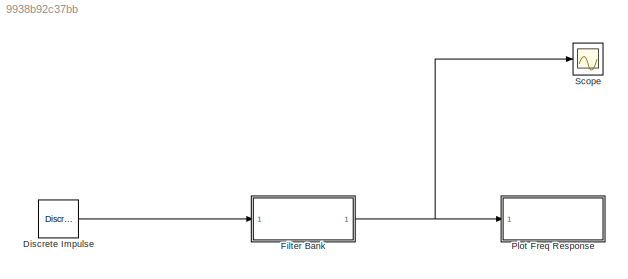
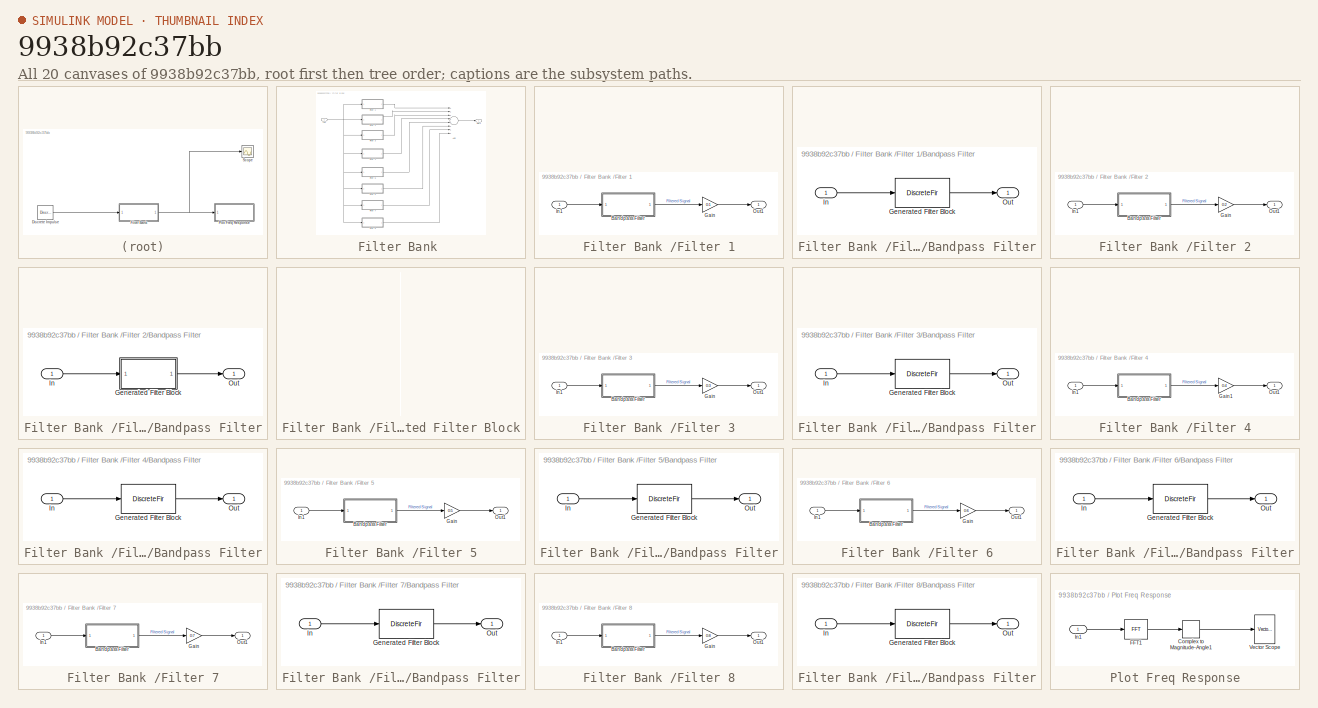
[diagram: thumbnail index - all 20 canvases of the model, root first then tree order]
MODEL slx_9938b92c37bb
KIND model
CONFIG AbsTol = auto
CONFIG EnableMultiTasking = off
CONFIG FixedStep = auto
CONFIG MaxStep = auto
CONFIG MinStep = auto
CONFIG RelTol = 1e-3
CONFIG SampleTimeConstraint = Unconstrained
CONFIG Solver = VariableStepAuto
CONFIG SolverName = VariableStepAuto
CONFIG StartTime = 0.0
CONFIG StopTime = 0.001
BLOCK [Reference] Discrete Impulse  REF=dspsrcs4/Discrete 
Impulse
  Ports = [0, 1]
  SourceBlock = dspsrcs4/Discrete \nImpulse
  SourceProductBaseCode = DS
  SourceProductName = DSP System Toolbox
  SourceType = Discrete Impulse
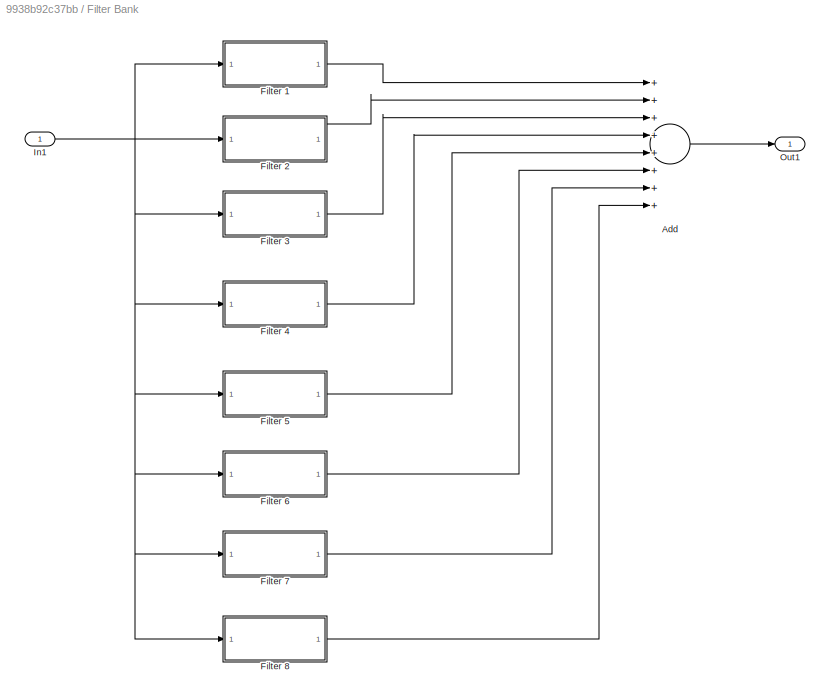
BLOCK [SubSystem] Filter Bank 
  Ports = [1, 1]
  RequestExecContextInheritance = off
BLOCK [Sum] Filter Bank /Add
  InputSameDT = off
  Inputs = ++++++++
  OutDataTypeStr = Inherit: Inherit via internal rule
  Ports = [8, 1]
  SaturateOnIntegerOverflow = off
BLOCK [SubSystem] Filter Bank /Filter 1
  Ports = [1, 1]
  RequestExecContextInheritance = off
BLOCK [SubSystem] Filter Bank /Filter 1/Bandpass Filter
  CopyFcn = fdesignblkfcn(gcbh, {'CopyFcn'});
  DialogController = fdesignblkfcn
  InitFcn = fdesignblkfcn(gcbh, {'InitFcn'});
  Ports = [1, 1]
  RequestExecContextInheritance = off
  UserDataPersistent = on
BLOCK [DiscreteFir] Filter Bank /Filter 1/Bandpass Filter/Generated Filter Block
  Coefficients = [0.00099033939918158711 7.84794241453230898e-05 8.12930927527524279e-05 8.38881428959181686e-05 8.63707452084759293e-05 8.85902365413272872e-05 9.06595221473260415e-05 9.2431230842850799e-05 9.4015690076486175e-05 9.52611340743902702e-05 9.62914005701961164e-05 9.69492456172241197e-05 9.73637356417781074e-05 9.73797400380331768e-05 9.71507038179902064e-05 9.65155801599824263e-05 9.5641078501971444...<+13006ch>
  InputPortMap = u0
  InputProcessing = Columns as channels (frame based)
  OutputPortMap = o0
  Ports = [1, 1]
  Tag = BlockMethodSubSystem
BLOCK [Inport] Filter Bank /Filter 1/Bandpass Filter/In
  IconDisplay = Port number
BLOCK [Outport] Filter Bank /Filter 1/Bandpass Filter/Out
  IconDisplay = Port number
BLOCK [Gain] Filter Bank /Filter 1/Gain
  Gain = G1
  OutDataTypeStr = Inherit: Inherit via internal rule
  ParamDataTypeStr = Inherit: Inherit via internal rule
  SaturateOnIntegerOverflow = off
BLOCK [Inport] Filter Bank /Filter 1/In1
  IconDisplay = Port number
BLOCK [Outport] Filter Bank /Filter 1/Out1
  IconDisplay = Port number
BLOCK [SubSystem] Filter Bank /Filter 2
  Ports = [1, 1]
  RequestExecContextInheritance = off
BLOCK [SubSystem] Filter Bank /Filter 2/Bandpass Filter
  CopyFcn = fdesignblkfcn(gcbh, {'CopyFcn'});
  DialogController = fdesignblkfcn
  InitFcn = fdesignblkfcn(gcbh, {'InitFcn'});
  Ports = [1, 1]
  RequestExecContextInheritance = off
  UserDataPersistent = on
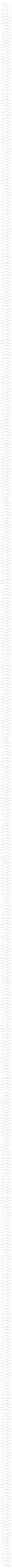
[diagram: Filter Bank /Filter 2/Bandpass Filter/Generated Filter Block - part 1/1, most of the canvas]
BLOCK [SubSystem] Filter Bank /Filter 2/Bandpass Filter/Generated Filter Block
  ErrorFcn = dspFilterRealizedInBasicElemsAlgLoopErrFcnCallback
  Ports = [1, 1]
  RequestExecContextInheritance = off
  Tag = FilterWizardSubSystem
  UserDataPersistent = on
BLOCK [Delay] Filter Bank /Filter 2/Bandpass Filter/Generated Filter Block/BodyDelay10
  DelayLength = 1
  InitialCondition = 0
  InputPortMap = u0
  Ports = [1, 1]
BLOCK [Delay] Filter Bank /Filter 2/Bandpass Filter/Generated Filter Block/BodyDelay100
  DelayLength = 1
  InitialCondition = 0
  InputPortMap = u0
  Ports = [1, 1]
BLOCK [Delay] Filter Bank /Filter 2/Bandpass Filter/Generated Filter Block/BodyDelay101
  DelayLength = 1
  InitialCondition = 0
  InputPortMap = u0
  Ports = [1, 1]
BLOCK [Delay] Filter Bank /Filter 2/Bandpass Filter/Generated Filter Block/BodyDelay102
  DelayLength = 1
  InitialCondition = 0
  InputPortMap = u0
  Ports = [1, 1]
BLOCK [Delay] Filter Bank /Filter 2/Bandpass Filter/Generated Filter Block/BodyDelay103
  DelayLength = 1
  InitialCondition = 0
  InputPortMap = u0
  Ports = [1, 1]
BLOCK [Delay] Filter Bank /Filter 2/Bandpass Filter/Generated Filter Block/BodyDelay104
  DelayLength = 1
  InitialCondition = 0
  InputPortMap = u0
  Ports = [1, 1]
BLOCK [Delay] Filter Bank /Filter 2/Bandpass Filter/Generated Filter Block/BodyDelay105
  DelayLength = 1
  InitialCondition = 0
  InputPortMap = u0
  Ports = [1, 1]
BLOCK [Delay] Filter Bank /Filter 2/Bandpass Filter/Generated Filter Block/BodyDelay106
  DelayLength = 1
  InitialCondition = 0
  InputPortMap = u0
  Ports = [1, 1]
BLOCK [Delay] Filter Bank /Filter 2/Bandpass Filter/Generated Filter Block/BodyDelay107
  DelayLength = 1
  InitialCondition = 0
  InputPortMap = u0
  Ports = [1, 1]
BLOCK [Delay] Filter Bank /Filter 2/Bandpass Filter/Generated Filter Block/BodyDelay108
  DelayLength = 1
  InitialCondition = 0
  InputPortMap = u0
  Ports = [1, 1]
BLOCK [Delay] Filter Bank /Filter 2/Bandpass Filter/Generated Filter Block/BodyDelay109
  DelayLength = 1
  InitialCondition = 0
  InputPortMap = u0
  Ports = [1, 1]
BLOCK [Delay] Filter Bank /Filter 2/Bandpass Filter/Generated Filter Block/BodyDelay11
  DelayLength = 1
  InitialCondition = 0
  InputPortMap = u0
  Ports = [1, 1]
BLOCK [Delay] Filter Bank /Filter 2/Bandpass Filter/Generated Filter Block/BodyDelay110
  DelayLength = 1
  InitialCondition = 0
  InputPortMap = u0
  Ports = [1, 1]
BLOCK [Delay] Filter Bank /Filter 2/Bandpass Filter/Generated Filter Block/BodyDelay111
  DelayLength = 1
  InitialCondition = 0
  InputPortMap = u0
  Ports = [1, 1]
BLOCK [Delay] Filter Bank /Filter 2/Bandpass Filter/Generated Filter Block/BodyDelay112
  DelayLength = 1
  InitialCondition = 0
  InputPortMap = u0
  Ports = [1, 1]
BLOCK [Delay] Filter Bank /Filter 2/Bandpass Filter/Generated Filter Block/BodyDelay113
  DelayLength = 1
  InitialCondition = 0
  InputPortMap = u0
  Ports = [1, 1]
BLOCK [Delay] Filter Bank /Filter 2/Bandpass Filter/Generated Filter Block/BodyDelay114
  DelayLength = 1
  InitialCondition = 0
  InputPortMap = u0
  Ports = [1, 1]
BLOCK [Delay] Filter Bank /Filter 2/Bandpass Filter/Generated Filter Block/BodyDelay115
  DelayLength = 1
  InitialCondition = 0
  InputPortMap = u0
  Ports = [1, 1]
BLOCK [Delay] Filter Bank /Filter 2/Bandpass Filter/Generated Filter Block/BodyDelay116
  DelayLength = 1
  InitialCondition = 0
  InputPortMap = u0
  Ports = [1, 1]
BLOCK [Delay] Filter Bank /Filter 2/Bandpass Filter/Generated Filter Block/BodyDelay117
  DelayLength = 1
  InitialCondition = 0
  InputPortMap = u0
  Ports = [1, 1]
BLOCK [Delay] Filter Bank /Filter 2/Bandpass Filter/Generated Filter Block/BodyDelay118
  DelayLength = 1
  InitialCondition = 0
  InputPortMap = u0
  Ports = [1, 1]
BLOCK [Delay] Filter Bank /Filter 2/Bandpass Filter/Generated Filter Block/BodyDelay119
  DelayLength = 1
  InitialCondition = 0
  InputPortMap = u0
  Ports = [1, 1]
BLOCK [Delay] Filter Bank /Filter 2/Bandpass Filter/Generated Filter Block/BodyDelay12
  DelayLength = 1
  InitialCondition = 0
  InputPortMap = u0
  Ports = [1, 1]
BLOCK [Delay] Filter Bank /Filter 2/Bandpass Filter/Generated Filter Block/BodyDelay120
  DelayLength = 1
  InitialCondition = 0
  InputPortMap = u0
  Ports = [1, 1]
BLOCK [Delay] Filter Bank /Filter 2/Bandpass Filter/Generated Filter Block/BodyDelay121
  DelayLength = 1
  InitialCondition = 0
  InputPortMap = u0
  Ports = [1, 1]
BLOCK [Delay] Filter Bank /Filter 2/Bandpass Filter/Generated Filter Block/BodyDelay122
  DelayLength = 1
  InitialCondition = 0
  InputPortMap = u0
  Ports = [1, 1]
BLOCK [Delay] Filter Bank /Filter 2/Bandpass Filter/Generated Filter Block/BodyDelay123
  DelayLength = 1
  InitialCondition = 0
  InputPortMap = u0
  Ports = [1, 1]
BLOCK [Delay] Filter Bank /Filter 2/Bandpass Filter/Generated Filter Block/BodyDelay124
  DelayLength = 1
  InitialCondition = 0
  InputPortMap = u0
  Ports = [1, 1]
BLOCK [Delay] Filter Bank /Filter 2/Bandpass Filter/Generated Filter Block/BodyDelay125
  DelayLength = 1
  InitialCondition = 0
  InputPortMap = u0
  Ports = [1, 1]
BLOCK [Delay] Filter Bank /Filter 2/Bandpass Filter/Generated Filter Block/BodyDelay126
  DelayLength = 1
  InitialCondition = 0
  InputPortMap = u0
  Ports = [1, 1]
BLOCK [Delay] Filter Bank /Filter 2/Bandpass Filter/Generated Filter Block/BodyDelay127
  DelayLength = 1
  InitialCondition = 0
  InputPortMap = u0
  Ports = [1, 1]
BLOCK [Delay] Filter Bank /Filter 2/Bandpass Filter/Generated Filter Block/BodyDelay128
  DelayLength = 1
  InitialCondition = 0
  InputPortMap = u0
  Ports = [1, 1]
BLOCK [Delay] Filter Bank /Filter 2/Bandpass Filter/Generated Filter Block/BodyDelay129
  DelayLength = 1
  InitialCondition = 0
  InputPortMap = u0
  Ports = [1, 1]
BLOCK [Delay] Filter Bank /Filter 2/Bandpass Filter/Generated Filter Block/BodyDelay13
  DelayLength = 1
  InitialCondition = 0
  InputPortMap = u0
  Ports = [1, 1]
BLOCK [Delay] Filter Bank /Filter 2/Bandpass Filter/Generated Filter Block/BodyDelay130
  DelayLength = 1
  InitialCondition = 0
  InputPortMap = u0
  Ports = [1, 1]
BLOCK [Delay] Filter Bank /Filter 2/Bandpass Filter/Generated Filter Block/BodyDelay131
  DelayLength = 1
  InitialCondition = 0
  InputPortMap = u0
  Ports = [1, 1]
BLOCK [Delay] Filter Bank /Filter 2/Bandpass Filter/Generated Filter Block/BodyDelay132
  DelayLength = 1
  InitialCondition = 0
  InputPortMap = u0
  Ports = [1, 1]
BLOCK [Delay] Filter Bank /Filter 2/Bandpass Filter/Generated Filter Block/BodyDelay133
  DelayLength = 1
  InitialCondition = 0
  InputPortMap = u0
  Ports = [1, 1]
BLOCK [Delay] Filter Bank /Filter 2/Bandpass Filter/Generated Filter Block/BodyDelay134
  DelayLength = 1
  InitialCondition = 0
  InputPortMap = u0
  Ports = [1, 1]
BLOCK [Delay] Filter Bank /Filter 2/Bandpass Filter/Generated Filter Block/BodyDelay135
  DelayLength = 1
  InitialCondition = 0
  InputPortMap = u0
  Ports = [1, 1]
BLOCK [Delay] Filter Bank /Filter 2/Bandpass Filter/Generated Filter Block/BodyDelay136
  DelayLength = 1
  InitialCondition = 0
  InputPortMap = u0
  Ports = [1, 1]
BLOCK [Delay] Filter Bank /Filter 2/Bandpass Filter/Generated Filter Block/BodyDelay137
  DelayLength = 1
  InitialCondition = 0
  InputPortMap = u0
  Ports = [1, 1]
BLOCK [Delay] Filter Bank /Filter 2/Bandpass Filter/Generated Filter Block/BodyDelay138
  DelayLength = 1
  InitialCondition = 0
  InputPortMap = u0
  Ports = [1, 1]
BLOCK [Delay] Filter Bank /Filter 2/Bandpass Filter/Generated Filter Block/BodyDelay139
  DelayLength = 1
  InitialCondition = 0
  InputPortMap = u0
  Ports = [1, 1]
BLOCK [Delay] Filter Bank /Filter 2/Bandpass Filter/Generated Filter Block/BodyDelay14
  DelayLength = 1
  InitialCondition = 0
  InputPortMap = u0
  Ports = [1, 1]
BLOCK [Delay] Filter Bank /Filter 2/Bandpass Filter/Generated Filter Block/BodyDelay140
  DelayLength = 1
  InitialCondition = 0
  InputPortMap = u0
  Ports = [1, 1]
BLOCK [Delay] Filter Bank /Filter 2/Bandpass Filter/Generated Filter Block/BodyDelay141
  DelayLength = 1
  InitialCondition = 0
  InputPortMap = u0
  Ports = [1, 1]
BLOCK [Delay] Filter Bank /Filter 2/Bandpass Filter/Generated Filter Block/BodyDelay142
  DelayLength = 1
  InitialCondition = 0
  InputPortMap = u0
  Ports = [1, 1]
BLOCK [Delay] Filter Bank /Filter 2/Bandpass Filter/Generated Filter Block/BodyDelay143
  DelayLength = 1
  InitialCondition = 0
  InputPortMap = u0
  Ports = [1, 1]
BLOCK [Delay] Filter Bank /Filter 2/Bandpass Filter/Generated Filter Block/BodyDelay144
  DelayLength = 1
  InitialCondition = 0
  InputPortMap = u0
  Ports = [1, 1]
BLOCK [Delay] Filter Bank /Filter 2/Bandpass Filter/Generated Filter Block/BodyDelay145
  DelayLength = 1
  InitialCondition = 0
  InputPortMap = u0
  Ports = [1, 1]
BLOCK [Delay] Filter Bank /Filter 2/Bandpass Filter/Generated Filter Block/BodyDelay146
  DelayLength = 1
  InitialCondition = 0
  InputPortMap = u0
  Ports = [1, 1]
BLOCK [Delay] Filter Bank /Filter 2/Bandpass Filter/Generated Filter Block/BodyDelay147
  DelayLength = 1
  InitialCondition = 0
  InputPortMap = u0
  Ports = [1, 1]
BLOCK [Delay] Filter Bank /Filter 2/Bandpass Filter/Generated Filter Block/BodyDelay148
  DelayLength = 1
  InitialCondition = 0
  InputPortMap = u0
  Ports = [1, 1]
BLOCK [Delay] Filter Bank /Filter 2/Bandpass Filter/Generated Filter Block/BodyDelay149
  DelayLength = 1
  InitialCondition = 0
  InputPortMap = u0
  Ports = [1, 1]
BLOCK [Delay] Filter Bank /Filter 2/Bandpass Filter/Generated Filter Block/BodyDelay15
  DelayLength = 1
  InitialCondition = 0
  InputPortMap = u0
  Ports = [1, 1]
BLOCK [Delay] Filter Bank /Filter 2/Bandpass Filter/Generated Filter Block/BodyDelay150
  DelayLength = 1
  InitialCondition = 0
  InputPortMap = u0
  Ports = [1, 1]
BLOCK [Delay] Filter Bank /Filter 2/Bandpass Filter/Generated Filter Block/BodyDelay151
  DelayLength = 1
  InitialCondition = 0
  InputPortMap = u0
  Ports = [1, 1]
BLOCK [Delay] Filter Bank /Filter 2/Bandpass Filter/Generated Filter Block/BodyDelay152
  DelayLength = 1
  InitialCondition = 0
  InputPortMap = u0
  Ports = [1, 1]
BLOCK [Delay] Filter Bank /Filter 2/Bandpass Filter/Generated Filter Block/BodyDelay153
  DelayLength = 1
  InitialCondition = 0
  InputPortMap = u0
  Ports = [1, 1]
BLOCK [Delay] Filter Bank /Filter 2/Bandpass Filter/Generated Filter Block/BodyDelay154
  DelayLength = 1
  InitialCondition = 0
  InputPortMap = u0
  Ports = [1, 1]
BLOCK [Delay] Filter Bank /Filter 2/Bandpass Filter/Generated Filter Block/BodyDelay155
  DelayLength = 1
  InitialCondition = 0
  InputPortMap = u0
  Ports = [1, 1]
BLOCK [Delay] Filter Bank /Filter 2/Bandpass Filter/Generated Filter Block/BodyDelay156
  DelayLength = 1
  InitialCondition = 0
  InputPortMap = u0
  Ports = [1, 1]
BLOCK [Delay] Filter Bank /Filter 2/Bandpass Filter/Generated Filter Block/BodyDelay157
  DelayLength = 1
  InitialCondition = 0
  InputPortMap = u0
  Ports = [1, 1]
BLOCK [Delay] Filter Bank /Filter 2/Bandpass Filter/Generated Filter Block/BodyDelay158
  DelayLength = 1
  InitialCondition = 0
  InputPortMap = u0
  Ports = [1, 1]
BLOCK [Delay] Filter Bank /Filter 2/Bandpass Filter/Generated Filter Block/BodyDelay159
  DelayLength = 1
  InitialCondition = 0
  InputPortMap = u0
  Ports = [1, 1]
BLOCK [Delay] Filter Bank /Filter 2/Bandpass Filter/Generated Filter Block/BodyDelay16
  DelayLength = 1
  InitialCondition = 0
  InputPortMap = u0
  Ports = [1, 1]
BLOCK [Delay] Filter Bank /Filter 2/Bandpass Filter/Generated Filter Block/BodyDelay160
  DelayLength = 1
  InitialCondition = 0
  InputPortMap = u0
  Ports = [1, 1]
BLOCK [Delay] Filter Bank /Filter 2/Bandpass Filter/Generated Filter Block/BodyDelay161
  DelayLength = 1
  InitialCondition = 0
  InputPortMap = u0
  Ports = [1, 1]
BLOCK [Delay] Filter Bank /Filter 2/Bandpass Filter/Generated Filter Block/BodyDelay162
  DelayLength = 1
  InitialCondition = 0
  InputPortMap = u0
  Ports = [1, 1]
BLOCK [Delay] Filter Bank /Filter 2/Bandpass Filter/Generated Filter Block/BodyDelay163
  DelayLength = 1
  InitialCondition = 0
  InputPortMap = u0
  Ports = [1, 1]
BLOCK [Delay] Filter Bank /Filter 2/Bandpass Filter/Generated Filter Block/BodyDelay164
  DelayLength = 1
  InitialCondition = 0
  InputPortMap = u0
  Ports = [1, 1]
BLOCK [Delay] Filter Bank /Filter 2/Bandpass Filter/Generated Filter Block/BodyDelay165
  DelayLength = 1
  InitialCondition = 0
  InputPortMap = u0
  Ports = [1, 1]
BLOCK [Delay] Filter Bank /Filter 2/Bandpass Filter/Generated Filter Block/BodyDelay166
  DelayLength = 1
  InitialCondition = 0
  InputPortMap = u0
  Ports = [1, 1]
BLOCK [Delay] Filter Bank /Filter 2/Bandpass Filter/Generated Filter Block/BodyDelay167
  DelayLength = 1
  InitialCondition = 0
  InputPortMap = u0
  Ports = [1, 1]
BLOCK [Delay] Filter Bank /Filter 2/Bandpass Filter/Generated Filter Block/BodyDelay168
  DelayLength = 1
  InitialCondition = 0
  InputPortMap = u0
  Ports = [1, 1]
BLOCK [Delay] Filter Bank /Filter 2/Bandpass Filter/Generated Filter Block/BodyDelay169
  DelayLength = 1
  InitialCondition = 0
  InputPortMap = u0
  Ports = [1, 1]
BLOCK [Delay] Filter Bank /Filter 2/Bandpass Filter/Generated Filter Block/BodyDelay17
  DelayLength = 1
  InitialCondition = 0
  InputPortMap = u0
  Ports = [1, 1]
BLOCK [Delay] Filter Bank /Filter 2/Bandpass Filter/Generated Filter Block/BodyDelay170
  DelayLength = 1
  InitialCondition = 0
  InputPortMap = u0
  Ports = [1, 1]
BLOCK [Delay] Filter Bank /Filter 2/Bandpass Filter/Generated Filter Block/BodyDelay171
  DelayLength = 1
  InitialCondition = 0
  InputPortMap = u0
  Ports = [1, 1]
BLOCK [Delay] Filter Bank /Filter 2/Bandpass Filter/Generated Filter Block/BodyDelay172
  DelayLength = 1
  InitialCondition = 0
  InputPortMap = u0
  Ports = [1, 1]
BLOCK [Delay] Filter Bank /Filter 2/Bandpass Filter/Generated Filter Block/BodyDelay173
  DelayLength = 1
  InitialCondition = 0
  InputPortMap = u0
  Ports = [1, 1]
BLOCK [Delay] Filter Bank /Filter 2/Bandpass Filter/Generated Filter Block/BodyDelay174
  DelayLength = 1
  InitialCondition = 0
  InputPortMap = u0
  Ports = [1, 1]
BLOCK [Delay] Filter Bank /Filter 2/Bandpass Filter/Generated Filter Block/BodyDelay175
  DelayLength = 1
  InitialCondition = 0
  InputPortMap = u0
  Ports = [1, 1]
BLOCK [Delay] Filter Bank /Filter 2/Bandpass Filter/Generated Filter Block/BodyDelay176
  DelayLength = 1
  InitialCondition = 0
  InputPortMap = u0
  Ports = [1, 1]
BLOCK [Delay] Filter Bank /Filter 2/Bandpass Filter/Generated Filter Block/BodyDelay177
  DelayLength = 1
  InitialCondition = 0
  InputPortMap = u0
  Ports = [1, 1]
BLOCK [Delay] Filter Bank /Filter 2/Bandpass Filter/Generated Filter Block/BodyDelay178
  DelayLength = 1
  InitialCondition = 0
  InputPortMap = u0
  Ports = [1, 1]
BLOCK [Delay] Filter Bank /Filter 2/Bandpass Filter/Generated Filter Block/BodyDelay179
  DelayLength = 1
  InitialCondition = 0
  InputPortMap = u0
  Ports = [1, 1]
BLOCK [Delay] Filter Bank /Filter 2/Bandpass Filter/Generated Filter Block/BodyDelay18
  DelayLength = 1
  InitialCondition = 0
  InputPortMap = u0
  Ports = [1, 1]
BLOCK [Delay] Filter Bank /Filter 2/Bandpass Filter/Generated Filter Block/BodyDelay180
  DelayLength = 1
  InitialCondition = 0
  InputPortMap = u0
  Ports = [1, 1]
BLOCK [Delay] Filter Bank /Filter 2/Bandpass Filter/Generated Filter Block/BodyDelay181
  DelayLength = 1
  InitialCondition = 0
  InputPortMap = u0
  Ports = [1, 1]
BLOCK [Delay] Filter Bank /Filter 2/Bandpass Filter/Generated Filter Block/BodyDelay182
  DelayLength = 1
  InitialCondition = 0
  InputPortMap = u0
  Ports = [1, 1]
BLOCK [Delay] Filter Bank /Filter 2/Bandpass Filter/Generated Filter Block/BodyDelay183
  DelayLength = 1
  InitialCondition = 0
  InputPortMap = u0
  Ports = [1, 1]
BLOCK [Delay] Filter Bank /Filter 2/Bandpass Filter/Generated Filter Block/BodyDelay184
  DelayLength = 1
  InitialCondition = 0
  InputPortMap = u0
  Ports = [1, 1]
BLOCK [Delay] Filter Bank /Filter 2/Bandpass Filter/Generated Filter Block/BodyDelay185
  DelayLength = 1
  InitialCondition = 0
  InputPortMap = u0
  Ports = [1, 1]
BLOCK [Delay] Filter Bank /Filter 2/Bandpass Filter/Generated Filter Block/BodyDelay186
  DelayLength = 1
  InitialCondition = 0
  InputPortMap = u0
  Ports = [1, 1]
BLOCK [Delay] Filter Bank /Filter 2/Bandpass Filter/Generated Filter Block/BodyDelay187
  DelayLength = 1
  InitialCondition = 0
  InputPortMap = u0
  Ports = [1, 1]
BLOCK [Delay] Filter Bank /Filter 2/Bandpass Filter/Generated Filter Block/BodyDelay188
  DelayLength = 1
  InitialCondition = 0
  InputPortMap = u0
  Ports = [1, 1]
BLOCK [Delay] Filter Bank /Filter 2/Bandpass Filter/Generated Filter Block/BodyDelay189
  DelayLength = 1
  InitialCondition = 0
  InputPortMap = u0
  Ports = [1, 1]
BLOCK [Delay] Filter Bank /Filter 2/Bandpass Filter/Generated Filter Block/BodyDelay19
  DelayLength = 1
  InitialCondition = 0
  InputPortMap = u0
  Ports = [1, 1]
BLOCK [Delay] Filter Bank /Filter 2/Bandpass Filter/Generated Filter Block/BodyDelay190
  DelayLength = 1
  InitialCondition = 0
  InputPortMap = u0
  Ports = [1, 1]
BLOCK [Delay] Filter Bank /Filter 2/Bandpass Filter/Generated Filter Block/BodyDelay191
  DelayLength = 1
  InitialCondition = 0
  InputPortMap = u0
  Ports = [1, 1]
BLOCK [Delay] Filter Bank /Filter 2/Bandpass Filter/Generated Filter Block/BodyDelay192
  DelayLength = 1
  InitialCondition = 0
  InputPortMap = u0
  Ports = [1, 1]
BLOCK [Delay] Filter Bank /Filter 2/Bandpass Filter/Generated Filter Block/BodyDelay193
  DelayLength = 1
  InitialCondition = 0
  InputPortMap = u0
  Ports = [1, 1]
BLOCK [Delay] Filter Bank /Filter 2/Bandpass Filter/Generated Filter Block/BodyDelay194
  DelayLength = 1
  InitialCondition = 0
  InputPortMap = u0
  Ports = [1, 1]
BLOCK [Delay] Filter Bank /Filter 2/Bandpass Filter/Generated Filter Block/BodyDelay195
  DelayLength = 1
  InitialCondition = 0
  InputPortMap = u0
  Ports = [1, 1]
BLOCK [Delay] Filter Bank /Filter 2/Bandpass Filter/Generated Filter Block/BodyDelay196
  DelayLength = 1
  InitialCondition = 0
  InputPortMap = u0
  Ports = [1, 1]
BLOCK [Delay] Filter Bank /Filter 2/Bandpass Filter/Generated Filter Block/BodyDelay197
  DelayLength = 1
  InitialCondition = 0
  InputPortMap = u0
  Ports = [1, 1]
BLOCK [Delay] Filter Bank /Filter 2/Bandpass Filter/Generated Filter Block/BodyDelay198
  DelayLength = 1
  InitialCondition = 0
  InputPortMap = u0
  Ports = [1, 1]
BLOCK [Delay] Filter Bank /Filter 2/Bandpass Filter/Generated Filter Block/BodyDelay199
  DelayLength = 1
  InitialCondition = 0
  InputPortMap = u0
  Ports = [1, 1]
BLOCK [Delay] Filter Bank /Filter 2/Bandpass Filter/Generated Filter Block/BodyDelay2
  DelayLength = 1
  InitialCondition = 0
  InputPortMap = u0
  Ports = [1, 1]
BLOCK [Delay] Filter Bank /Filter 2/Bandpass Filter/Generated Filter Block/BodyDelay20
  DelayLength = 1
  InitialCondition = 0
  InputPortMap = u0
  Ports = [1, 1]
BLOCK [Delay] Filter Bank /Filter 2/Bandpass Filter/Generated Filter Block/BodyDelay200
  DelayLength = 1
  InitialCondition = 0
  InputPortMap = u0
  Ports = [1, 1]
BLOCK [Delay] Filter Bank /Filter 2/Bandpass Filter/Generated Filter Block/BodyDelay201
  DelayLength = 1
  InitialCondition = 0
  InputPortMap = u0
  Ports = [1, 1]
BLOCK [Delay] Filter Bank /Filter 2/Bandpass Filter/Generated Filter Block/BodyDelay202
  DelayLength = 1
  InitialCondition = 0
  InputPortMap = u0
  Ports = [1, 1]
BLOCK [Delay] Filter Bank /Filter 2/Bandpass Filter/Generated Filter Block/BodyDelay203
  DelayLength = 1
  InitialCondition = 0
  InputPortMap = u0
  Ports = [1, 1]
BLOCK [Delay] Filter Bank /Filter 2/Bandpass Filter/Generated Filter Block/BodyDelay204
  DelayLength = 1
  InitialCondition = 0
  InputPortMap = u0
  Ports = [1, 1]
BLOCK [Delay] Filter Bank /Filter 2/Bandpass Filter/Generated Filter Block/BodyDelay205
  DelayLength = 1
  InitialCondition = 0
  InputPortMap = u0
  Ports = [1, 1]
BLOCK [Delay] Filter Bank /Filter 2/Bandpass Filter/Generated Filter Block/BodyDelay206
  DelayLength = 1
  InitialCondition = 0
  InputPortMap = u0
  Ports = [1, 1]
BLOCK [Delay] Filter Bank /Filter 2/Bandpass Filter/Generated Filter Block/BodyDelay207
  DelayLength = 1
  InitialCondition = 0
  InputPortMap = u0
  Ports = [1, 1]
BLOCK [Delay] Filter Bank /Filter 2/Bandpass Filter/Generated Filter Block/BodyDelay208
  DelayLength = 1
  InitialCondition = 0
  InputPortMap = u0
  Ports = [1, 1]
BLOCK [Delay] Filter Bank /Filter 2/Bandpass Filter/Generated Filter Block/BodyDelay209
  DelayLength = 1
  InitialCondition = 0
  InputPortMap = u0
  Ports = [1, 1]
BLOCK [Delay] Filter Bank /Filter 2/Bandpass Filter/Generated Filter Block/BodyDelay21
  DelayLength = 1
  InitialCondition = 0
  InputPortMap = u0
  Ports = [1, 1]
BLOCK [Delay] Filter Bank /Filter 2/Bandpass Filter/Generated Filter Block/BodyDelay210
  DelayLength = 1
  InitialCondition = 0
  InputPortMap = u0
  Ports = [1, 1]
BLOCK [Delay] Filter Bank /Filter 2/Bandpass Filter/Generated Filter Block/BodyDelay211
  DelayLength = 1
  InitialCondition = 0
  InputPortMap = u0
  Ports = [1, 1]
BLOCK [Delay] Filter Bank /Filter 2/Bandpass Filter/Generated Filter Block/BodyDelay212
  DelayLength = 1
  InitialCondition = 0
  InputPortMap = u0
  Ports = [1, 1]
BLOCK [Delay] Filter Bank /Filter 2/Bandpass Filter/Generated Filter Block/BodyDelay213
  DelayLength = 1
  InitialCondition = 0
  InputPortMap = u0
  Ports = [1, 1]
BLOCK [Delay] Filter Bank /Filter 2/Bandpass Filter/Generated Filter Block/BodyDelay214
  DelayLength = 1
  InitialCondition = 0
  InputPortMap = u0
  Ports = [1, 1]
BLOCK [Delay] Filter Bank /Filter 2/Bandpass Filter/Generated Filter Block/BodyDelay215
  DelayLength = 1
  InitialCondition = 0
  InputPortMap = u0
  Ports = [1, 1]
BLOCK [Delay] Filter Bank /Filter 2/Bandpass Filter/Generated Filter Block/BodyDelay216
  DelayLength = 1
  InitialCondition = 0
  InputPortMap = u0
  Ports = [1, 1]
BLOCK [Delay] Filter Bank /Filter 2/Bandpass Filter/Generated Filter Block/BodyDelay217
  DelayLength = 1
  InitialCondition = 0
  InputPortMap = u0
  Ports = [1, 1]
BLOCK [Delay] Filter Bank /Filter 2/Bandpass Filter/Generated Filter Block/BodyDelay218
  DelayLength = 1
  InitialCondition = 0
  InputPortMap = u0
  Ports = [1, 1]
BLOCK [Delay] Filter Bank /Filter 2/Bandpass Filter/Generated Filter Block/BodyDelay219
  DelayLength = 1
  InitialCondition = 0
  InputPortMap = u0
  Ports = [1, 1]
BLOCK [Delay] Filter Bank /Filter 2/Bandpass Filter/Generated Filter Block/BodyDelay22
  DelayLength = 1
  InitialCondition = 0
  InputPortMap = u0
  Ports = [1, 1]
BLOCK [Delay] Filter Bank /Filter 2/Bandpass Filter/Generated Filter Block/BodyDelay220
  DelayLength = 1
  InitialCondition = 0
  InputPortMap = u0
  Ports = [1, 1]
BLOCK [Delay] Filter Bank /Filter 2/Bandpass Filter/Generated Filter Block/BodyDelay221
  DelayLength = 1
  InitialCondition = 0
  InputPortMap = u0
  Ports = [1, 1]
BLOCK [Delay] Filter Bank /Filter 2/Bandpass Filter/Generated Filter Block/BodyDelay222
  DelayLength = 1
  InitialCondition = 0
  InputPortMap = u0
  Ports = [1, 1]
BLOCK [Delay] Filter Bank /Filter 2/Bandpass Filter/Generated Filter Block/BodyDelay223
  DelayLength = 1
  InitialCondition = 0
  InputPortMap = u0
  Ports = [1, 1]
BLOCK [Delay] Filter Bank /Filter 2/Bandpass Filter/Generated Filter Block/BodyDelay224
  DelayLength = 1
  InitialCondition = 0
  InputPortMap = u0
  Ports = [1, 1]
BLOCK [Delay] Filter Bank /Filter 2/Bandpass Filter/Generated Filter Block/BodyDelay225
  DelayLength = 1
  InitialCondition = 0
  InputPortMap = u0
  Ports = [1, 1]
BLOCK [Delay] Filter Bank /Filter 2/Bandpass Filter/Generated Filter Block/BodyDelay226
  DelayLength = 1
  InitialCondition = 0
  InputPortMap = u0
  Ports = [1, 1]
BLOCK [Delay] Filter Bank /Filter 2/Bandpass Filter/Generated Filter Block/BodyDelay227
  DelayLength = 1
  InitialCondition = 0
  InputPortMap = u0
  Ports = [1, 1]
BLOCK [Delay] Filter Bank /Filter 2/Bandpass Filter/Generated Filter Block/BodyDelay228
  DelayLength = 1
  InitialCondition = 0
  InputPortMap = u0
  Ports = [1, 1]
BLOCK [Delay] Filter Bank /Filter 2/Bandpass Filter/Generated Filter Block/BodyDelay229
  DelayLength = 1
  InitialCondition = 0
  InputPortMap = u0
  Ports = [1, 1]
BLOCK [Delay] Filter Bank /Filter 2/Bandpass Filter/Generated Filter Block/BodyDelay23
  DelayLength = 1
  InitialCondition = 0
  InputPortMap = u0
  Ports = [1, 1]
BLOCK [Delay] Filter Bank /Filter 2/Bandpass Filter/Generated Filter Block/BodyDelay230
  DelayLength = 1
  InitialCondition = 0
  InputPortMap = u0
  Ports = [1, 1]
BLOCK [Delay] Filter Bank /Filter 2/Bandpass Filter/Generated Filter Block/BodyDelay231
  DelayLength = 1
  InitialCondition = 0
  InputPortMap = u0
  Ports = [1, 1]
BLOCK [Delay] Filter Bank /Filter 2/Bandpass Filter/Generated Filter Block/BodyDelay232
  DelayLength = 1
  InitialCondition = 0
  InputPortMap = u0
  Ports = [1, 1]
BLOCK [Delay] Filter Bank /Filter 2/Bandpass Filter/Generated Filter Block/BodyDelay233
  DelayLength = 1
  InitialCondition = 0
  InputPortMap = u0
  Ports = [1, 1]
BLOCK [Delay] Filter Bank /Filter 2/Bandpass Filter/Generated Filter Block/BodyDelay234
  DelayLength = 1
  InitialCondition = 0
  InputPortMap = u0
  Ports = [1, 1]
BLOCK [Delay] Filter Bank /Filter 2/Bandpass Filter/Generated Filter Block/BodyDelay235
  DelayLength = 1
  InitialCondition = 0
  InputPortMap = u0
  Ports = [1, 1]
BLOCK [Delay] Filter Bank /Filter 2/Bandpass Filter/Generated Filter Block/BodyDelay236
  DelayLength = 1
  InitialCondition = 0
  InputPortMap = u0
  Ports = [1, 1]
BLOCK [Delay] Filter Bank /Filter 2/Bandpass Filter/Generated Filter Block/BodyDelay237
  DelayLength = 1
  InitialCondition = 0
  InputPortMap = u0
  Ports = [1, 1]
BLOCK [Delay] Filter Bank /Filter 2/Bandpass Filter/Generated Filter Block/BodyDelay238
  DelayLength = 1
  InitialCondition = 0
  InputPortMap = u0
  Ports = [1, 1]
BLOCK [Delay] Filter Bank /Filter 2/Bandpass Filter/Generated Filter Block/BodyDelay239
  DelayLength = 1
  InitialCondition = 0
  InputPortMap = u0
  Ports = [1, 1]
BLOCK [Delay] Filter Bank /Filter 2/Bandpass Filter/Generated Filter Block/BodyDelay24
  DelayLength = 1
  InitialCondition = 0
  InputPortMap = u0
  Ports = [1, 1]
BLOCK [Delay] Filter Bank /Filter 2/Bandpass Filter/Generated Filter Block/BodyDelay240
  DelayLength = 1
  InitialCondition = 0
  InputPortMap = u0
  Ports = [1, 1]
BLOCK [Delay] Filter Bank /Filter 2/Bandpass Filter/Generated Filter Block/BodyDelay241
  DelayLength = 1
  InitialCondition = 0
  InputPortMap = u0
  Ports = [1, 1]
BLOCK [Delay] Filter Bank /Filter 2/Bandpass Filter/Generated Filter Block/BodyDelay242
  DelayLength = 1
  InitialCondition = 0
  InputPortMap = u0
  Ports = [1, 1]
BLOCK [Delay] Filter Bank /Filter 2/Bandpass Filter/Generated Filter Block/BodyDelay243
  DelayLength = 1
  InitialCondition = 0
  InputPortMap = u0
  Ports = [1, 1]
BLOCK [Delay] Filter Bank /Filter 2/Bandpass Filter/Generated Filter Block/BodyDelay244
  DelayLength = 1
  InitialCondition = 0
  InputPortMap = u0
  Ports = [1, 1]
BLOCK [Delay] Filter Bank /Filter 2/Bandpass Filter/Generated Filter Block/BodyDelay245
  DelayLength = 1
  InitialCondition = 0
  InputPortMap = u0
  Ports = [1, 1]
BLOCK [Delay] Filter Bank /Filter 2/Bandpass Filter/Generated Filter Block/BodyDelay246
  DelayLength = 1
  InitialCondition = 0
  InputPortMap = u0
  Ports = [1, 1]
BLOCK [Delay] Filter Bank /Filter 2/Bandpass Filter/Generated Filter Block/BodyDelay247
  DelayLength = 1
  InitialCondition = 0
  InputPortMap = u0
  Ports = [1, 1]
BLOCK [Delay] Filter Bank /Filter 2/Bandpass Filter/Generated Filter Block/BodyDelay248
  DelayLength = 1
  InitialCondition = 0
  InputPortMap = u0
  Ports = [1, 1]
BLOCK [Delay] Filter Bank /Filter 2/Bandpass Filter/Generated Filter Block/BodyDelay249
  DelayLength = 1
  InitialCondition = 0
  InputPortMap = u0
  Ports = [1, 1]
BLOCK [Delay] Filter Bank /Filter 2/Bandpass Filter/Generated Filter Block/BodyDelay25
  DelayLength = 1
  InitialCondition = 0
  InputPortMap = u0
  Ports = [1, 1]
BLOCK [Delay] Filter Bank /Filter 2/Bandpass Filter/Generated Filter Block/BodyDelay250
  DelayLength = 1
  InitialCondition = 0
  InputPortMap = u0
  Ports = [1, 1]
BLOCK [Delay] Filter Bank /Filter 2/Bandpass Filter/Generated Filter Block/BodyDelay251
  DelayLength = 1
  InitialCondition = 0
  InputPortMap = u0
  Ports = [1, 1]
BLOCK [Delay] Filter Bank /Filter 2/Bandpass Filter/Generated Filter Block/BodyDelay252
  DelayLength = 1
  InitialCondition = 0
  InputPortMap = u0
  Ports = [1, 1]
BLOCK [Delay] Filter Bank /Filter 2/Bandpass Filter/Generated Filter Block/BodyDelay253
  DelayLength = 1
  InitialCondition = 0
  InputPortMap = u0
  Ports = [1, 1]
BLOCK [Delay] Filter Bank /Filter 2/Bandpass Filter/Generated Filter Block/BodyDelay254
  DelayLength = 1
  InitialCondition = 0
  InputPortMap = u0
  Ports = [1, 1]
BLOCK [Delay] Filter Bank /Filter 2/Bandpass Filter/Generated Filter Block/BodyDelay255
  DelayLength = 1
  InitialCondition = 0
  InputPortMap = u0
  Ports = [1, 1]
BLOCK [Delay] Filter Bank /Filter 2/Bandpass Filter/Generated Filter Block/BodyDelay256
  DelayLength = 1
  InitialCondition = 0
  InputPortMap = u0
  Ports = [1, 1]
BLOCK [Delay] Filter Bank /Filter 2/Bandpass Filter/Generated Filter Block/BodyDelay257
  DelayLength = 1
  InitialCondition = 0
  InputPortMap = u0
  Ports = [1, 1]
BLOCK [Delay] Filter Bank /Filter 2/Bandpass Filter/Generated Filter Block/BodyDelay258
  DelayLength = 1
  InitialCondition = 0
  InputPortMap = u0
  Ports = [1, 1]
BLOCK [Delay] Filter Bank /Filter 2/Bandpass Filter/Generated Filter Block/BodyDelay259
  DelayLength = 1
  InitialCondition = 0
  InputPortMap = u0
  Ports = [1, 1]
BLOCK [Delay] Filter Bank /Filter 2/Bandpass Filter/Generated Filter Block/BodyDelay26
  DelayLength = 1
  InitialCondition = 0
  InputPortMap = u0
  Ports = [1, 1]
BLOCK [Delay] Filter Bank /Filter 2/Bandpass Filter/Generated Filter Block/BodyDelay260
  DelayLength = 1
  InitialCondition = 0
  InputPortMap = u0
  Ports = [1, 1]
BLOCK [Delay] Filter Bank /Filter 2/Bandpass Filter/Generated Filter Block/BodyDelay261
  DelayLength = 1
  InitialCondition = 0
  InputPortMap = u0
  Ports = [1, 1]
BLOCK [Delay] Filter Bank /Filter 2/Bandpass Filter/Generated Filter Block/BodyDelay262
  DelayLength = 1
  InitialCondition = 0
  InputPortMap = u0
  Ports = [1, 1]
BLOCK [Delay] Filter Bank /Filter 2/Bandpass Filter/Generated Filter Block/BodyDelay263
  DelayLength = 1
  InitialCondition = 0
  InputPortMap = u0
  Ports = [1, 1]
BLOCK [Delay] Filter Bank /Filter 2/Bandpass Filter/Generated Filter Block/BodyDelay264
  DelayLength = 1
  InitialCondition = 0
  InputPortMap = u0
  Ports = [1, 1]
BLOCK [Delay] Filter Bank /Filter 2/Bandpass Filter/Generated Filter Block/BodyDelay265
  DelayLength = 1
  InitialCondition = 0
  InputPortMap = u0
  Ports = [1, 1]
BLOCK [Delay] Filter Bank /Filter 2/Bandpass Filter/Generated Filter Block/BodyDelay266
  DelayLength = 1
  InitialCondition = 0
  InputPortMap = u0
  Ports = [1, 1]
BLOCK [Delay] Filter Bank /Filter 2/Bandpass Filter/Generated Filter Block/BodyDelay267
  DelayLength = 1
  InitialCondition = 0
  InputPortMap = u0
  Ports = [1, 1]
BLOCK [Delay] Filter Bank /Filter 2/Bandpass Filter/Generated Filter Block/BodyDelay268
  DelayLength = 1
  InitialCondition = 0
  InputPortMap = u0
  Ports = [1, 1]
BLOCK [Delay] Filter Bank /Filter 2/Bandpass Filter/Generated Filter Block/BodyDelay269
  DelayLength = 1
  InitialCondition = 0
  InputPortMap = u0
  Ports = [1, 1]
BLOCK [Delay] Filter Bank /Filter 2/Bandpass Filter/Generated Filter Block/BodyDelay27
  DelayLength = 1
  InitialCondition = 0
  InputPortMap = u0
  Ports = [1, 1]
BLOCK [Delay] Filter Bank /Filter 2/Bandpass Filter/Generated Filter Block/BodyDelay270
  DelayLength = 1
  InitialCondition = 0
  InputPortMap = u0
  Ports = [1, 1]
BLOCK [Delay] Filter Bank /Filter 2/Bandpass Filter/Generated Filter Block/BodyDelay271
  DelayLength = 1
  InitialCondition = 0
  InputPortMap = u0
  Ports = [1, 1]
BLOCK [Delay] Filter Bank /Filter 2/Bandpass Filter/Generated Filter Block/BodyDelay272
  DelayLength = 1
  InitialCondition = 0
  InputPortMap = u0
  Ports = [1, 1]
BLOCK [Delay] Filter Bank /Filter 2/Bandpass Filter/Generated Filter Block/BodyDelay273
  DelayLength = 1
  InitialCondition = 0
  InputPortMap = u0
  Ports = [1, 1]
BLOCK [Delay] Filter Bank /Filter 2/Bandpass Filter/Generated Filter Block/BodyDelay274
  DelayLength = 1
  InitialCondition = 0
  InputPortMap = u0
  Ports = [1, 1]
BLOCK [Delay] Filter Bank /Filter 2/Bandpass Filter/Generated Filter Block/BodyDelay275
  DelayLength = 1
  InitialCondition = 0
  InputPortMap = u0
  Ports = [1, 1]
BLOCK [Delay] Filter Bank /Filter 2/Bandpass Filter/Generated Filter Block/BodyDelay276
  DelayLength = 1
  InitialCondition = 0
  InputPortMap = u0
  Ports = [1, 1]
BLOCK [Delay] Filter Bank /Filter 2/Bandpass Filter/Generated Filter Block/BodyDelay277
  DelayLength = 1
  InitialCondition = 0
  InputPortMap = u0
  Ports = [1, 1]
BLOCK [Delay] Filter Bank /Filter 2/Bandpass Filter/Generated Filter Block/BodyDelay278
  DelayLength = 1
  InitialCondition = 0
  InputPortMap = u0
  Ports = [1, 1]
BLOCK [Delay] Filter Bank /Filter 2/Bandpass Filter/Generated Filter Block/BodyDelay279
  DelayLength = 1
  InitialCondition = 0
  InputPortMap = u0
  Ports = [1, 1]
BLOCK [Delay] Filter Bank /Filter 2/Bandpass Filter/Generated Filter Block/BodyDelay28
  DelayLength = 1
  InitialCondition = 0
  InputPortMap = u0
  Ports = [1, 1]
BLOCK [Delay] Filter Bank /Filter 2/Bandpass Filter/Generated Filter Block/BodyDelay280
  DelayLength = 1
  InitialCondition = 0
  InputPortMap = u0
  Ports = [1, 1]
BLOCK [Delay] Filter Bank /Filter 2/Bandpass Filter/Generated Filter Block/BodyDelay281
  DelayLength = 1
  InitialCondition = 0
  InputPortMap = u0
  Ports = [1, 1]
BLOCK [Delay] Filter Bank /Filter 2/Bandpass Filter/Generated Filter Block/BodyDelay282
  DelayLength = 1
  InitialCondition = 0
  InputPortMap = u0
  Ports = [1, 1]
BLOCK [Delay] Filter Bank /Filter 2/Bandpass Filter/Generated Filter Block/BodyDelay283
  DelayLength = 1
  InitialCondition = 0
  InputPortMap = u0
  Ports = [1, 1]
BLOCK [Delay] Filter Bank /Filter 2/Bandpass Filter/Generated Filter Block/BodyDelay284
  DelayLength = 1
  InitialCondition = 0
  InputPortMap = u0
  Ports = [1, 1]
BLOCK [Delay] Filter Bank /Filter 2/Bandpass Filter/Generated Filter Block/BodyDelay285
  DelayLength = 1
  InitialCondition = 0
  InputPortMap = u0
  Ports = [1, 1]
BLOCK [Delay] Filter Bank /Filter 2/Bandpass Filter/Generated Filter Block/BodyDelay286
  DelayLength = 1
  InitialCondition = 0
  InputPortMap = u0
  Ports = [1, 1]
BLOCK [Delay] Filter Bank /Filter 2/Bandpass Filter/Generated Filter Block/BodyDelay287
  DelayLength = 1
  InitialCondition = 0
  InputPortMap = u0
  Ports = [1, 1]
BLOCK [Delay] Filter Bank /Filter 2/Bandpass Filter/Generated Filter Block/BodyDelay288
  DelayLength = 1
  InitialCondition = 0
  InputPortMap = u0
  Ports = [1, 1]
BLOCK [Delay] Filter Bank /Filter 2/Bandpass Filter/Generated Filter Block/BodyDelay289
  DelayLength = 1
  InitialCondition = 0
  InputPortMap = u0
  Ports = [1, 1]
BLOCK [Delay] Filter Bank /Filter 2/Bandpass Filter/Generated Filter Block/BodyDelay29
  DelayLength = 1
  InitialCondition = 0
  InputPortMap = u0
  Ports = [1, 1]
BLOCK [Delay] Filter Bank /Filter 2/Bandpass Filter/Generated Filter Block/BodyDelay290
  DelayLength = 1
  InitialCondition = 0
  InputPortMap = u0
  Ports = [1, 1]
BLOCK [Delay] Filter Bank /Filter 2/Bandpass Filter/Generated Filter Block/BodyDelay291
  DelayLength = 1
  InitialCondition = 0
  InputPortMap = u0
  Ports = [1, 1]
BLOCK [Delay] Filter Bank /Filter 2/Bandpass Filter/Generated Filter Block/BodyDelay292
  DelayLength = 1
  InitialCondition = 0
  InputPortMap = u0
  Ports = [1, 1]
BLOCK [Delay] Filter Bank /Filter 2/Bandpass Filter/Generated Filter Block/BodyDelay293
  DelayLength = 1
  InitialCondition = 0
  InputPortMap = u0
  Ports = [1, 1]
BLOCK [Delay] Filter Bank /Filter 2/Bandpass Filter/Generated Filter Block/BodyDelay294
  DelayLength = 1
  InitialCondition = 0
  InputPortMap = u0
  Ports = [1, 1]
BLOCK [Delay] Filter Bank /Filter 2/Bandpass Filter/Generated Filter Block/BodyDelay295
  DelayLength = 1
  InitialCondition = 0
  InputPortMap = u0
  Ports = [1, 1]
BLOCK [Delay] Filter Bank /Filter 2/Bandpass Filter/Generated Filter Block/BodyDelay296
  DelayLength = 1
  InitialCondition = 0
  InputPortMap = u0
  Ports = [1, 1]
BLOCK [Delay] Filter Bank /Filter 2/Bandpass Filter/Generated Filter Block/BodyDelay297
  DelayLength = 1
  InitialCondition = 0
  InputPortMap = u0
  Ports = [1, 1]
BLOCK [Delay] Filter Bank /Filter 2/Bandpass Filter/Generated Filter Block/BodyDelay298
  DelayLength = 1
  InitialCondition = 0
  InputPortMap = u0
  Ports = [1, 1]
BLOCK [Delay] Filter Bank /Filter 2/Bandpass Filter/Generated Filter Block/BodyDelay299
  DelayLength = 1
  InitialCondition = 0
  InputPortMap = u0
  Ports = [1, 1]
BLOCK [Delay] Filter Bank /Filter 2/Bandpass Filter/Generated Filter Block/BodyDelay3
  DelayLength = 1
  InitialCondition = 0
  InputPortMap = u0
  Ports = [1, 1]
BLOCK [Delay] Filter Bank /Filter 2/Bandpass Filter/Generated Filter Block/BodyDelay30
  DelayLength = 1
  InitialCondition = 0
  InputPortMap = u0
  Ports = [1, 1]
BLOCK [Delay] Filter Bank /Filter 2/Bandpass Filter/Generated Filter Block/BodyDelay300
  DelayLength = 1
  InitialCondition = 0
  InputPortMap = u0
  Ports = [1, 1]
BLOCK [Delay] Filter Bank /Filter 2/Bandpass Filter/Generated Filter Block/BodyDelay301
  DelayLength = 1
  InitialCondition = 0
  InputPortMap = u0
  Ports = [1, 1]
BLOCK [Delay] Filter Bank /Filter 2/Bandpass Filter/Generated Filter Block/BodyDelay302
  DelayLength = 1
  InitialCondition = 0
  InputPortMap = u0
  Ports = [1, 1]
BLOCK [Delay] Filter Bank /Filter 2/Bandpass Filter/Generated Filter Block/BodyDelay303
  DelayLength = 1
  InitialCondition = 0
  InputPortMap = u0
  Ports = [1, 1]
BLOCK [Delay] Filter Bank /Filter 2/Bandpass Filter/Generated Filter Block/BodyDelay304
  DelayLength = 1
  InitialCondition = 0
  InputPortMap = u0
  Ports = [1, 1]
BLOCK [Delay] Filter Bank /Filter 2/Bandpass Filter/Generated Filter Block/BodyDelay305
  DelayLength = 1
  InitialCondition = 0
  InputPortMap = u0
  Ports = [1, 1]
BLOCK [Delay] Filter Bank /Filter 2/Bandpass Filter/Generated Filter Block/BodyDelay306
  DelayLength = 1
  InitialCondition = 0
  InputPortMap = u0
  Ports = [1, 1]
BLOCK [Delay] Filter Bank /Filter 2/Bandpass Filter/Generated Filter Block/BodyDelay307
  DelayLength = 1
  InitialCondition = 0
  InputPortMap = u0
  Ports = [1, 1]
BLOCK [Delay] Filter Bank /Filter 2/Bandpass Filter/Generated Filter Block/BodyDelay308
  DelayLength = 1
  InitialCondition = 0
  InputPortMap = u0
  Ports = [1, 1]
BLOCK [Delay] Filter Bank /Filter 2/Bandpass Filter/Generated Filter Block/BodyDelay309
  DelayLength = 1
  InitialCondition = 0
  InputPortMap = u0
  Ports = [1, 1]
BLOCK [Delay] Filter Bank /Filter 2/Bandpass Filter/Generated Filter Block/BodyDelay31
  DelayLength = 1
  InitialCondition = 0
  InputPortMap = u0
  Ports = [1, 1]
BLOCK [Delay] Filter Bank /Filter 2/Bandpass Filter/Generated Filter Block/BodyDelay310
  DelayLength = 1
  InitialCondition = 0
  InputPortMap = u0
  Ports = [1, 1]
BLOCK [Delay] Filter Bank /Filter 2/Bandpass Filter/Generated Filter Block/BodyDelay311
  DelayLength = 1
  InitialCondition = 0
  InputPortMap = u0
  Ports = [1, 1]
BLOCK [Delay] Filter Bank /Filter 2/Bandpass Filter/Generated Filter Block/BodyDelay312
  DelayLength = 1
  InitialCondition = 0
  InputPortMap = u0
  Ports = [1, 1]
BLOCK [Delay] Filter Bank /Filter 2/Bandpass Filter/Generated Filter Block/BodyDelay313
  DelayLength = 1
  InitialCondition = 0
  InputPortMap = u0
  Ports = [1, 1]
BLOCK [Delay] Filter Bank /Filter 2/Bandpass Filter/Generated Filter Block/BodyDelay314
  DelayLength = 1
  InitialCondition = 0
  InputPortMap = u0
  Ports = [1, 1]
BLOCK [Delay] Filter Bank /Filter 2/Bandpass Filter/Generated Filter Block/BodyDelay315
  DelayLength = 1
  InitialCondition = 0
  InputPortMap = u0
  Ports = [1, 1]
BLOCK [Delay] Filter Bank /Filter 2/Bandpass Filter/Generated Filter Block/BodyDelay316
  DelayLength = 1
  InitialCondition = 0
  InputPortMap = u0
  Ports = [1, 1]
BLOCK [Delay] Filter Bank /Filter 2/Bandpass Filter/Generated Filter Block/BodyDelay317
  DelayLength = 1
  InitialCondition = 0
  InputPortMap = u0
  Ports = [1, 1]
BLOCK [Delay] Filter Bank /Filter 2/Bandpass Filter/Generated Filter Block/BodyDelay318
  DelayLength = 1
  InitialCondition = 0
  InputPortMap = u0
  Ports = [1, 1]
BLOCK [Delay] Filter Bank /Filter 2/Bandpass Filter/Generated Filter Block/BodyDelay319
  DelayLength = 1
  InitialCondition = 0
  InputPortMap = u0
  Ports = [1, 1]
BLOCK [Delay] Filter Bank /Filter 2/Bandpass Filter/Generated Filter Block/BodyDelay32
  DelayLength = 1
  InitialCondition = 0
  InputPortMap = u0
  Ports = [1, 1]
BLOCK [Delay] Filter Bank /Filter 2/Bandpass Filter/Generated Filter Block/BodyDelay320
  DelayLength = 1
  InitialCondition = 0
  InputPortMap = u0
  Ports = [1, 1]
BLOCK [Delay] Filter Bank /Filter 2/Bandpass Filter/Generated Filter Block/BodyDelay321
  DelayLength = 1
  InitialCondition = 0
  InputPortMap = u0
  Ports = [1, 1]
BLOCK [Delay] Filter Bank /Filter 2/Bandpass Filter/Generated Filter Block/BodyDelay322
  DelayLength = 1
  InitialCondition = 0
  InputPortMap = u0
  Ports = [1, 1]
BLOCK [Delay] Filter Bank /Filter 2/Bandpass Filter/Generated Filter Block/BodyDelay323
  DelayLength = 1
  InitialCondition = 0
  InputPortMap = u0
  Ports = [1, 1]
BLOCK [Delay] Filter Bank /Filter 2/Bandpass Filter/Generated Filter Block/BodyDelay324
  DelayLength = 1
  InitialCondition = 0
  InputPortMap = u0
  Ports = [1, 1]
BLOCK [Delay] Filter Bank /Filter 2/Bandpass Filter/Generated Filter Block/BodyDelay325
  DelayLength = 1
  InitialCondition = 0
  InputPortMap = u0
  Ports = [1, 1]
BLOCK [Delay] Filter Bank /Filter 2/Bandpass Filter/Generated Filter Block/BodyDelay326
  DelayLength = 1
  InitialCondition = 0
  InputPortMap = u0
  Ports = [1, 1]
BLOCK [Delay] Filter Bank /Filter 2/Bandpass Filter/Generated Filter Block/BodyDelay327
  DelayLength = 1
  InitialCondition = 0
  InputPortMap = u0
  Ports = [1, 1]
BLOCK [Delay] Filter Bank /Filter 2/Bandpass Filter/Generated Filter Block/BodyDelay328
  DelayLength = 1
  InitialCondition = 0
  InputPortMap = u0
  Ports = [1, 1]
BLOCK [Delay] Filter Bank /Filter 2/Bandpass Filter/Generated Filter Block/BodyDelay329
  DelayLength = 1
  InitialCondition = 0
  InputPortMap = u0
  Ports = [1, 1]
BLOCK [Delay] Filter Bank /Filter 2/Bandpass Filter/Generated Filter Block/BodyDelay33
  DelayLength = 1
  InitialCondition = 0
  InputPortMap = u0
  Ports = [1, 1]
BLOCK [Delay] Filter Bank /Filter 2/Bandpass Filter/Generated Filter Block/BodyDelay330
  DelayLength = 1
  InitialCondition = 0
  InputPortMap = u0
  Ports = [1, 1]
BLOCK [Delay] Filter Bank /Filter 2/Bandpass Filter/Generated Filter Block/BodyDelay331
  DelayLength = 1
  InitialCondition = 0
  InputPortMap = u0
  Ports = [1, 1]
BLOCK [Delay] Filter Bank /Filter 2/Bandpass Filter/Generated Filter Block/BodyDelay332
  DelayLength = 1
  InitialCondition = 0
  InputPortMap = u0
  Ports = [1, 1]
BLOCK [Delay] Filter Bank /Filter 2/Bandpass Filter/Generated Filter Block/BodyDelay333
  DelayLength = 1
  InitialCondition = 0
  InputPortMap = u0
  Ports = [1, 1]
BLOCK [Delay] Filter Bank /Filter 2/Bandpass Filter/Generated Filter Block/BodyDelay334
  DelayLength = 1
  InitialCondition = 0
  InputPortMap = u0
  Ports = [1, 1]
BLOCK [Delay] Filter Bank /Filter 2/Bandpass Filter/Generated Filter Block/BodyDelay335
  DelayLength = 1
  InitialCondition = 0
  InputPortMap = u0
  Ports = [1, 1]
BLOCK [Delay] Filter Bank /Filter 2/Bandpass Filter/Generated Filter Block/BodyDelay336
  DelayLength = 1
  InitialCondition = 0
  InputPortMap = u0
  Ports = [1, 1]
BLOCK [Delay] Filter Bank /Filter 2/Bandpass Filter/Generated Filter Block/BodyDelay337
  DelayLength = 1
  InitialCondition = 0
  InputPortMap = u0
  Ports = [1, 1]
BLOCK [Delay] Filter Bank /Filter 2/Bandpass Filter/Generated Filter Block/BodyDelay338
  DelayLength = 1
  InitialCondition = 0
  InputPortMap = u0
  Ports = [1, 1]
BLOCK [Delay] Filter Bank /Filter 2/Bandpass Filter/Generated Filter Block/BodyDelay339
  DelayLength = 1
  InitialCondition = 0
  InputPortMap = u0
  Ports = [1, 1]
BLOCK [Delay] Filter Bank /Filter 2/Bandpass Filter/Generated Filter Block/BodyDelay34
  DelayLength = 1
  InitialCondition = 0
  InputPortMap = u0
  Ports = [1, 1]
BLOCK [Delay] Filter Bank /Filter 2/Bandpass Filter/Generated Filter Block/BodyDelay340
  DelayLength = 1
  InitialCondition = 0
  InputPortMap = u0
  Ports = [1, 1]
BLOCK [Delay] Filter Bank /Filter 2/Bandpass Filter/Generated Filter Block/BodyDelay341
  DelayLength = 1
  InitialCondition = 0
  InputPortMap = u0
  Ports = [1, 1]
BLOCK [Delay] Filter Bank /Filter 2/Bandpass Filter/Generated Filter Block/BodyDelay342
  DelayLength = 1
  InitialCondition = 0
  InputPortMap = u0
  Ports = [1, 1]
BLOCK [Delay] Filter Bank /Filter 2/Bandpass Filter/Generated Filter Block/BodyDelay343
  DelayLength = 1
  InitialCondition = 0
  InputPortMap = u0
  Ports = [1, 1]
BLOCK [Delay] Filter Bank /Filter 2/Bandpass Filter/Generated Filter Block/BodyDelay344
  DelayLength = 1
  InitialCondition = 0
  InputPortMap = u0
  Ports = [1, 1]
BLOCK [Delay] Filter Bank /Filter 2/Bandpass Filter/Generated Filter Block/BodyDelay345
  DelayLength = 1
  InitialCondition = 0
  InputPortMap = u0
  Ports = [1, 1]
BLOCK [Delay] Filter Bank /Filter 2/Bandpass Filter/Generated Filter Block/BodyDelay346
  DelayLength = 1
  InitialCondition = 0
  InputPortMap = u0
  Ports = [1, 1]
BLOCK [Delay] Filter Bank /Filter 2/Bandpass Filter/Generated Filter Block/BodyDelay347
  DelayLength = 1
  InitialCondition = 0
  InputPortMap = u0
  Ports = [1, 1]
BLOCK [Delay] Filter Bank /Filter 2/Bandpass Filter/Generated Filter Block/BodyDelay348
  DelayLength = 1
  InitialCondition = 0
  InputPortMap = u0
  Ports = [1, 1]
BLOCK [Delay] Filter Bank /Filter 2/Bandpass Filter/Generated Filter Block/BodyDelay349
  DelayLength = 1
  InitialCondition = 0
  InputPortMap = u0
  Ports = [1, 1]
BLOCK [Delay] Filter Bank /Filter 2/Bandpass Filter/Generated Filter Block/BodyDelay35
  DelayLength = 1
  InitialCondition = 0
  InputPortMap = u0
  Ports = [1, 1]
BLOCK [Delay] Filter Bank /Filter 2/Bandpass Filter/Generated Filter Block/BodyDelay350
  DelayLength = 1
  InitialCondition = 0
  InputPortMap = u0
  Ports = [1, 1]
BLOCK [Delay] Filter Bank /Filter 2/Bandpass Filter/Generated Filter Block/BodyDelay351
  DelayLength = 1
  InitialCondition = 0
  InputPortMap = u0
  Ports = [1, 1]
BLOCK [Delay] Filter Bank /Filter 2/Bandpass Filter/Generated Filter Block/BodyDelay352
  DelayLength = 1
  InitialCondition = 0
  InputPortMap = u0
  Ports = [1, 1]
BLOCK [Delay] Filter Bank /Filter 2/Bandpass Filter/Generated Filter Block/BodyDelay353
  DelayLength = 1
  InitialCondition = 0
  InputPortMap = u0
  Ports = [1, 1]
BLOCK [Delay] Filter Bank /Filter 2/Bandpass Filter/Generated Filter Block/BodyDelay354
  DelayLength = 1
  InitialCondition = 0
  InputPortMap = u0
  Ports = [1, 1]
BLOCK [Delay] Filter Bank /Filter 2/Bandpass Filter/Generated Filter Block/BodyDelay355
  DelayLength = 1
  InitialCondition = 0
  InputPortMap = u0
  Ports = [1, 1]
BLOCK [Delay] Filter Bank /Filter 2/Bandpass Filter/Generated Filter Block/BodyDelay356
  DelayLength = 1
  InitialCondition = 0
  InputPortMap = u0
  Ports = [1, 1]
BLOCK [Delay] Filter Bank /Filter 2/Bandpass Filter/Generated Filter Block/BodyDelay357
  DelayLength = 1
  InitialCondition = 0
  InputPortMap = u0
  Ports = [1, 1]
BLOCK [Delay] Filter Bank /Filter 2/Bandpass Filter/Generated Filter Block/BodyDelay358
  DelayLength = 1
  InitialCondition = 0
  InputPortMap = u0
  Ports = [1, 1]
BLOCK [Delay] Filter Bank /Filter 2/Bandpass Filter/Generated Filter Block/BodyDelay359
  DelayLength = 1
  InitialCondition = 0
  InputPortMap = u0
  Ports = [1, 1]
BLOCK [Delay] Filter Bank /Filter 2/Bandpass Filter/Generated Filter Block/BodyDelay36
  DelayLength = 1
  InitialCondition = 0
  InputPortMap = u0
  Ports = [1, 1]
BLOCK [Delay] Filter Bank /Filter 2/Bandpass Filter/Generated Filter Block/BodyDelay360
  DelayLength = 1
  InitialCondition = 0
  InputPortMap = u0
  Ports = [1, 1]
BLOCK [Delay] Filter Bank /Filter 2/Bandpass Filter/Generated Filter Block/BodyDelay361
  DelayLength = 1
  InitialCondition = 0
  InputPortMap = u0
  Ports = [1, 1]
BLOCK [Delay] Filter Bank /Filter 2/Bandpass Filter/Generated Filter Block/BodyDelay362
  DelayLength = 1
  InitialCondition = 0
  InputPortMap = u0
  Ports = [1, 1]
BLOCK [Delay] Filter Bank /Filter 2/Bandpass Filter/Generated Filter Block/BodyDelay363
  DelayLength = 1
  InitialCondition = 0
  InputPortMap = u0
  Ports = [1, 1]
BLOCK [Delay] Filter Bank /Filter 2/Bandpass Filter/Generated Filter Block/BodyDelay364
  DelayLength = 1
  InitialCondition = 0
  InputPortMap = u0
  Ports = [1, 1]
BLOCK [Delay] Filter Bank /Filter 2/Bandpass Filter/Generated Filter Block/BodyDelay365
  DelayLength = 1
  InitialCondition = 0
  InputPortMap = u0
  Ports = [1, 1]
BLOCK [Delay] Filter Bank /Filter 2/Bandpass Filter/Generated Filter Block/BodyDelay366
  DelayLength = 1
  InitialCondition = 0
  InputPortMap = u0
  Ports = [1, 1]
BLOCK [Delay] Filter Bank /Filter 2/Bandpass Filter/Generated Filter Block/BodyDelay367
  DelayLength = 1
  InitialCondition = 0
  InputPortMap = u0
  Ports = [1, 1]
BLOCK [Delay] Filter Bank /Filter 2/Bandpass Filter/Generated Filter Block/BodyDelay368
  DelayLength = 1
  InitialCondition = 0
  InputPortMap = u0
  Ports = [1, 1]
BLOCK [Delay] Filter Bank /Filter 2/Bandpass Filter/Generated Filter Block/BodyDelay369
  DelayLength = 1
  InitialCondition = 0
  InputPortMap = u0
  Ports = [1, 1]
BLOCK [Delay] Filter Bank /Filter 2/Bandpass Filter/Generated Filter Block/BodyDelay37
  DelayLength = 1
  InitialCondition = 0
  InputPortMap = u0
  Ports = [1, 1]
BLOCK [Delay] Filter Bank /Filter 2/Bandpass Filter/Generated Filter Block/BodyDelay370
  DelayLength = 1
  InitialCondition = 0
  InputPortMap = u0
  Ports = [1, 1]
BLOCK [Delay] Filter Bank /Filter 2/Bandpass Filter/Generated Filter Block/BodyDelay371
  DelayLength = 1
  InitialCondition = 0
  InputPortMap = u0
  Ports = [1, 1]
BLOCK [Delay] Filter Bank /Filter 2/Bandpass Filter/Generated Filter Block/BodyDelay372
  DelayLength = 1
  InitialCondition = 0
  InputPortMap = u0
  Ports = [1, 1]
BLOCK [Delay] Filter Bank /Filter 2/Bandpass Filter/Generated Filter Block/BodyDelay373
  DelayLength = 1
  InitialCondition = 0
  InputPortMap = u0
  Ports = [1, 1]
BLOCK [Delay] Filter Bank /Filter 2/Bandpass Filter/Generated Filter Block/BodyDelay374
  DelayLength = 1
  InitialCondition = 0
  InputPortMap = u0
  Ports = [1, 1]
BLOCK [Delay] Filter Bank /Filter 2/Bandpass Filter/Generated Filter Block/BodyDelay375
  DelayLength = 1
  InitialCondition = 0
  InputPortMap = u0
  Ports = [1, 1]
BLOCK [Delay] Filter Bank /Filter 2/Bandpass Filter/Generated Filter Block/BodyDelay376
  DelayLength = 1
  InitialCondition = 0
  InputPortMap = u0
  Ports = [1, 1]
BLOCK [Delay] Filter Bank /Filter 2/Bandpass Filter/Generated Filter Block/BodyDelay377
  DelayLength = 1
  InitialCondition = 0
  InputPortMap = u0
  Ports = [1, 1]
BLOCK [Delay] Filter Bank /Filter 2/Bandpass Filter/Generated Filter Block/BodyDelay378
  DelayLength = 1
  InitialCondition = 0
  InputPortMap = u0
  Ports = [1, 1]
BLOCK [Delay] Filter Bank /Filter 2/Bandpass Filter/Generated Filter Block/BodyDelay379
  DelayLength = 1
  InitialCondition = 0
  InputPortMap = u0
  Ports = [1, 1]
BLOCK [Delay] Filter Bank /Filter 2/Bandpass Filter/Generated Filter Block/BodyDelay38
  DelayLength = 1
  InitialCondition = 0
  InputPortMap = u0
  Ports = [1, 1]
BLOCK [Delay] Filter Bank /Filter 2/Bandpass Filter/Generated Filter Block/BodyDelay380
  DelayLength = 1
  InitialCondition = 0
  InputPortMap = u0
  Ports = [1, 1]
BLOCK [Delay] Filter Bank /Filter 2/Bandpass Filter/Generated Filter Block/BodyDelay381
  DelayLength = 1
  InitialCondition = 0
  InputPortMap = u0
  Ports = [1, 1]
BLOCK [Delay] Filter Bank /Filter 2/Bandpass Filter/Generated Filter Block/BodyDelay382
  DelayLength = 1
  InitialCondition = 0
  InputPortMap = u0
  Ports = [1, 1]
BLOCK [Delay] Filter Bank /Filter 2/Bandpass Filter/Generated Filter Block/BodyDelay383
  DelayLength = 1
  InitialCondition = 0
  InputPortMap = u0
  Ports = [1, 1]
BLOCK [Delay] Filter Bank /Filter 2/Bandpass Filter/Generated Filter Block/BodyDelay384
  DelayLength = 1
  InitialCondition = 0
  InputPortMap = u0
  Ports = [1, 1]
BLOCK [Delay] Filter Bank /Filter 2/Bandpass Filter/Generated Filter Block/BodyDelay385
  DelayLength = 1
  InitialCondition = 0
  InputPortMap = u0
  Ports = [1, 1]
BLOCK [Delay] Filter Bank /Filter 2/Bandpass Filter/Generated Filter Block/BodyDelay386
  DelayLength = 1
  InitialCondition = 0
  InputPortMap = u0
  Ports = [1, 1]
BLOCK [Delay] Filter Bank /Filter 2/Bandpass Filter/Generated Filter Block/BodyDelay387
  DelayLength = 1
  InitialCondition = 0
  InputPortMap = u0
  Ports = [1, 1]
BLOCK [Delay] Filter Bank /Filter 2/Bandpass Filter/Generated Filter Block/BodyDelay388
  DelayLength = 1
  InitialCondition = 0
  InputPortMap = u0
  Ports = [1, 1]
BLOCK [Delay] Filter Bank /Filter 2/Bandpass Filter/Generated Filter Block/BodyDelay389
  DelayLength = 1
  InitialCondition = 0
  InputPortMap = u0
  Ports = [1, 1]
BLOCK [Delay] Filter Bank /Filter 2/Bandpass Filter/Generated Filter Block/BodyDelay39
  DelayLength = 1
  InitialCondition = 0
  InputPortMap = u0
  Ports = [1, 1]
BLOCK [Delay] Filter Bank /Filter 2/Bandpass Filter/Generated Filter Block/BodyDelay390
  DelayLength = 1
  InitialCondition = 0
  InputPortMap = u0
  Ports = [1, 1]
BLOCK [Delay] Filter Bank /Filter 2/Bandpass Filter/Generated Filter Block/BodyDelay391
  DelayLength = 1
  InitialCondition = 0
  InputPortMap = u0
  Ports = [1, 1]
BLOCK [Delay] Filter Bank /Filter 2/Bandpass Filter/Generated Filter Block/BodyDelay392
  DelayLength = 1
  InitialCondition = 0
  InputPortMap = u0
  Ports = [1, 1]
BLOCK [Delay] Filter Bank /Filter 2/Bandpass Filter/Generated Filter Block/BodyDelay393
  DelayLength = 1
  InitialCondition = 0
  InputPortMap = u0
  Ports = [1, 1]
BLOCK [Delay] Filter Bank /Filter 2/Bandpass Filter/Generated Filter Block/BodyDelay394
  DelayLength = 1
  InitialCondition = 0
  InputPortMap = u0
  Ports = [1, 1]
BLOCK [Delay] Filter Bank /Filter 2/Bandpass Filter/Generated Filter Block/BodyDelay395
  DelayLength = 1
  InitialCondition = 0
  InputPortMap = u0
  Ports = [1, 1]
BLOCK [Delay] Filter Bank /Filter 2/Bandpass Filter/Generated Filter Block/BodyDelay396
  DelayLength = 1
  InitialCondition = 0
  InputPortMap = u0
  Ports = [1, 1]
BLOCK [Delay] Filter Bank /Filter 2/Bandpass Filter/Generated Filter Block/BodyDelay397
  DelayLength = 1
  InitialCondition = 0
  InputPortMap = u0
  Ports = [1, 1]
BLOCK [Delay] Filter Bank /Filter 2/Bandpass Filter/Generated Filter Block/BodyDelay398
  DelayLength = 1
  InitialCondition = 0
  InputPortMap = u0
  Ports = [1, 1]
BLOCK [Delay] Filter Bank /Filter 2/Bandpass Filter/Generated Filter Block/BodyDelay399
  DelayLength = 1
  InitialCondition = 0
  InputPortMap = u0
  Ports = [1, 1]
BLOCK [Delay] Filter Bank /Filter 2/Bandpass Filter/Generated Filter Block/BodyDelay4
  DelayLength = 1
  InitialCondition = 0
  InputPortMap = u0
  Ports = [1, 1]
BLOCK [Delay] Filter Bank /Filter 2/Bandpass Filter/Generated Filter Block/BodyDelay40
  DelayLength = 1
  InitialCondition = 0
  InputPortMap = u0
  Ports = [1, 1]
BLOCK [Delay] Filter Bank /Filter 2/Bandpass Filter/Generated Filter Block/BodyDelay400
  DelayLength = 1
  InitialCondition = 0
  InputPortMap = u0
  Ports = [1, 1]
BLOCK [Delay] Filter Bank /Filter 2/Bandpass Filter/Generated Filter Block/BodyDelay401
  DelayLength = 1
  InitialCondition = 0
  InputPortMap = u0
  Ports = [1, 1]
BLOCK [Delay] Filter Bank /Filter 2/Bandpass Filter/Generated Filter Block/BodyDelay402
  DelayLength = 1
  InitialCondition = 0
  InputPortMap = u0
  Ports = [1, 1]
BLOCK [Delay] Filter Bank /Filter 2/Bandpass Filter/Generated Filter Block/BodyDelay403
  DelayLength = 1
  InitialCondition = 0
  InputPortMap = u0
  Ports = [1, 1]
BLOCK [Delay] Filter Bank /Filter 2/Bandpass Filter/Generated Filter Block/BodyDelay404
  DelayLength = 1
  InitialCondition = 0
  InputPortMap = u0
  Ports = [1, 1]
BLOCK [Delay] Filter Bank /Filter 2/Bandpass Filter/Generated Filter Block/BodyDelay405
  DelayLength = 1
  InitialCondition = 0
  InputPortMap = u0
  Ports = [1, 1]
BLOCK [Delay] Filter Bank /Filter 2/Bandpass Filter/Generated Filter Block/BodyDelay406
  DelayLength = 1
  InitialCondition = 0
  InputPortMap = u0
  Ports = [1, 1]
BLOCK [Delay] Filter Bank /Filter 2/Bandpass Filter/Generated Filter Block/BodyDelay407
  DelayLength = 1
  InitialCondition = 0
  InputPortMap = u0
  Ports = [1, 1]
BLOCK [Delay] Filter Bank /Filter 2/Bandpass Filter/Generated Filter Block/BodyDelay408
  DelayLength = 1
  InitialCondition = 0
  InputPortMap = u0
  Ports = [1, 1]
BLOCK [Delay] Filter Bank /Filter 2/Bandpass Filter/Generated Filter Block/BodyDelay409
  DelayLength = 1
  InitialCondition = 0
  InputPortMap = u0
  Ports = [1, 1]
BLOCK [Delay] Filter Bank /Filter 2/Bandpass Filter/Generated Filter Block/BodyDelay41
  DelayLength = 1
  InitialCondition = 0
  InputPortMap = u0
  Ports = [1, 1]
BLOCK [Delay] Filter Bank /Filter 2/Bandpass Filter/Generated Filter Block/BodyDelay410
  DelayLength = 1
  InitialCondition = 0
  InputPortMap = u0
  Ports = [1, 1]
BLOCK [Delay] Filter Bank /Filter 2/Bandpass Filter/Generated Filter Block/BodyDelay411
  DelayLength = 1
  InitialCondition = 0
  InputPortMap = u0
  Ports = [1, 1]
BLOCK [Delay] Filter Bank /Filter 2/Bandpass Filter/Generated Filter Block/BodyDelay412
  DelayLength = 1
  InitialCondition = 0
  InputPortMap = u0
  Ports = [1, 1]
BLOCK [Delay] Filter Bank /Filter 2/Bandpass Filter/Generated Filter Block/BodyDelay413
  DelayLength = 1
  InitialCondition = 0
  InputPortMap = u0
  Ports = [1, 1]
BLOCK [Delay] Filter Bank /Filter 2/Bandpass Filter/Generated Filter Block/BodyDelay414
  DelayLength = 1
  InitialCondition = 0
  InputPortMap = u0
  Ports = [1, 1]
BLOCK [Delay] Filter Bank /Filter 2/Bandpass Filter/Generated Filter Block/BodyDelay415
  DelayLength = 1
  InitialCondition = 0
  InputPortMap = u0
  Ports = [1, 1]
BLOCK [Delay] Filter Bank /Filter 2/Bandpass Filter/Generated Filter Block/BodyDelay416
  DelayLength = 1
  InitialCondition = 0
  InputPortMap = u0
  Ports = [1, 1]
BLOCK [Delay] Filter Bank /Filter 2/Bandpass Filter/Generated Filter Block/BodyDelay417
  DelayLength = 1
  InitialCondition = 0
  InputPortMap = u0
  Ports = [1, 1]
BLOCK [Delay] Filter Bank /Filter 2/Bandpass Filter/Generated Filter Block/BodyDelay418
  DelayLength = 1
  InitialCondition = 0
  InputPortMap = u0
  Ports = [1, 1]
BLOCK [Delay] Filter Bank /Filter 2/Bandpass Filter/Generated Filter Block/BodyDelay419
  DelayLength = 1
  InitialCondition = 0
  InputPortMap = u0
  Ports = [1, 1]
BLOCK [Delay] Filter Bank /Filter 2/Bandpass Filter/Generated Filter Block/BodyDelay42
  DelayLength = 1
  InitialCondition = 0
  InputPortMap = u0
  Ports = [1, 1]
BLOCK [Delay] Filter Bank /Filter 2/Bandpass Filter/Generated Filter Block/BodyDelay420
  DelayLength = 1
  InitialCondition = 0
  InputPortMap = u0
  Ports = [1, 1]
BLOCK [Delay] Filter Bank /Filter 2/Bandpass Filter/Generated Filter Block/BodyDelay421
  DelayLength = 1
  InitialCondition = 0
  InputPortMap = u0
  Ports = [1, 1]
BLOCK [Delay] Filter Bank /Filter 2/Bandpass Filter/Generated Filter Block/BodyDelay422
  DelayLength = 1
  InitialCondition = 0
  InputPortMap = u0
  Ports = [1, 1]
BLOCK [Delay] Filter Bank /Filter 2/Bandpass Filter/Generated Filter Block/BodyDelay423
  DelayLength = 1
  InitialCondition = 0
  InputPortMap = u0
  Ports = [1, 1]
BLOCK [Delay] Filter Bank /Filter 2/Bandpass Filter/Generated Filter Block/BodyDelay424
  DelayLength = 1
  InitialCondition = 0
  InputPortMap = u0
  Ports = [1, 1]
BLOCK [Delay] Filter Bank /Filter 2/Bandpass Filter/Generated Filter Block/BodyDelay425
  DelayLength = 1
  InitialCondition = 0
  InputPortMap = u0
  Ports = [1, 1]
BLOCK [Delay] Filter Bank /Filter 2/Bandpass Filter/Generated Filter Block/BodyDelay426
  DelayLength = 1
  InitialCondition = 0
  InputPortMap = u0
  Ports = [1, 1]
BLOCK [Delay] Filter Bank /Filter 2/Bandpass Filter/Generated Filter Block/BodyDelay427
  DelayLength = 1
  InitialCondition = 0
  InputPortMap = u0
  Ports = [1, 1]
BLOCK [Delay] Filter Bank /Filter 2/Bandpass Filter/Generated Filter Block/BodyDelay428
  DelayLength = 1
  InitialCondition = 0
  InputPortMap = u0
  Ports = [1, 1]
BLOCK [Delay] Filter Bank /Filter 2/Bandpass Filter/Generated Filter Block/BodyDelay429
  DelayLength = 1
  InitialCondition = 0
  InputPortMap = u0
  Ports = [1, 1]
BLOCK [Delay] Filter Bank /Filter 2/Bandpass Filter/Generated Filter Block/BodyDelay43
  DelayLength = 1
  InitialCondition = 0
  InputPortMap = u0
  Ports = [1, 1]
BLOCK [Delay] Filter Bank /Filter 2/Bandpass Filter/Generated Filter Block/BodyDelay430
  DelayLength = 1
  InitialCondition = 0
  InputPortMap = u0
  Ports = [1, 1]
BLOCK [Delay] Filter Bank /Filter 2/Bandpass Filter/Generated Filter Block/BodyDelay431
  DelayLength = 1
  InitialCondition = 0
  InputPortMap = u0
  Ports = [1, 1]
BLOCK [Delay] Filter Bank /Filter 2/Bandpass Filter/Generated Filter Block/BodyDelay432
  DelayLength = 1
  InitialCondition = 0
  InputPortMap = u0
  Ports = [1, 1]
BLOCK [Delay] Filter Bank /Filter 2/Bandpass Filter/Generated Filter Block/BodyDelay433
  DelayLength = 1
  InitialCondition = 0
  InputPortMap = u0
  Ports = [1, 1]
BLOCK [Delay] Filter Bank /Filter 2/Bandpass Filter/Generated Filter Block/BodyDelay434
  DelayLength = 1
  InitialCondition = 0
  InputPortMap = u0
  Ports = [1, 1]
BLOCK [Delay] Filter Bank /Filter 2/Bandpass Filter/Generated Filter Block/BodyDelay435
  DelayLength = 1
  InitialCondition = 0
  InputPortMap = u0
  Ports = [1, 1]
BLOCK [Delay] Filter Bank /Filter 2/Bandpass Filter/Generated Filter Block/BodyDelay436
  DelayLength = 1
  InitialCondition = 0
  InputPortMap = u0
  Ports = [1, 1]
BLOCK [Delay] Filter Bank /Filter 2/Bandpass Filter/Generated Filter Block/BodyDelay437
  DelayLength = 1
  InitialCondition = 0
  InputPortMap = u0
  Ports = [1, 1]
BLOCK [Delay] Filter Bank /Filter 2/Bandpass Filter/Generated Filter Block/BodyDelay438
  DelayLength = 1
  InitialCondition = 0
  InputPortMap = u0
  Ports = [1, 1]
BLOCK [Delay] Filter Bank /Filter 2/Bandpass Filter/Generated Filter Block/BodyDelay439
  DelayLength = 1
  InitialCondition = 0
  InputPortMap = u0
  Ports = [1, 1]
BLOCK [Delay] Filter Bank /Filter 2/Bandpass Filter/Generated Filter Block/BodyDelay44
  DelayLength = 1
  InitialCondition = 0
  InputPortMap = u0
  Ports = [1, 1]
BLOCK [Delay] Filter Bank /Filter 2/Bandpass Filter/Generated Filter Block/BodyDelay440
  DelayLength = 1
  InitialCondition = 0
  InputPortMap = u0
  Ports = [1, 1]
BLOCK [Delay] Filter Bank /Filter 2/Bandpass Filter/Generated Filter Block/BodyDelay441
  DelayLength = 1
  InitialCondition = 0
  InputPortMap = u0
  Ports = [1, 1]
BLOCK [Delay] Filter Bank /Filter 2/Bandpass Filter/Generated Filter Block/BodyDelay442
  DelayLength = 1
  InitialCondition = 0
  InputPortMap = u0
  Ports = [1, 1]
BLOCK [Delay] Filter Bank /Filter 2/Bandpass Filter/Generated Filter Block/BodyDelay443
  DelayLength = 1
  InitialCondition = 0
  InputPortMap = u0
  Ports = [1, 1]
BLOCK [Delay] Filter Bank /Filter 2/Bandpass Filter/Generated Filter Block/BodyDelay444
  DelayLength = 1
  InitialCondition = 0
  InputPortMap = u0
  Ports = [1, 1]
BLOCK [Delay] Filter Bank /Filter 2/Bandpass Filter/Generated Filter Block/BodyDelay445
  DelayLength = 1
  InitialCondition = 0
  InputPortMap = u0
  Ports = [1, 1]
BLOCK [Delay] Filter Bank /Filter 2/Bandpass Filter/Generated Filter Block/BodyDelay446
  DelayLength = 1
  InitialCondition = 0
  InputPortMap = u0
  Ports = [1, 1]
BLOCK [Delay] Filter Bank /Filter 2/Bandpass Filter/Generated Filter Block/BodyDelay447
  DelayLength = 1
  InitialCondition = 0
  InputPortMap = u0
  Ports = [1, 1]
BLOCK [Delay] Filter Bank /Filter 2/Bandpass Filter/Generated Filter Block/BodyDelay448
  DelayLength = 1
  InitialCondition = 0
  InputPortMap = u0
  Ports = [1, 1]
BLOCK [Delay] Filter Bank /Filter 2/Bandpass Filter/Generated Filter Block/BodyDelay449
  DelayLength = 1
  InitialCondition = 0
  InputPortMap = u0
  Ports = [1, 1]
BLOCK [Delay] Filter Bank /Filter 2/Bandpass Filter/Generated Filter Block/BodyDelay45
  DelayLength = 1
  InitialCondition = 0
  InputPortMap = u0
  Ports = [1, 1]
BLOCK [Delay] Filter Bank /Filter 2/Bandpass Filter/Generated Filter Block/BodyDelay450
  DelayLength = 1
  InitialCondition = 0
  InputPortMap = u0
  Ports = [1, 1]
BLOCK [Delay] Filter Bank /Filter 2/Bandpass Filter/Generated Filter Block/BodyDelay451
  DelayLength = 1
  InitialCondition = 0
  InputPortMap = u0
  Ports = [1, 1]
BLOCK [Delay] Filter Bank /Filter 2/Bandpass Filter/Generated Filter Block/BodyDelay452
  DelayLength = 1
  InitialCondition = 0
  InputPortMap = u0
  Ports = [1, 1]
BLOCK [Delay] Filter Bank /Filter 2/Bandpass Filter/Generated Filter Block/BodyDelay453
  DelayLength = 1
  InitialCondition = 0
  InputPortMap = u0
  Ports = [1, 1]
BLOCK [Delay] Filter Bank /Filter 2/Bandpass Filter/Generated Filter Block/BodyDelay454
  DelayLength = 1
  InitialCondition = 0
  InputPortMap = u0
  Ports = [1, 1]
BLOCK [Delay] Filter Bank /Filter 2/Bandpass Filter/Generated Filter Block/BodyDelay455
  DelayLength = 1
  InitialCondition = 0
  InputPortMap = u0
  Ports = [1, 1]
BLOCK [Delay] Filter Bank /Filter 2/Bandpass Filter/Generated Filter Block/BodyDelay456
  DelayLength = 1
  InitialCondition = 0
  InputPortMap = u0
  Ports = [1, 1]
BLOCK [Delay] Filter Bank /Filter 2/Bandpass Filter/Generated Filter Block/BodyDelay457
  DelayLength = 1
  InitialCondition = 0
  InputPortMap = u0
  Ports = [1, 1]
BLOCK [Delay] Filter Bank /Filter 2/Bandpass Filter/Generated Filter Block/BodyDelay458
  DelayLength = 1
  InitialCondition = 0
  InputPortMap = u0
  Ports = [1, 1]
BLOCK [Delay] Filter Bank /Filter 2/Bandpass Filter/Generated Filter Block/BodyDelay459
  DelayLength = 1
  InitialCondition = 0
  InputPortMap = u0
  Ports = [1, 1]
BLOCK [Delay] Filter Bank /Filter 2/Bandpass Filter/Generated Filter Block/BodyDelay46
  DelayLength = 1
  InitialCondition = 0
  InputPortMap = u0
  Ports = [1, 1]
BLOCK [Delay] Filter Bank /Filter 2/Bandpass Filter/Generated Filter Block/BodyDelay460
  DelayLength = 1
  InitialCondition = 0
  InputPortMap = u0
  Ports = [1, 1]
BLOCK [Delay] Filter Bank /Filter 2/Bandpass Filter/Generated Filter Block/BodyDelay461
  DelayLength = 1
  InitialCondition = 0
  InputPortMap = u0
  Ports = [1, 1]
BLOCK [Delay] Filter Bank /Filter 2/Bandpass Filter/Generated Filter Block/BodyDelay462
  DelayLength = 1
  InitialCondition = 0
  InputPortMap = u0
  Ports = [1, 1]
BLOCK [Delay] Filter Bank /Filter 2/Bandpass Filter/Generated Filter Block/BodyDelay463
  DelayLength = 1
  InitialCondition = 0
  InputPortMap = u0
  Ports = [1, 1]
BLOCK [Delay] Filter Bank /Filter 2/Bandpass Filter/Generated Filter Block/BodyDelay464
  DelayLength = 1
  InitialCondition = 0
  InputPortMap = u0
  Ports = [1, 1]
BLOCK [Delay] Filter Bank /Filter 2/Bandpass Filter/Generated Filter Block/BodyDelay465
  DelayLength = 1
  InitialCondition = 0
  InputPortMap = u0
  Ports = [1, 1]
BLOCK [Delay] Filter Bank /Filter 2/Bandpass Filter/Generated Filter Block/BodyDelay466
  DelayLength = 1
  InitialCondition = 0
  InputPortMap = u0
  Ports = [1, 1]
BLOCK [Delay] Filter Bank /Filter 2/Bandpass Filter/Generated Filter Block/BodyDelay467
  DelayLength = 1
  InitialCondition = 0
  InputPortMap = u0
  Ports = [1, 1]
BLOCK [Delay] Filter Bank /Filter 2/Bandpass Filter/Generated Filter Block/BodyDelay468
  DelayLength = 1
  InitialCondition = 0
  InputPortMap = u0
  Ports = [1, 1]
BLOCK [Delay] Filter Bank /Filter 2/Bandpass Filter/Generated Filter Block/BodyDelay469
  DelayLength = 1
  InitialCondition = 0
  InputPortMap = u0
  Ports = [1, 1]
BLOCK [Delay] Filter Bank /Filter 2/Bandpass Filter/Generated Filter Block/BodyDelay47
  DelayLength = 1
  InitialCondition = 0
  InputPortMap = u0
  Ports = [1, 1]
BLOCK [Delay] Filter Bank /Filter 2/Bandpass Filter/Generated Filter Block/BodyDelay470
  DelayLength = 1
  InitialCondition = 0
  InputPortMap = u0
  Ports = [1, 1]
BLOCK [Delay] Filter Bank /Filter 2/Bandpass Filter/Generated Filter Block/BodyDelay471
  DelayLength = 1
  InitialCondition = 0
  InputPortMap = u0
  Ports = [1, 1]
BLOCK [Delay] Filter Bank /Filter 2/Bandpass Filter/Generated Filter Block/BodyDelay472
  DelayLength = 1
  InitialCondition = 0
  InputPortMap = u0
  Ports = [1, 1]
BLOCK [Delay] Filter Bank /Filter 2/Bandpass Filter/Generated Filter Block/BodyDelay473
  DelayLength = 1
  InitialCondition = 0
  InputPortMap = u0
  Ports = [1, 1]
BLOCK [Delay] Filter Bank /Filter 2/Bandpass Filter/Generated Filter Block/BodyDelay474
  DelayLength = 1
  InitialCondition = 0
  InputPortMap = u0
  Ports = [1, 1]
BLOCK [Delay] Filter Bank /Filter 2/Bandpass Filter/Generated Filter Block/BodyDelay475
  DelayLength = 1
  InitialCondition = 0
  InputPortMap = u0
  Ports = [1, 1]
BLOCK [Delay] Filter Bank /Filter 2/Bandpass Filter/Generated Filter Block/BodyDelay476
  DelayLength = 1
  InitialCondition = 0
  InputPortMap = u0
  Ports = [1, 1]
BLOCK [Delay] Filter Bank /Filter 2/Bandpass Filter/Generated Filter Block/BodyDelay477
  DelayLength = 1
  InitialCondition = 0
  InputPortMap = u0
  Ports = [1, 1]
BLOCK [Delay] Filter Bank /Filter 2/Bandpass Filter/Generated Filter Block/BodyDelay478
  DelayLength = 1
  InitialCondition = 0
  InputPortMap = u0
  Ports = [1, 1]
BLOCK [Delay] Filter Bank /Filter 2/Bandpass Filter/Generated Filter Block/BodyDelay479
  DelayLength = 1
  InitialCondition = 0
  InputPortMap = u0
  Ports = [1, 1]
BLOCK [Delay] Filter Bank /Filter 2/Bandpass Filter/Generated Filter Block/BodyDelay48
  DelayLength = 1
  InitialCondition = 0
  InputPortMap = u0
  Ports = [1, 1]
BLOCK [Delay] Filter Bank /Filter 2/Bandpass Filter/Generated Filter Block/BodyDelay480
  DelayLength = 1
  InitialCondition = 0
  InputPortMap = u0
  Ports = [1, 1]
BLOCK [Delay] Filter Bank /Filter 2/Bandpass Filter/Generated Filter Block/BodyDelay481
  DelayLength = 1
  InitialCondition = 0
  InputPortMap = u0
  Ports = [1, 1]
BLOCK [Delay] Filter Bank /Filter 2/Bandpass Filter/Generated Filter Block/BodyDelay482
  DelayLength = 1
  InitialCondition = 0
  InputPortMap = u0
  Ports = [1, 1]
BLOCK [Delay] Filter Bank /Filter 2/Bandpass Filter/Generated Filter Block/BodyDelay483
  DelayLength = 1
  InitialCondition = 0
  InputPortMap = u0
  Ports = [1, 1]
BLOCK [Delay] Filter Bank /Filter 2/Bandpass Filter/Generated Filter Block/BodyDelay484
  DelayLength = 1
  InitialCondition = 0
  InputPortMap = u0
  Ports = [1, 1]
BLOCK [Delay] Filter Bank /Filter 2/Bandpass Filter/Generated Filter Block/BodyDelay485
  DelayLength = 1
  InitialCondition = 0
  InputPortMap = u0
  Ports = [1, 1]
BLOCK [Delay] Filter Bank /Filter 2/Bandpass Filter/Generated Filter Block/BodyDelay486
  DelayLength = 1
  InitialCondition = 0
  InputPortMap = u0
  Ports = [1, 1]
BLOCK [Delay] Filter Bank /Filter 2/Bandpass Filter/Generated Filter Block/BodyDelay487
  DelayLength = 1
  InitialCondition = 0
  InputPortMap = u0
  Ports = [1, 1]
BLOCK [Delay] Filter Bank /Filter 2/Bandpass Filter/Generated Filter Block/BodyDelay488
  DelayLength = 1
  InitialCondition = 0
  InputPortMap = u0
  Ports = [1, 1]
BLOCK [Delay] Filter Bank /Filter 2/Bandpass Filter/Generated Filter Block/BodyDelay489
  DelayLength = 1
  InitialCondition = 0
  InputPortMap = u0
  Ports = [1, 1]
BLOCK [Delay] Filter Bank /Filter 2/Bandpass Filter/Generated Filter Block/BodyDelay49
  DelayLength = 1
  InitialCondition = 0
  InputPortMap = u0
  Ports = [1, 1]
BLOCK [Delay] Filter Bank /Filter 2/Bandpass Filter/Generated Filter Block/BodyDelay490
  DelayLength = 1
  InitialCondition = 0
  InputPortMap = u0
  Ports = [1, 1]
BLOCK [Delay] Filter Bank /Filter 2/Bandpass Filter/Generated Filter Block/BodyDelay491
  DelayLength = 1
  InitialCondition = 0
  InputPortMap = u0
  Ports = [1, 1]
BLOCK [Delay] Filter Bank /Filter 2/Bandpass Filter/Generated Filter Block/BodyDelay492
  DelayLength = 1
  InitialCondition = 0
  InputPortMap = u0
  Ports = [1, 1]
BLOCK [Delay] Filter Bank /Filter 2/Bandpass Filter/Generated Filter Block/BodyDelay493
  DelayLength = 1
  InitialCondition = 0
  InputPortMap = u0
  Ports = [1, 1]
BLOCK [Delay] Filter Bank /Filter 2/Bandpass Filter/Generated Filter Block/BodyDelay494
  DelayLength = 1
  InitialCondition = 0
  InputPortMap = u0
  Ports = [1, 1]
BLOCK [Delay] Filter Bank /Filter 2/Bandpass Filter/Generated Filter Block/BodyDelay495
  DelayLength = 1
  InitialCondition = 0
  InputPortMap = u0
  Ports = [1, 1]
BLOCK [Delay] Filter Bank /Filter 2/Bandpass Filter/Generated Filter Block/BodyDelay496
  DelayLength = 1
  InitialCondition = 0
  InputPortMap = u0
  Ports = [1, 1]
BLOCK [Delay] Filter Bank /Filter 2/Bandpass Filter/Generated Filter Block/BodyDelay497
  DelayLength = 1
  InitialCondition = 0
  InputPortMap = u0
  Ports = [1, 1]
BLOCK [Delay] Filter Bank /Filter 2/Bandpass Filter/Generated Filter Block/BodyDelay498
  DelayLength = 1
  InitialCondition = 0
  InputPortMap = u0
  Ports = [1, 1]
BLOCK [Delay] Filter Bank /Filter 2/Bandpass Filter/Generated Filter Block/BodyDelay499
  DelayLength = 1
  InitialCondition = 0
  InputPortMap = u0
  Ports = [1, 1]
BLOCK [Delay] Filter Bank /Filter 2/Bandpass Filter/Generated Filter Block/BodyDelay5
  DelayLength = 1
  InitialCondition = 0
  InputPortMap = u0
  Ports = [1, 1]
BLOCK [Delay] Filter Bank /Filter 2/Bandpass Filter/Generated Filter Block/BodyDelay50
  DelayLength = 1
  InitialCondition = 0
  InputPortMap = u0
  Ports = [1, 1]
BLOCK [Delay] Filter Bank /Filter 2/Bandpass Filter/Generated Filter Block/BodyDelay500
  DelayLength = 1
  InitialCondition = 0
  InputPortMap = u0
  Ports = [1, 1]
BLOCK [Delay] Filter Bank /Filter 2/Bandpass Filter/Generated Filter Block/BodyDelay501
  DelayLength = 1
  InitialCondition = 0
  InputPortMap = u0
  Ports = [1, 1]
BLOCK [Delay] Filter Bank /Filter 2/Bandpass Filter/Generated Filter Block/BodyDelay502
  DelayLength = 1
  InitialCondition = 0
  InputPortMap = u0
  Ports = [1, 1]
BLOCK [Delay] Filter Bank /Filter 2/Bandpass Filter/Generated Filter Block/BodyDelay503
  DelayLength = 1
  InitialCondition = 0
  InputPortMap = u0
  Ports = [1, 1]
BLOCK [Delay] Filter Bank /Filter 2/Bandpass Filter/Generated Filter Block/BodyDelay504
  DelayLength = 1
  InitialCondition = 0
  InputPortMap = u0
  Ports = [1, 1]
BLOCK [Delay] Filter Bank /Filter 2/Bandpass Filter/Generated Filter Block/BodyDelay505
  DelayLength = 1
  InitialCondition = 0
  InputPortMap = u0
  Ports = [1, 1]
BLOCK [Delay] Filter Bank /Filter 2/Bandpass Filter/Generated Filter Block/BodyDelay506
  DelayLength = 1
  InitialCondition = 0
  InputPortMap = u0
  Ports = [1, 1]
BLOCK [Delay] Filter Bank /Filter 2/Bandpass Filter/Generated Filter Block/BodyDelay507
  DelayLength = 1
  InitialCondition = 0
  InputPortMap = u0
  Ports = [1, 1]
BLOCK [Delay] Filter Bank /Filter 2/Bandpass Filter/Generated Filter Block/BodyDelay508
  DelayLength = 1
  InitialCondition = 0
  InputPortMap = u0
  Ports = [1, 1]
BLOCK [Delay] Filter Bank /Filter 2/Bandpass Filter/Generated Filter Block/BodyDelay509
  DelayLength = 1
  InitialCondition = 0
  InputPortMap = u0
  Ports = [1, 1]
BLOCK [Delay] Filter Bank /Filter 2/Bandpass Filter/Generated Filter Block/BodyDelay51
  DelayLength = 1
  InitialCondition = 0
  InputPortMap = u0
  Ports = [1, 1]
BLOCK [Delay] Filter Bank /Filter 2/Bandpass Filter/Generated Filter Block/BodyDelay510
  DelayLength = 1
  InitialCondition = 0
  InputPortMap = u0
  Ports = [1, 1]
BLOCK [Delay] Filter Bank /Filter 2/Bandpass Filter/Generated Filter Block/BodyDelay511
  DelayLength = 1
  InitialCondition = 0
  InputPortMap = u0
  Ports = [1, 1]
BLOCK [Delay] Filter Bank /Filter 2/Bandpass Filter/Generated Filter Block/BodyDelay512
  DelayLength = 1
  InitialCondition = 0
  InputPortMap = u0
  Ports = [1, 1]
BLOCK [Delay] Filter Bank /Filter 2/Bandpass Filter/Generated Filter Block/BodyDelay513
  DelayLength = 1
  InitialCondition = 0
  InputPortMap = u0
  Ports = [1, 1]
BLOCK [Delay] Filter Bank /Filter 2/Bandpass Filter/Generated Filter Block/BodyDelay514
  DelayLength = 1
  InitialCondition = 0
  InputPortMap = u0
  Ports = [1, 1]
BLOCK [Delay] Filter Bank /Filter 2/Bandpass Filter/Generated Filter Block/BodyDelay515
  DelayLength = 1
  InitialCondition = 0
  InputPortMap = u0
  Ports = [1, 1]
BLOCK [Delay] Filter Bank /Filter 2/Bandpass Filter/Generated Filter Block/BodyDelay516
  DelayLength = 1
  InitialCondition = 0
  InputPortMap = u0
  Ports = [1, 1]
BLOCK [Delay] Filter Bank /Filter 2/Bandpass Filter/Generated Filter Block/BodyDelay517
  DelayLength = 1
  InitialCondition = 0
  InputPortMap = u0
  Ports = [1, 1]
BLOCK [Delay] Filter Bank /Filter 2/Bandpass Filter/Generated Filter Block/BodyDelay518
  DelayLength = 1
  InitialCondition = 0
  InputPortMap = u0
  Ports = [1, 1]
BLOCK [Delay] Filter Bank /Filter 2/Bandpass Filter/Generated Filter Block/BodyDelay519
  DelayLength = 1
  InitialCondition = 0
  InputPortMap = u0
  Ports = [1, 1]
BLOCK [Delay] Filter Bank /Filter 2/Bandpass Filter/Generated Filter Block/BodyDelay52
  DelayLength = 1
  InitialCondition = 0
  InputPortMap = u0
  Ports = [1, 1]
BLOCK [Delay] Filter Bank /Filter 2/Bandpass Filter/Generated Filter Block/BodyDelay520
  DelayLength = 1
  InitialCondition = 0
  InputPortMap = u0
  Ports = [1, 1]
BLOCK [Delay] Filter Bank /Filter 2/Bandpass Filter/Generated Filter Block/BodyDelay521
  DelayLength = 1
  InitialCondition = 0
  InputPortMap = u0
  Ports = [1, 1]
BLOCK [Delay] Filter Bank /Filter 2/Bandpass Filter/Generated Filter Block/BodyDelay522
  DelayLength = 1
  InitialCondition = 0
  InputPortMap = u0
  Ports = [1, 1]
BLOCK [Delay] Filter Bank /Filter 2/Bandpass Filter/Generated Filter Block/BodyDelay523
  DelayLength = 1
  InitialCondition = 0
  InputPortMap = u0
  Ports = [1, 1]
BLOCK [Delay] Filter Bank /Filter 2/Bandpass Filter/Generated Filter Block/BodyDelay524
  DelayLength = 1
  InitialCondition = 0
  InputPortMap = u0
  Ports = [1, 1]
BLOCK [Delay] Filter Bank /Filter 2/Bandpass Filter/Generated Filter Block/BodyDelay525
  DelayLength = 1
  InitialCondition = 0
  InputPortMap = u0
  Ports = [1, 1]
BLOCK [Delay] Filter Bank /Filter 2/Bandpass Filter/Generated Filter Block/BodyDelay526
  DelayLength = 1
  InitialCondition = 0
  InputPortMap = u0
  Ports = [1, 1]
BLOCK [Delay] Filter Bank /Filter 2/Bandpass Filter/Generated Filter Block/BodyDelay527
  DelayLength = 1
  InitialCondition = 0
  InputPortMap = u0
  Ports = [1, 1]
BLOCK [Delay] Filter Bank /Filter 2/Bandpass Filter/Generated Filter Block/BodyDelay528
  DelayLength = 1
  InitialCondition = 0
  InputPortMap = u0
  Ports = [1, 1]
BLOCK [Delay] Filter Bank /Filter 2/Bandpass Filter/Generated Filter Block/BodyDelay53
  DelayLength = 1
  InitialCondition = 0
  InputPortMap = u0
  Ports = [1, 1]
BLOCK [Delay] Filter Bank /Filter 2/Bandpass Filter/Generated Filter Block/BodyDelay54
  DelayLength = 1
  InitialCondition = 0
  InputPortMap = u0
  Ports = [1, 1]
BLOCK [Delay] Filter Bank /Filter 2/Bandpass Filter/Generated Filter Block/BodyDelay55
  DelayLength = 1
  InitialCondition = 0
  InputPortMap = u0
  Ports = [1, 1]
BLOCK [Delay] Filter Bank /Filter 2/Bandpass Filter/Generated Filter Block/BodyDelay56
  DelayLength = 1
  InitialCondition = 0
  InputPortMap = u0
  Ports = [1, 1]
BLOCK [Delay] Filter Bank /Filter 2/Bandpass Filter/Generated Filter Block/BodyDelay57
  DelayLength = 1
  InitialCondition = 0
  InputPortMap = u0
  Ports = [1, 1]
BLOCK [Delay] Filter Bank /Filter 2/Bandpass Filter/Generated Filter Block/BodyDelay58
  DelayLength = 1
  InitialCondition = 0
  InputPortMap = u0
  Ports = [1, 1]
BLOCK [Delay] Filter Bank /Filter 2/Bandpass Filter/Generated Filter Block/BodyDelay59
  DelayLength = 1
  InitialCondition = 0
  InputPortMap = u0
  Ports = [1, 1]
BLOCK [Delay] Filter Bank /Filter 2/Bandpass Filter/Generated Filter Block/BodyDelay6
  DelayLength = 1
  InitialCondition = 0
  InputPortMap = u0
  Ports = [1, 1]
BLOCK [Delay] Filter Bank /Filter 2/Bandpass Filter/Generated Filter Block/BodyDelay60
  DelayLength = 1
  InitialCondition = 0
  InputPortMap = u0
  Ports = [1, 1]
BLOCK [Delay] Filter Bank /Filter 2/Bandpass Filter/Generated Filter Block/BodyDelay61
  DelayLength = 1
  InitialCondition = 0
  InputPortMap = u0
  Ports = [1, 1]
BLOCK [Delay] Filter Bank /Filter 2/Bandpass Filter/Generated Filter Block/BodyDelay62
  DelayLength = 1
  InitialCondition = 0
  InputPortMap = u0
  Ports = [1, 1]
BLOCK [Delay] Filter Bank /Filter 2/Bandpass Filter/Generated Filter Block/BodyDelay63
  DelayLength = 1
  InitialCondition = 0
  InputPortMap = u0
  Ports = [1, 1]
BLOCK [Delay] Filter Bank /Filter 2/Bandpass Filter/Generated Filter Block/BodyDelay64
  DelayLength = 1
  InitialCondition = 0
  InputPortMap = u0
  Ports = [1, 1]
BLOCK [Delay] Filter Bank /Filter 2/Bandpass Filter/Generated Filter Block/BodyDelay65
  DelayLength = 1
  InitialCondition = 0
  InputPortMap = u0
  Ports = [1, 1]
BLOCK [Delay] Filter Bank /Filter 2/Bandpass Filter/Generated Filter Block/BodyDelay66
  DelayLength = 1
  InitialCondition = 0
  InputPortMap = u0
  Ports = [1, 1]
BLOCK [Delay] Filter Bank /Filter 2/Bandpass Filter/Generated Filter Block/BodyDelay67
  DelayLength = 1
  InitialCondition = 0
  InputPortMap = u0
  Ports = [1, 1]
BLOCK [Delay] Filter Bank /Filter 2/Bandpass Filter/Generated Filter Block/BodyDelay68
  DelayLength = 1
  InitialCondition = 0
  InputPortMap = u0
  Ports = [1, 1]
BLOCK [Delay] Filter Bank /Filter 2/Bandpass Filter/Generated Filter Block/BodyDelay69
  DelayLength = 1
  InitialCondition = 0
  InputPortMap = u0
  Ports = [1, 1]
BLOCK [Delay] Filter Bank /Filter 2/Bandpass Filter/Generated Filter Block/BodyDelay7
  DelayLength = 1
  InitialCondition = 0
  InputPortMap = u0
  Ports = [1, 1]
BLOCK [Delay] Filter Bank /Filter 2/Bandpass Filter/Generated Filter Block/BodyDelay70
  DelayLength = 1
  InitialCondition = 0
  InputPortMap = u0
  Ports = [1, 1]
BLOCK [Delay] Filter Bank /Filter 2/Bandpass Filter/Generated Filter Block/BodyDelay71
  DelayLength = 1
  InitialCondition = 0
  InputPortMap = u0
  Ports = [1, 1]
BLOCK [Delay] Filter Bank /Filter 2/Bandpass Filter/Generated Filter Block/BodyDelay72
  DelayLength = 1
  InitialCondition = 0
  InputPortMap = u0
  Ports = [1, 1]
BLOCK [Delay] Filter Bank /Filter 2/Bandpass Filter/Generated Filter Block/BodyDelay73
  DelayLength = 1
  InitialCondition = 0
  InputPortMap = u0
  Ports = [1, 1]
BLOCK [Delay] Filter Bank /Filter 2/Bandpass Filter/Generated Filter Block/BodyDelay74
  DelayLength = 1
  InitialCondition = 0
  InputPortMap = u0
  Ports = [1, 1]
BLOCK [Delay] Filter Bank /Filter 2/Bandpass Filter/Generated Filter Block/BodyDelay75
  DelayLength = 1
  InitialCondition = 0
  InputPortMap = u0
  Ports = [1, 1]
BLOCK [Delay] Filter Bank /Filter 2/Bandpass Filter/Generated Filter Block/BodyDelay76
  DelayLength = 1
  InitialCondition = 0
  InputPortMap = u0
  Ports = [1, 1]
BLOCK [Delay] Filter Bank /Filter 2/Bandpass Filter/Generated Filter Block/BodyDelay77
  DelayLength = 1
  InitialCondition = 0
  InputPortMap = u0
  Ports = [1, 1]
BLOCK [Delay] Filter Bank /Filter 2/Bandpass Filter/Generated Filter Block/BodyDelay78
  DelayLength = 1
  InitialCondition = 0
  InputPortMap = u0
  Ports = [1, 1]
BLOCK [Delay] Filter Bank /Filter 2/Bandpass Filter/Generated Filter Block/BodyDelay79
  DelayLength = 1
  InitialCondition = 0
  InputPortMap = u0
  Ports = [1, 1]
BLOCK [Delay] Filter Bank /Filter 2/Bandpass Filter/Generated Filter Block/BodyDelay8
  DelayLength = 1
  InitialCondition = 0
  InputPortMap = u0
  Ports = [1, 1]
BLOCK [Delay] Filter Bank /Filter 2/Bandpass Filter/Generated Filter Block/BodyDelay80
  DelayLength = 1
  InitialCondition = 0
  InputPortMap = u0
  Ports = [1, 1]
BLOCK [Delay] Filter Bank /Filter 2/Bandpass Filter/Generated Filter Block/BodyDelay81
  DelayLength = 1
  InitialCondition = 0
  InputPortMap = u0
  Ports = [1, 1]
BLOCK [Delay] Filter Bank /Filter 2/Bandpass Filter/Generated Filter Block/BodyDelay82
  DelayLength = 1
  InitialCondition = 0
  InputPortMap = u0
  Ports = [1, 1]
BLOCK [Delay] Filter Bank /Filter 2/Bandpass Filter/Generated Filter Block/BodyDelay83
  DelayLength = 1
  InitialCondition = 0
  InputPortMap = u0
  Ports = [1, 1]
BLOCK [Delay] Filter Bank /Filter 2/Bandpass Filter/Generated Filter Block/BodyDelay84
  DelayLength = 1
  InitialCondition = 0
  InputPortMap = u0
  Ports = [1, 1]
BLOCK [Delay] Filter Bank /Filter 2/Bandpass Filter/Generated Filter Block/BodyDelay85
  DelayLength = 1
  InitialCondition = 0
  InputPortMap = u0
  Ports = [1, 1]
BLOCK [Delay] Filter Bank /Filter 2/Bandpass Filter/Generated Filter Block/BodyDelay86
  DelayLength = 1
  InitialCondition = 0
  InputPortMap = u0
  Ports = [1, 1]
BLOCK [Delay] Filter Bank /Filter 2/Bandpass Filter/Generated Filter Block/BodyDelay87
  DelayLength = 1
  InitialCondition = 0
  InputPortMap = u0
  Ports = [1, 1]
BLOCK [Delay] Filter Bank /Filter 2/Bandpass Filter/Generated Filter Block/BodyDelay88
  DelayLength = 1
  InitialCondition = 0
  InputPortMap = u0
  Ports = [1, 1]
BLOCK [Delay] Filter Bank /Filter 2/Bandpass Filter/Generated Filter Block/BodyDelay89
  DelayLength = 1
  InitialCondition = 0
  InputPortMap = u0
  Ports = [1, 1]
BLOCK [Delay] Filter Bank /Filter 2/Bandpass Filter/Generated Filter Block/BodyDelay9
  DelayLength = 1
  InitialCondition = 0
  InputPortMap = u0
  Ports = [1, 1]
BLOCK [Delay] Filter Bank /Filter 2/Bandpass Filter/Generated Filter Block/BodyDelay90
  DelayLength = 1
  InitialCondition = 0
  InputPortMap = u0
  Ports = [1, 1]
BLOCK [Delay] Filter Bank /Filter 2/Bandpass Filter/Generated Filter Block/BodyDelay91
  DelayLength = 1
  InitialCondition = 0
  InputPortMap = u0
  Ports = [1, 1]
BLOCK [Delay] Filter Bank /Filter 2/Bandpass Filter/Generated Filter Block/BodyDelay92
  DelayLength = 1
  InitialCondition = 0
  InputPortMap = u0
  Ports = [1, 1]
BLOCK [Delay] Filter Bank /Filter 2/Bandpass Filter/Generated Filter Block/BodyDelay93
  DelayLength = 1
  InitialCondition = 0
  InputPortMap = u0
  Ports = [1, 1]
BLOCK [Delay] Filter Bank /Filter 2/Bandpass Filter/Generated Filter Block/BodyDelay94
  DelayLength = 1
  InitialCondition = 0
  InputPortMap = u0
  Ports = [1, 1]
BLOCK [Delay] Filter Bank /Filter 2/Bandpass Filter/Generated Filter Block/BodyDelay95
  DelayLength = 1
  InitialCondition = 0
  InputPortMap = u0
  Ports = [1, 1]
BLOCK [Delay] Filter Bank /Filter 2/Bandpass Filter/Generated Filter Block/BodyDelay96
  DelayLength = 1
  InitialCondition = 0
  InputPortMap = u0
  Ports = [1, 1]
BLOCK [Delay] Filter Bank /Filter 2/Bandpass Filter/Generated Filter Block/BodyDelay97
  DelayLength = 1
  InitialCondition = 0
  InputPortMap = u0
  Ports = [1, 1]
BLOCK [Delay] Filter Bank /Filter 2/Bandpass Filter/Generated Filter Block/BodyDelay98
  DelayLength = 1
  InitialCondition = 0
  InputPortMap = u0
  Ports = [1, 1]
BLOCK [Delay] Filter Bank /Filter 2/Bandpass Filter/Generated Filter Block/BodyDelay99
  DelayLength = 1
  InitialCondition = 0
  InputPortMap = u0
  Ports = [1, 1]
BLOCK [Sum] Filter Bank /Filter 2/Bandpass Filter/Generated Filter Block/BodyLSum10
  IconShape = round
  InputSameDT = off
  Inputs = ++|
  Ports = [2, 1]
  RndMeth = Nearest
BLOCK [Sum] Filter Bank /Filter 2/Bandpass Filter/Generated Filter Block/BodyLSum100
  IconShape = round
  InputSameDT = off
  Inputs = ++|
  Ports = [2, 1]
  RndMeth = Nearest
BLOCK [Sum] Filter Bank /Filter 2/Bandpass Filter/Generated Filter Block/BodyLSum101
  IconShape = round
  InputSameDT = off
  Inputs = ++|
  Ports = [2, 1]
  RndMeth = Nearest
BLOCK [Sum] Filter Bank /Filter 2/Bandpass Filter/Generated Filter Block/BodyLSum102
  IconShape = round
  InputSameDT = off
  Inputs = ++|
  Ports = [2, 1]
  RndMeth = Nearest
BLOCK [Sum] Filter Bank /Filter 2/Bandpass Filter/Generated Filter Block/BodyLSum103
  IconShape = round
  InputSameDT = off
  Inputs = ++|
  Ports = [2, 1]
  RndMeth = Nearest
BLOCK [Sum] Filter Bank /Filter 2/Bandpass Filter/Generated Filter Block/BodyLSum104
  IconShape = round
  InputSameDT = off
  Inputs = ++|
  Ports = [2, 1]
  RndMeth = Nearest
BLOCK [Sum] Filter Bank /Filter 2/Bandpass Filter/Generated Filter Block/BodyLSum105
  IconShape = round
  InputSameDT = off
  Inputs = ++|
  Ports = [2, 1]
  RndMeth = Nearest
BLOCK [Sum] Filter Bank /Filter 2/Bandpass Filter/Generated Filter Block/BodyLSum106
  IconShape = round
  InputSameDT = off
  Inputs = ++|
  Ports = [2, 1]
  RndMeth = Nearest
BLOCK [Sum] Filter Bank /Filter 2/Bandpass Filter/Generated Filter Block/BodyLSum107
  IconShape = round
  InputSameDT = off
  Inputs = ++|
  Ports = [2, 1]
  RndMeth = Nearest
BLOCK [Sum] Filter Bank /Filter 2/Bandpass Filter/Generated Filter Block/BodyLSum108
  IconShape = round
  InputSameDT = off
  Inputs = ++|
  Ports = [2, 1]
  RndMeth = Nearest
BLOCK [Sum] Filter Bank /Filter 2/Bandpass Filter/Generated Filter Block/BodyLSum109
  IconShape = round
  InputSameDT = off
  Inputs = ++|
  Ports = [2, 1]
  RndMeth = Nearest
BLOCK [Sum] Filter Bank /Filter 2/Bandpass Filter/Generated Filter Block/BodyLSum11
  IconShape = round
  InputSameDT = off
  Inputs = ++|
  Ports = [2, 1]
  RndMeth = Nearest
BLOCK [Sum] Filter Bank /Filter 2/Bandpass Filter/Generated Filter Block/BodyLSum110
  IconShape = round
  InputSameDT = off
  Inputs = ++|
  Ports = [2, 1]
  RndMeth = Nearest
BLOCK [Sum] Filter Bank /Filter 2/Bandpass Filter/Generated Filter Block/BodyLSum111
  IconShape = round
  InputSameDT = off
  Inputs = ++|
  Ports = [2, 1]
  RndMeth = Nearest
BLOCK [Sum] Filter Bank /Filter 2/Bandpass Filter/Generated Filter Block/BodyLSum112
  IconShape = round
  InputSameDT = off
  Inputs = ++|
  Ports = [2, 1]
  RndMeth = Nearest
BLOCK [Sum] Filter Bank /Filter 2/Bandpass Filter/Generated Filter Block/BodyLSum113
  IconShape = round
  InputSameDT = off
  Inputs = ++|
  Ports = [2, 1]
  RndMeth = Nearest
BLOCK [Sum] Filter Bank /Filter 2/Bandpass Filter/Generated Filter Block/BodyLSum114
  IconShape = round
  InputSameDT = off
  Inputs = ++|
  Ports = [2, 1]
  RndMeth = Nearest
BLOCK [Sum] Filter Bank /Filter 2/Bandpass Filter/Generated Filter Block/BodyLSum115
  IconShape = round
  InputSameDT = off
  Inputs = ++|
  Ports = [2, 1]
  RndMeth = Nearest
BLOCK [Sum] Filter Bank /Filter 2/Bandpass Filter/Generated Filter Block/BodyLSum116
  IconShape = round
  InputSameDT = off
  Inputs = ++|
  Ports = [2, 1]
  RndMeth = Nearest
BLOCK [Sum] Filter Bank /Filter 2/Bandpass Filter/Generated Filter Block/BodyLSum117
  IconShape = round
  InputSameDT = off
  Inputs = ++|
  Ports = [2, 1]
  RndMeth = Nearest
BLOCK [Sum] Filter Bank /Filter 2/Bandpass Filter/Generated Filter Block/BodyLSum118
  IconShape = round
  InputSameDT = off
  Inputs = ++|
  Ports = [2, 1]
  RndMeth = Nearest
BLOCK [Sum] Filter Bank /Filter 2/Bandpass Filter/Generated Filter Block/BodyLSum119
  IconShape = round
  InputSameDT = off
  Inputs = ++|
  Ports = [2, 1]
  RndMeth = Nearest
BLOCK [Sum] Filter Bank /Filter 2/Bandpass Filter/Generated Filter Block/BodyLSum12
  IconShape = round
  InputSameDT = off
  Inputs = ++|
  Ports = [2, 1]
  RndMeth = Nearest
BLOCK [Sum] Filter Bank /Filter 2/Bandpass Filter/Generated Filter Block/BodyLSum120
  IconShape = round
  InputSameDT = off
  Inputs = ++|
  Ports = [2, 1]
  RndMeth = Nearest
BLOCK [Sum] Filter Bank /Filter 2/Bandpass Filter/Generated Filter Block/BodyLSum121
  IconShape = round
  InputSameDT = off
  Inputs = ++|
  Ports = [2, 1]
  RndMeth = Nearest
BLOCK [Sum] Filter Bank /Filter 2/Bandpass Filter/Generated Filter Block/BodyLSum122
  IconShape = round
  InputSameDT = off
  Inputs = ++|
  Ports = [2, 1]
  RndMeth = Nearest
BLOCK [Sum] Filter Bank /Filter 2/Bandpass Filter/Generated Filter Block/BodyLSum123
  IconShape = round
  InputSameDT = off
  Inputs = ++|
  Ports = [2, 1]
  RndMeth = Nearest
BLOCK [Sum] Filter Bank /Filter 2/Bandpass Filter/Generated Filter Block/BodyLSum124
  IconShape = round
  InputSameDT = off
  Inputs = ++|
  Ports = [2, 1]
  RndMeth = Nearest
BLOCK [Sum] Filter Bank /Filter 2/Bandpass Filter/Generated Filter Block/BodyLSum125
  IconShape = round
  InputSameDT = off
  Inputs = ++|
  Ports = [2, 1]
  RndMeth = Nearest
BLOCK [Sum] Filter Bank /Filter 2/Bandpass Filter/Generated Filter Block/BodyLSum126
  IconShape = round
  InputSameDT = off
  Inputs = ++|
  Ports = [2, 1]
  RndMeth = Nearest
BLOCK [Sum] Filter Bank /Filter 2/Bandpass Filter/Generated Filter Block/BodyLSum127
  IconShape = round
  InputSameDT = off
  Inputs = ++|
  Ports = [2, 1]
  RndMeth = Nearest
BLOCK [Sum] Filter Bank /Filter 2/Bandpass Filter/Generated Filter Block/BodyLSum128
  IconShape = round
  InputSameDT = off
  Inputs = ++|
  Ports = [2, 1]
  RndMeth = Nearest
BLOCK [Sum] Filter Bank /Filter 2/Bandpass Filter/Generated Filter Block/BodyLSum129
  IconShape = round
  InputSameDT = off
  Inputs = ++|
  Ports = [2, 1]
  RndMeth = Nearest
BLOCK [Sum] Filter Bank /Filter 2/Bandpass Filter/Generated Filter Block/BodyLSum13
  IconShape = round
  InputSameDT = off
  Inputs = ++|
  Ports = [2, 1]
  RndMeth = Nearest
BLOCK [Sum] Filter Bank /Filter 2/Bandpass Filter/Generated Filter Block/BodyLSum130
  IconShape = round
  InputSameDT = off
  Inputs = ++|
  Ports = [2, 1]
  RndMeth = Nearest
BLOCK [Sum] Filter Bank /Filter 2/Bandpass Filter/Generated Filter Block/BodyLSum131
  IconShape = round
  InputSameDT = off
  Inputs = ++|
  Ports = [2, 1]
  RndMeth = Nearest
BLOCK [Sum] Filter Bank /Filter 2/Bandpass Filter/Generated Filter Block/BodyLSum132
  IconShape = round
  InputSameDT = off
  Inputs = ++|
  Ports = [2, 1]
  RndMeth = Nearest
BLOCK [Sum] Filter Bank /Filter 2/Bandpass Filter/Generated Filter Block/BodyLSum133
  IconShape = round
  InputSameDT = off
  Inputs = ++|
  Ports = [2, 1]
  RndMeth = Nearest
BLOCK [Sum] Filter Bank /Filter 2/Bandpass Filter/Generated Filter Block/BodyLSum134
  IconShape = round
  InputSameDT = off
  Inputs = ++|
  Ports = [2, 1]
  RndMeth = Nearest
BLOCK [Sum] Filter Bank /Filter 2/Bandpass Filter/Generated Filter Block/BodyLSum135
  IconShape = round
  InputSameDT = off
  Inputs = ++|
  Ports = [2, 1]
  RndMeth = Nearest
BLOCK [Sum] Filter Bank /Filter 2/Bandpass Filter/Generated Filter Block/BodyLSum136
  IconShape = round
  InputSameDT = off
  Inputs = ++|
  Ports = [2, 1]
  RndMeth = Nearest
BLOCK [Sum] Filter Bank /Filter 2/Bandpass Filter/Generated Filter Block/BodyLSum137
  IconShape = round
  InputSameDT = off
  Inputs = ++|
  Ports = [2, 1]
  RndMeth = Nearest
BLOCK [Sum] Filter Bank /Filter 2/Bandpass Filter/Generated Filter Block/BodyLSum138
  IconShape = round
  InputSameDT = off
  Inputs = ++|
  Ports = [2, 1]
  RndMeth = Nearest
BLOCK [Sum] Filter Bank /Filter 2/Bandpass Filter/Generated Filter Block/BodyLSum139
  IconShape = round
  InputSameDT = off
  Inputs = ++|
  Ports = [2, 1]
  RndMeth = Nearest
BLOCK [Sum] Filter Bank /Filter 2/Bandpass Filter/Generated Filter Block/BodyLSum14
  IconShape = round
  InputSameDT = off
  Inputs = ++|
  Ports = [2, 1]
  RndMeth = Nearest
BLOCK [Sum] Filter Bank /Filter 2/Bandpass Filter/Generated Filter Block/BodyLSum140
  IconShape = round
  InputSameDT = off
  Inputs = ++|
  Ports = [2, 1]
  RndMeth = Nearest
BLOCK [Sum] Filter Bank /Filter 2/Bandpass Filter/Generated Filter Block/BodyLSum141
  IconShape = round
  InputSameDT = off
  Inputs = ++|
  Ports = [2, 1]
  RndMeth = Nearest
BLOCK [Sum] Filter Bank /Filter 2/Bandpass Filter/Generated Filter Block/BodyLSum142
  IconShape = round
  InputSameDT = off
  Inputs = ++|
  Ports = [2, 1]
  RndMeth = Nearest
BLOCK [Sum] Filter Bank /Filter 2/Bandpass Filter/Generated Filter Block/BodyLSum143
  IconShape = round
  InputSameDT = off
  Inputs = ++|
  Ports = [2, 1]
  RndMeth = Nearest
BLOCK [Sum] Filter Bank /Filter 2/Bandpass Filter/Generated Filter Block/BodyLSum144
  IconShape = round
  InputSameDT = off
  Inputs = ++|
  Ports = [2, 1]
  RndMeth = Nearest
BLOCK [Sum] Filter Bank /Filter 2/Bandpass Filter/Generated Filter Block/BodyLSum145
  IconShape = round
  InputSameDT = off
  Inputs = ++|
  Ports = [2, 1]
  RndMeth = Nearest
BLOCK [Sum] Filter Bank /Filter 2/Bandpass Filter/Generated Filter Block/BodyLSum146
  IconShape = round
  InputSameDT = off
  Inputs = ++|
  Ports = [2, 1]
  RndMeth = Nearest
BLOCK [Sum] Filter Bank /Filter 2/Bandpass Filter/Generated Filter Block/BodyLSum147
  IconShape = round
  InputSameDT = off
  Inputs = ++|
  Ports = [2, 1]
  RndMeth = Nearest
BLOCK [Sum] Filter Bank /Filter 2/Bandpass Filter/Generated Filter Block/BodyLSum148
  IconShape = round
  InputSameDT = off
  Inputs = ++|
  Ports = [2, 1]
  RndMeth = Nearest
BLOCK [Sum] Filter Bank /Filter 2/Bandpass Filter/Generated Filter Block/BodyLSum149
  IconShape = round
  InputSameDT = off
  Inputs = ++|
  Ports = [2, 1]
  RndMeth = Nearest
BLOCK [Sum] Filter Bank /Filter 2/Bandpass Filter/Generated Filter Block/BodyLSum15
  IconShape = round
  InputSameDT = off
  Inputs = ++|
  Ports = [2, 1]
  RndMeth = Nearest
BLOCK [Sum] Filter Bank /Filter 2/Bandpass Filter/Generated Filter Block/BodyLSum150
  IconShape = round
  InputSameDT = off
  Inputs = ++|
  Ports = [2, 1]
  RndMeth = Nearest
BLOCK [Sum] Filter Bank /Filter 2/Bandpass Filter/Generated Filter Block/BodyLSum151
  IconShape = round
  InputSameDT = off
  Inputs = ++|
  Ports = [2, 1]
  RndMeth = Nearest
BLOCK [Sum] Filter Bank /Filter 2/Bandpass Filter/Generated Filter Block/BodyLSum152
  IconShape = round
  InputSameDT = off
  Inputs = ++|
  Ports = [2, 1]
  RndMeth = Nearest
BLOCK [Sum] Filter Bank /Filter 2/Bandpass Filter/Generated Filter Block/BodyLSum153
  IconShape = round
  InputSameDT = off
  Inputs = ++|
  Ports = [2, 1]
  RndMeth = Nearest
BLOCK [Sum] Filter Bank /Filter 2/Bandpass Filter/Generated Filter Block/BodyLSum154
  IconShape = round
  InputSameDT = off
  Inputs = ++|
  Ports = [2, 1]
  RndMeth = Nearest
BLOCK [Sum] Filter Bank /Filter 2/Bandpass Filter/Generated Filter Block/BodyLSum155
  IconShape = round
  InputSameDT = off
  Inputs = ++|
  Ports = [2, 1]
  RndMeth = Nearest
BLOCK [Sum] Filter Bank /Filter 2/Bandpass Filter/Generated Filter Block/BodyLSum156
  IconShape = round
  InputSameDT = off
  Inputs = ++|
  Ports = [2, 1]
  RndMeth = Nearest
BLOCK [Sum] Filter Bank /Filter 2/Bandpass Filter/Generated Filter Block/BodyLSum157
  IconShape = round
  InputSameDT = off
  Inputs = ++|
  Ports = [2, 1]
  RndMeth = Nearest
BLOCK [Sum] Filter Bank /Filter 2/Bandpass Filter/Generated Filter Block/BodyLSum158
  IconShape = round
  InputSameDT = off
  Inputs = ++|
  Ports = [2, 1]
  RndMeth = Nearest
BLOCK [Sum] Filter Bank /Filter 2/Bandpass Filter/Generated Filter Block/BodyLSum159
  IconShape = round
  InputSameDT = off
  Inputs = ++|
  Ports = [2, 1]
  RndMeth = Nearest
BLOCK [Sum] Filter Bank /Filter 2/Bandpass Filter/Generated Filter Block/BodyLSum16
  IconShape = round
  InputSameDT = off
  Inputs = ++|
  Ports = [2, 1]
  RndMeth = Nearest
BLOCK [Sum] Filter Bank /Filter 2/Bandpass Filter/Generated Filter Block/BodyLSum160
  IconShape = round
  InputSameDT = off
  Inputs = ++|
  Ports = [2, 1]
  RndMeth = Nearest
BLOCK [Sum] Filter Bank /Filter 2/Bandpass Filter/Generated Filter Block/BodyLSum161
  IconShape = round
  InputSameDT = off
  Inputs = ++|
  Ports = [2, 1]
  RndMeth = Nearest
BLOCK [Sum] Filter Bank /Filter 2/Bandpass Filter/Generated Filter Block/BodyLSum162
  IconShape = round
  InputSameDT = off
  Inputs = ++|
  Ports = [2, 1]
  RndMeth = Nearest
BLOCK [Sum] Filter Bank /Filter 2/Bandpass Filter/Generated Filter Block/BodyLSum163
  IconShape = round
  InputSameDT = off
  Inputs = ++|
  Ports = [2, 1]
  RndMeth = Nearest
BLOCK [Sum] Filter Bank /Filter 2/Bandpass Filter/Generated Filter Block/BodyLSum164
  IconShape = round
  InputSameDT = off
  Inputs = ++|
  Ports = [2, 1]
  RndMeth = Nearest
BLOCK [Sum] Filter Bank /Filter 2/Bandpass Filter/Generated Filter Block/BodyLSum165
  IconShape = round
  InputSameDT = off
  Inputs = ++|
  Ports = [2, 1]
  RndMeth = Nearest
BLOCK [Sum] Filter Bank /Filter 2/Bandpass Filter/Generated Filter Block/BodyLSum166
  IconShape = round
  InputSameDT = off
  Inputs = ++|
  Ports = [2, 1]
  RndMeth = Nearest
BLOCK [Sum] Filter Bank /Filter 2/Bandpass Filter/Generated Filter Block/BodyLSum167
  IconShape = round
  InputSameDT = off
  Inputs = ++|
  Ports = [2, 1]
  RndMeth = Nearest
BLOCK [Sum] Filter Bank /Filter 2/Bandpass Filter/Generated Filter Block/BodyLSum168
  IconShape = round
  InputSameDT = off
  Inputs = ++|
  Ports = [2, 1]
  RndMeth = Nearest
BLOCK [Sum] Filter Bank /Filter 2/Bandpass Filter/Generated Filter Block/BodyLSum169
  IconShape = round
  InputSameDT = off
  Inputs = ++|
  Ports = [2, 1]
  RndMeth = Nearest
BLOCK [Sum] Filter Bank /Filter 2/Bandpass Filter/Generated Filter Block/BodyLSum17
  IconShape = round
  InputSameDT = off
  Inputs = ++|
  Ports = [2, 1]
  RndMeth = Nearest
BLOCK [Sum] Filter Bank /Filter 2/Bandpass Filter/Generated Filter Block/BodyLSum170
  IconShape = round
  InputSameDT = off
  Inputs = ++|
  Ports = [2, 1]
  RndMeth = Nearest
BLOCK [Sum] Filter Bank /Filter 2/Bandpass Filter/Generated Filter Block/BodyLSum171
  IconShape = round
  InputSameDT = off
  Inputs = ++|
  Ports = [2, 1]
  RndMeth = Nearest
BLOCK [Sum] Filter Bank /Filter 2/Bandpass Filter/Generated Filter Block/BodyLSum172
  IconShape = round
  InputSameDT = off
  Inputs = ++|
  Ports = [2, 1]
  RndMeth = Nearest
BLOCK [Sum] Filter Bank /Filter 2/Bandpass Filter/Generated Filter Block/BodyLSum173
  IconShape = round
  InputSameDT = off
  Inputs = ++|
  Ports = [2, 1]
  RndMeth = Nearest
BLOCK [Sum] Filter Bank /Filter 2/Bandpass Filter/Generated Filter Block/BodyLSum174
  IconShape = round
  InputSameDT = off
  Inputs = ++|
  Ports = [2, 1]
  RndMeth = Nearest
BLOCK [Sum] Filter Bank /Filter 2/Bandpass Filter/Generated Filter Block/BodyLSum175
  IconShape = round
  InputSameDT = off
  Inputs = ++|
  Ports = [2, 1]
  RndMeth = Nearest
BLOCK [Sum] Filter Bank /Filter 2/Bandpass Filter/Generated Filter Block/BodyLSum176
  IconShape = round
  InputSameDT = off
  Inputs = ++|
  Ports = [2, 1]
  RndMeth = Nearest
BLOCK [Sum] Filter Bank /Filter 2/Bandpass Filter/Generated Filter Block/BodyLSum177
  IconShape = round
  InputSameDT = off
  Inputs = ++|
  Ports = [2, 1]
  RndMeth = Nearest
BLOCK [Sum] Filter Bank /Filter 2/Bandpass Filter/Generated Filter Block/BodyLSum178
  IconShape = round
  InputSameDT = off
  Inputs = ++|
  Ports = [2, 1]
  RndMeth = Nearest
BLOCK [Sum] Filter Bank /Filter 2/Bandpass Filter/Generated Filter Block/BodyLSum179
  IconShape = round
  InputSameDT = off
  Inputs = ++|
  Ports = [2, 1]
  RndMeth = Nearest
BLOCK [Sum] Filter Bank /Filter 2/Bandpass Filter/Generated Filter Block/BodyLSum18
  IconShape = round
  InputSameDT = off
  Inputs = ++|
  Ports = [2, 1]
  RndMeth = Nearest
BLOCK [Sum] Filter Bank /Filter 2/Bandpass Filter/Generated Filter Block/BodyLSum180
  IconShape = round
  InputSameDT = off
  Inputs = ++|
  Ports = [2, 1]
  RndMeth = Nearest
BLOCK [Sum] Filter Bank /Filter 2/Bandpass Filter/Generated Filter Block/BodyLSum181
  IconShape = round
  InputSameDT = off
  Inputs = ++|
  Ports = [2, 1]
  RndMeth = Nearest
BLOCK [Sum] Filter Bank /Filter 2/Bandpass Filter/Generated Filter Block/BodyLSum182
  IconShape = round
  InputSameDT = off
  Inputs = ++|
  Ports = [2, 1]
  RndMeth = Nearest
BLOCK [Sum] Filter Bank /Filter 2/Bandpass Filter/Generated Filter Block/BodyLSum183
  IconShape = round
  InputSameDT = off
  Inputs = ++|
  Ports = [2, 1]
  RndMeth = Nearest
BLOCK [Sum] Filter Bank /Filter 2/Bandpass Filter/Generated Filter Block/BodyLSum184
  IconShape = round
  InputSameDT = off
  Inputs = ++|
  Ports = [2, 1]
  RndMeth = Nearest
BLOCK [Sum] Filter Bank /Filter 2/Bandpass Filter/Generated Filter Block/BodyLSum185
  IconShape = round
  InputSameDT = off
  Inputs = ++|
  Ports = [2, 1]
  RndMeth = Nearest
BLOCK [Sum] Filter Bank /Filter 2/Bandpass Filter/Generated Filter Block/BodyLSum186
  IconShape = round
  InputSameDT = off
  Inputs = ++|
  Ports = [2, 1]
  RndMeth = Nearest
BLOCK [Sum] Filter Bank /Filter 2/Bandpass Filter/Generated Filter Block/BodyLSum187
  IconShape = round
  InputSameDT = off
  Inputs = ++|
  Ports = [2, 1]
  RndMeth = Nearest
BLOCK [Sum] Filter Bank /Filter 2/Bandpass Filter/Generated Filter Block/BodyLSum188
  IconShape = round
  InputSameDT = off
  Inputs = ++|
  Ports = [2, 1]
  RndMeth = Nearest
BLOCK [Sum] Filter Bank /Filter 2/Bandpass Filter/Generated Filter Block/BodyLSum189
  IconShape = round
  InputSameDT = off
  Inputs = ++|
  Ports = [2, 1]
  RndMeth = Nearest
BLOCK [Sum] Filter Bank /Filter 2/Bandpass Filter/Generated Filter Block/BodyLSum19
  IconShape = round
  InputSameDT = off
  Inputs = ++|
  Ports = [2, 1]
  RndMeth = Nearest
BLOCK [Sum] Filter Bank /Filter 2/Bandpass Filter/Generated Filter Block/BodyLSum190
  IconShape = round
  InputSameDT = off
  Inputs = ++|
  Ports = [2, 1]
  RndMeth = Nearest
BLOCK [Sum] Filter Bank /Filter 2/Bandpass Filter/Generated Filter Block/BodyLSum191
  IconShape = round
  InputSameDT = off
  Inputs = ++|
  Ports = [2, 1]
  RndMeth = Nearest
BLOCK [Sum] Filter Bank /Filter 2/Bandpass Filter/Generated Filter Block/BodyLSum192
  IconShape = round
  InputSameDT = off
  Inputs = ++|
  Ports = [2, 1]
  RndMeth = Nearest
BLOCK [Sum] Filter Bank /Filter 2/Bandpass Filter/Generated Filter Block/BodyLSum193
  IconShape = round
  InputSameDT = off
  Inputs = ++|
  Ports = [2, 1]
  RndMeth = Nearest
BLOCK [Sum] Filter Bank /Filter 2/Bandpass Filter/Generated Filter Block/BodyLSum194
  IconShape = round
  InputSameDT = off
  Inputs = ++|
  Ports = [2, 1]
  RndMeth = Nearest
BLOCK [Sum] Filter Bank /Filter 2/Bandpass Filter/Generated Filter Block/BodyLSum195
  IconShape = round
  InputSameDT = off
  Inputs = ++|
  Ports = [2, 1]
  RndMeth = Nearest
BLOCK [Sum] Filter Bank /Filter 2/Bandpass Filter/Generated Filter Block/BodyLSum196
  IconShape = round
  InputSameDT = off
  Inputs = ++|
  Ports = [2, 1]
  RndMeth = Nearest
BLOCK [Sum] Filter Bank /Filter 2/Bandpass Filter/Generated Filter Block/BodyLSum197
  IconShape = round
  InputSameDT = off
  Inputs = ++|
  Ports = [2, 1]
  RndMeth = Nearest
BLOCK [Sum] Filter Bank /Filter 2/Bandpass Filter/Generated Filter Block/BodyLSum198
  IconShape = round
  InputSameDT = off
  Inputs = ++|
  Ports = [2, 1]
  RndMeth = Nearest
BLOCK [Sum] Filter Bank /Filter 2/Bandpass Filter/Generated Filter Block/BodyLSum199
  IconShape = round
  InputSameDT = off
  Inputs = ++|
  Ports = [2, 1]
  RndMeth = Nearest
BLOCK [Sum] Filter Bank /Filter 2/Bandpass Filter/Generated Filter Block/BodyLSum2
  IconShape = round
  InputSameDT = off
  Inputs = ++|
  Ports = [2, 1]
  RndMeth = Nearest
BLOCK [Sum] Filter Bank /Filter 2/Bandpass Filter/Generated Filter Block/BodyLSum20
  IconShape = round
  InputSameDT = off
  Inputs = ++|
  Ports = [2, 1]
  RndMeth = Nearest
BLOCK [Sum] Filter Bank /Filter 2/Bandpass Filter/Generated Filter Block/BodyLSum200
  IconShape = round
  InputSameDT = off
  Inputs = ++|
  Ports = [2, 1]
  RndMeth = Nearest
BLOCK [Sum] Filter Bank /Filter 2/Bandpass Filter/Generated Filter Block/BodyLSum201
  IconShape = round
  InputSameDT = off
  Inputs = ++|
  Ports = [2, 1]
  RndMeth = Nearest
BLOCK [Sum] Filter Bank /Filter 2/Bandpass Filter/Generated Filter Block/BodyLSum202
  IconShape = round
  InputSameDT = off
  Inputs = ++|
  Ports = [2, 1]
  RndMeth = Nearest
BLOCK [Sum] Filter Bank /Filter 2/Bandpass Filter/Generated Filter Block/BodyLSum203
  IconShape = round
  InputSameDT = off
  Inputs = ++|
  Ports = [2, 1]
  RndMeth = Nearest
BLOCK [Sum] Filter Bank /Filter 2/Bandpass Filter/Generated Filter Block/BodyLSum204
  IconShape = round
  InputSameDT = off
  Inputs = ++|
  Ports = [2, 1]
  RndMeth = Nearest
BLOCK [Sum] Filter Bank /Filter 2/Bandpass Filter/Generated Filter Block/BodyLSum205
  IconShape = round
  InputSameDT = off
  Inputs = ++|
  Ports = [2, 1]
  RndMeth = Nearest
BLOCK [Sum] Filter Bank /Filter 2/Bandpass Filter/Generated Filter Block/BodyLSum206
  IconShape = round
  InputSameDT = off
  Inputs = ++|
  Ports = [2, 1]
  RndMeth = Nearest
BLOCK [Sum] Filter Bank /Filter 2/Bandpass Filter/Generated Filter Block/BodyLSum207
  IconShape = round
  InputSameDT = off
  Inputs = ++|
  Ports = [2, 1]
  RndMeth = Nearest
BLOCK [Sum] Filter Bank /Filter 2/Bandpass Filter/Generated Filter Block/BodyLSum208
  IconShape = round
  InputSameDT = off
  Inputs = ++|
  Ports = [2, 1]
  RndMeth = Nearest
BLOCK [Sum] Filter Bank /Filter 2/Bandpass Filter/Generated Filter Block/BodyLSum209
  IconShape = round
  InputSameDT = off
  Inputs = ++|
  Ports = [2, 1]
  RndMeth = Nearest
BLOCK [Sum] Filter Bank /Filter 2/Bandpass Filter/Generated Filter Block/BodyLSum21
  IconShape = round
  InputSameDT = off
  Inputs = ++|
  Ports = [2, 1]
  RndMeth = Nearest
BLOCK [Sum] Filter Bank /Filter 2/Bandpass Filter/Generated Filter Block/BodyLSum210
  IconShape = round
  InputSameDT = off
  Inputs = ++|
  Ports = [2, 1]
  RndMeth = Nearest
BLOCK [Sum] Filter Bank /Filter 2/Bandpass Filter/Generated Filter Block/BodyLSum211
  IconShape = round
  InputSameDT = off
  Inputs = ++|
  Ports = [2, 1]
  RndMeth = Nearest
BLOCK [Sum] Filter Bank /Filter 2/Bandpass Filter/Generated Filter Block/BodyLSum212
  IconShape = round
  InputSameDT = off
  Inputs = ++|
  Ports = [2, 1]
  RndMeth = Nearest
BLOCK [Sum] Filter Bank /Filter 2/Bandpass Filter/Generated Filter Block/BodyLSum213
  IconShape = round
  InputSameDT = off
  Inputs = ++|
  Ports = [2, 1]
  RndMeth = Nearest
BLOCK [Sum] Filter Bank /Filter 2/Bandpass Filter/Generated Filter Block/BodyLSum214
  IconShape = round
  InputSameDT = off
  Inputs = ++|
  Ports = [2, 1]
  RndMeth = Nearest
BLOCK [Sum] Filter Bank /Filter 2/Bandpass Filter/Generated Filter Block/BodyLSum215
  IconShape = round
  InputSameDT = off
  Inputs = ++|
  Ports = [2, 1]
  RndMeth = Nearest
BLOCK [Sum] Filter Bank /Filter 2/Bandpass Filter/Generated Filter Block/BodyLSum216
  IconShape = round
  InputSameDT = off
  Inputs = ++|
  Ports = [2, 1]
  RndMeth = Nearest
BLOCK [Sum] Filter Bank /Filter 2/Bandpass Filter/Generated Filter Block/BodyLSum217
  IconShape = round
  InputSameDT = off
  Inputs = ++|
  Ports = [2, 1]
  RndMeth = Nearest
BLOCK [Sum] Filter Bank /Filter 2/Bandpass Filter/Generated Filter Block/BodyLSum218
  IconShape = round
  InputSameDT = off
  Inputs = ++|
  Ports = [2, 1]
  RndMeth = Nearest
BLOCK [Sum] Filter Bank /Filter 2/Bandpass Filter/Generated Filter Block/BodyLSum219
  IconShape = round
  InputSameDT = off
  Inputs = ++|
  Ports = [2, 1]
  RndMeth = Nearest
BLOCK [Sum] Filter Bank /Filter 2/Bandpass Filter/Generated Filter Block/BodyLSum22
  IconShape = round
  InputSameDT = off
  Inputs = ++|
  Ports = [2, 1]
  RndMeth = Nearest
BLOCK [Sum] Filter Bank /Filter 2/Bandpass Filter/Generated Filter Block/BodyLSum220
  IconShape = round
  InputSameDT = off
  Inputs = ++|
  Ports = [2, 1]
  RndMeth = Nearest
BLOCK [Sum] Filter Bank /Filter 2/Bandpass Filter/Generated Filter Block/BodyLSum221
  IconShape = round
  InputSameDT = off
  Inputs = ++|
  Ports = [2, 1]
  RndMeth = Nearest
BLOCK [Sum] Filter Bank /Filter 2/Bandpass Filter/Generated Filter Block/BodyLSum222
  IconShape = round
  InputSameDT = off
  Inputs = ++|
  Ports = [2, 1]
  RndMeth = Nearest
BLOCK [Sum] Filter Bank /Filter 2/Bandpass Filter/Generated Filter Block/BodyLSum223
  IconShape = round
  InputSameDT = off
  Inputs = ++|
  Ports = [2, 1]
  RndMeth = Nearest
BLOCK [Sum] Filter Bank /Filter 2/Bandpass Filter/Generated Filter Block/BodyLSum224
  IconShape = round
  InputSameDT = off
  Inputs = ++|
  Ports = [2, 1]
  RndMeth = Nearest
BLOCK [Sum] Filter Bank /Filter 2/Bandpass Filter/Generated Filter Block/BodyLSum225
  IconShape = round
  InputSameDT = off
  Inputs = ++|
  Ports = [2, 1]
  RndMeth = Nearest
BLOCK [Sum] Filter Bank /Filter 2/Bandpass Filter/Generated Filter Block/BodyLSum226
  IconShape = round
  InputSameDT = off
  Inputs = ++|
  Ports = [2, 1]
  RndMeth = Nearest
BLOCK [Sum] Filter Bank /Filter 2/Bandpass Filter/Generated Filter Block/BodyLSum227
  IconShape = round
  InputSameDT = off
  Inputs = ++|
  Ports = [2, 1]
  RndMeth = Nearest
BLOCK [Sum] Filter Bank /Filter 2/Bandpass Filter/Generated Filter Block/BodyLSum228
  IconShape = round
  InputSameDT = off
  Inputs = ++|
  Ports = [2, 1]
  RndMeth = Nearest
BLOCK [Sum] Filter Bank /Filter 2/Bandpass Filter/Generated Filter Block/BodyLSum229
  IconShape = round
  InputSameDT = off
  Inputs = ++|
  Ports = [2, 1]
  RndMeth = Nearest
BLOCK [Sum] Filter Bank /Filter 2/Bandpass Filter/Generated Filter Block/BodyLSum23
  IconShape = round
  InputSameDT = off
  Inputs = ++|
  Ports = [2, 1]
  RndMeth = Nearest
BLOCK [Sum] Filter Bank /Filter 2/Bandpass Filter/Generated Filter Block/BodyLSum230
  IconShape = round
  InputSameDT = off
  Inputs = ++|
  Ports = [2, 1]
  RndMeth = Nearest
BLOCK [Sum] Filter Bank /Filter 2/Bandpass Filter/Generated Filter Block/BodyLSum231
  IconShape = round
  InputSameDT = off
  Inputs = ++|
  Ports = [2, 1]
  RndMeth = Nearest
BLOCK [Sum] Filter Bank /Filter 2/Bandpass Filter/Generated Filter Block/BodyLSum232
  IconShape = round
  InputSameDT = off
  Inputs = ++|
  Ports = [2, 1]
  RndMeth = Nearest
BLOCK [Sum] Filter Bank /Filter 2/Bandpass Filter/Generated Filter Block/BodyLSum233
  IconShape = round
  InputSameDT = off
  Inputs = ++|
  Ports = [2, 1]
  RndMeth = Nearest
BLOCK [Sum] Filter Bank /Filter 2/Bandpass Filter/Generated Filter Block/BodyLSum234
  IconShape = round
  InputSameDT = off
  Inputs = ++|
  Ports = [2, 1]
  RndMeth = Nearest
BLOCK [Sum] Filter Bank /Filter 2/Bandpass Filter/Generated Filter Block/BodyLSum235
  IconShape = round
  InputSameDT = off
  Inputs = ++|
  Ports = [2, 1]
  RndMeth = Nearest
BLOCK [Sum] Filter Bank /Filter 2/Bandpass Filter/Generated Filter Block/BodyLSum236
  IconShape = round
  InputSameDT = off
  Inputs = ++|
  Ports = [2, 1]
  RndMeth = Nearest
BLOCK [Sum] Filter Bank /Filter 2/Bandpass Filter/Generated Filter Block/BodyLSum237
  IconShape = round
  InputSameDT = off
  Inputs = ++|
  Ports = [2, 1]
  RndMeth = Nearest
BLOCK [Sum] Filter Bank /Filter 2/Bandpass Filter/Generated Filter Block/BodyLSum238
  IconShape = round
  InputSameDT = off
  Inputs = ++|
  Ports = [2, 1]
  RndMeth = Nearest
BLOCK [Sum] Filter Bank /Filter 2/Bandpass Filter/Generated Filter Block/BodyLSum239
  IconShape = round
  InputSameDT = off
  Inputs = ++|
  Ports = [2, 1]
  RndMeth = Nearest
BLOCK [Sum] Filter Bank /Filter 2/Bandpass Filter/Generated Filter Block/BodyLSum24
  IconShape = round
  InputSameDT = off
  Inputs = ++|
  Ports = [2, 1]
  RndMeth = Nearest
BLOCK [Sum] Filter Bank /Filter 2/Bandpass Filter/Generated Filter Block/BodyLSum240
  IconShape = round
  InputSameDT = off
  Inputs = ++|
  Ports = [2, 1]
  RndMeth = Nearest
BLOCK [Sum] Filter Bank /Filter 2/Bandpass Filter/Generated Filter Block/BodyLSum241
  IconShape = round
  InputSameDT = off
  Inputs = ++|
  Ports = [2, 1]
  RndMeth = Nearest
BLOCK [Sum] Filter Bank /Filter 2/Bandpass Filter/Generated Filter Block/BodyLSum242
  IconShape = round
  InputSameDT = off
  Inputs = ++|
  Ports = [2, 1]
  RndMeth = Nearest
BLOCK [Sum] Filter Bank /Filter 2/Bandpass Filter/Generated Filter Block/BodyLSum243
  IconShape = round
  InputSameDT = off
  Inputs = ++|
  Ports = [2, 1]
  RndMeth = Nearest
BLOCK [Sum] Filter Bank /Filter 2/Bandpass Filter/Generated Filter Block/BodyLSum244
  IconShape = round
  InputSameDT = off
  Inputs = ++|
  Ports = [2, 1]
  RndMeth = Nearest
BLOCK [Sum] Filter Bank /Filter 2/Bandpass Filter/Generated Filter Block/BodyLSum245
  IconShape = round
  InputSameDT = off
  Inputs = ++|
  Ports = [2, 1]
  RndMeth = Nearest
BLOCK [Sum] Filter Bank /Filter 2/Bandpass Filter/Generated Filter Block/BodyLSum246
  IconShape = round
  InputSameDT = off
  Inputs = ++|
  Ports = [2, 1]
  RndMeth = Nearest
BLOCK [Sum] Filter Bank /Filter 2/Bandpass Filter/Generated Filter Block/BodyLSum247
  IconShape = round
  InputSameDT = off
  Inputs = ++|
  Ports = [2, 1]
  RndMeth = Nearest
BLOCK [Sum] Filter Bank /Filter 2/Bandpass Filter/Generated Filter Block/BodyLSum248
  IconShape = round
  InputSameDT = off
  Inputs = ++|
  Ports = [2, 1]
  RndMeth = Nearest
BLOCK [Sum] Filter Bank /Filter 2/Bandpass Filter/Generated Filter Block/BodyLSum249
  IconShape = round
  InputSameDT = off
  Inputs = ++|
  Ports = [2, 1]
  RndMeth = Nearest
BLOCK [Sum] Filter Bank /Filter 2/Bandpass Filter/Generated Filter Block/BodyLSum25
  IconShape = round
  InputSameDT = off
  Inputs = ++|
  Ports = [2, 1]
  RndMeth = Nearest
BLOCK [Sum] Filter Bank /Filter 2/Bandpass Filter/Generated Filter Block/BodyLSum250
  IconShape = round
  InputSameDT = off
  Inputs = ++|
  Ports = [2, 1]
  RndMeth = Nearest
BLOCK [Sum] Filter Bank /Filter 2/Bandpass Filter/Generated Filter Block/BodyLSum251
  IconShape = round
  InputSameDT = off
  Inputs = ++|
  Ports = [2, 1]
  RndMeth = Nearest
BLOCK [Sum] Filter Bank /Filter 2/Bandpass Filter/Generated Filter Block/BodyLSum252
  IconShape = round
  InputSameDT = off
  Inputs = ++|
  Ports = [2, 1]
  RndMeth = Nearest
BLOCK [Sum] Filter Bank /Filter 2/Bandpass Filter/Generated Filter Block/BodyLSum253
  IconShape = round
  InputSameDT = off
  Inputs = ++|
  Ports = [2, 1]
  RndMeth = Nearest
BLOCK [Sum] Filter Bank /Filter 2/Bandpass Filter/Generated Filter Block/BodyLSum254
  IconShape = round
  InputSameDT = off
  Inputs = ++|
  Ports = [2, 1]
  RndMeth = Nearest
BLOCK [Sum] Filter Bank /Filter 2/Bandpass Filter/Generated Filter Block/BodyLSum255
  IconShape = round
  InputSameDT = off
  Inputs = ++|
  Ports = [2, 1]
  RndMeth = Nearest
BLOCK [Sum] Filter Bank /Filter 2/Bandpass Filter/Generated Filter Block/BodyLSum256
  IconShape = round
  InputSameDT = off
  Inputs = ++|
  Ports = [2, 1]
  RndMeth = Nearest
BLOCK [Sum] Filter Bank /Filter 2/Bandpass Filter/Generated Filter Block/BodyLSum257
  IconShape = round
  InputSameDT = off
  Inputs = ++|
  Ports = [2, 1]
  RndMeth = Nearest
BLOCK [Sum] Filter Bank /Filter 2/Bandpass Filter/Generated Filter Block/BodyLSum258
  IconShape = round
  InputSameDT = off
  Inputs = ++|
  Ports = [2, 1]
  RndMeth = Nearest
BLOCK [Sum] Filter Bank /Filter 2/Bandpass Filter/Generated Filter Block/BodyLSum259
  IconShape = round
  InputSameDT = off
  Inputs = ++|
  Ports = [2, 1]
  RndMeth = Nearest
BLOCK [Sum] Filter Bank /Filter 2/Bandpass Filter/Generated Filter Block/BodyLSum26
  IconShape = round
  InputSameDT = off
  Inputs = ++|
  Ports = [2, 1]
  RndMeth = Nearest
BLOCK [Sum] Filter Bank /Filter 2/Bandpass Filter/Generated Filter Block/BodyLSum260
  IconShape = round
  InputSameDT = off
  Inputs = ++|
  Ports = [2, 1]
  RndMeth = Nearest
BLOCK [Sum] Filter Bank /Filter 2/Bandpass Filter/Generated Filter Block/BodyLSum261
  IconShape = round
  InputSameDT = off
  Inputs = ++|
  Ports = [2, 1]
  RndMeth = Nearest
BLOCK [Sum] Filter Bank /Filter 2/Bandpass Filter/Generated Filter Block/BodyLSum262
  IconShape = round
  InputSameDT = off
  Inputs = ++|
  Ports = [2, 1]
  RndMeth = Nearest
BLOCK [Sum] Filter Bank /Filter 2/Bandpass Filter/Generated Filter Block/BodyLSum263
  IconShape = round
  InputSameDT = off
  Inputs = ++|
  Ports = [2, 1]
  RndMeth = Nearest
BLOCK [Sum] Filter Bank /Filter 2/Bandpass Filter/Generated Filter Block/BodyLSum264
  IconShape = round
  InputSameDT = off
  Inputs = ++|
  Ports = [2, 1]
  RndMeth = Nearest
BLOCK [Sum] Filter Bank /Filter 2/Bandpass Filter/Generated Filter Block/BodyLSum265
  IconShape = round
  InputSameDT = off
  Inputs = ++|
  Ports = [2, 1]
  RndMeth = Nearest
BLOCK [Sum] Filter Bank /Filter 2/Bandpass Filter/Generated Filter Block/BodyLSum266
  IconShape = round
  InputSameDT = off
  Inputs = ++|
  Ports = [2, 1]
  RndMeth = Nearest
BLOCK [Sum] Filter Bank /Filter 2/Bandpass Filter/Generated Filter Block/BodyLSum267
  IconShape = round
  InputSameDT = off
  Inputs = ++|
  Ports = [2, 1]
  RndMeth = Nearest
BLOCK [Sum] Filter Bank /Filter 2/Bandpass Filter/Generated Filter Block/BodyLSum268
  IconShape = round
  InputSameDT = off
  Inputs = ++|
  Ports = [2, 1]
  RndMeth = Nearest
BLOCK [Sum] Filter Bank /Filter 2/Bandpass Filter/Generated Filter Block/BodyLSum269
  IconShape = round
  InputSameDT = off
  Inputs = ++|
  Ports = [2, 1]
  RndMeth = Nearest
BLOCK [Sum] Filter Bank /Filter 2/Bandpass Filter/Generated Filter Block/BodyLSum27
  IconShape = round
  InputSameDT = off
  Inputs = ++|
  Ports = [2, 1]
  RndMeth = Nearest
BLOCK [Sum] Filter Bank /Filter 2/Bandpass Filter/Generated Filter Block/BodyLSum270
  IconShape = round
  InputSameDT = off
  Inputs = ++|
  Ports = [2, 1]
  RndMeth = Nearest
BLOCK [Sum] Filter Bank /Filter 2/Bandpass Filter/Generated Filter Block/BodyLSum271
  IconShape = round
  InputSameDT = off
  Inputs = ++|
  Ports = [2, 1]
  RndMeth = Nearest
BLOCK [Sum] Filter Bank /Filter 2/Bandpass Filter/Generated Filter Block/BodyLSum272
  IconShape = round
  InputSameDT = off
  Inputs = ++|
  Ports = [2, 1]
  RndMeth = Nearest
BLOCK [Sum] Filter Bank /Filter 2/Bandpass Filter/Generated Filter Block/BodyLSum273
  IconShape = round
  InputSameDT = off
  Inputs = ++|
  Ports = [2, 1]
  RndMeth = Nearest
BLOCK [Sum] Filter Bank /Filter 2/Bandpass Filter/Generated Filter Block/BodyLSum274
  IconShape = round
  InputSameDT = off
  Inputs = ++|
  Ports = [2, 1]
  RndMeth = Nearest
BLOCK [Sum] Filter Bank /Filter 2/Bandpass Filter/Generated Filter Block/BodyLSum275
  IconShape = round
  InputSameDT = off
  Inputs = ++|
  Ports = [2, 1]
  RndMeth = Nearest
BLOCK [Sum] Filter Bank /Filter 2/Bandpass Filter/Generated Filter Block/BodyLSum276
  IconShape = round
  InputSameDT = off
  Inputs = ++|
  Ports = [2, 1]
  RndMeth = Nearest
BLOCK [Sum] Filter Bank /Filter 2/Bandpass Filter/Generated Filter Block/BodyLSum277
  IconShape = round
  InputSameDT = off
  Inputs = ++|
  Ports = [2, 1]
  RndMeth = Nearest
BLOCK [Sum] Filter Bank /Filter 2/Bandpass Filter/Generated Filter Block/BodyLSum278
  IconShape = round
  InputSameDT = off
  Inputs = ++|
  Ports = [2, 1]
  RndMeth = Nearest
BLOCK [Sum] Filter Bank /Filter 2/Bandpass Filter/Generated Filter Block/BodyLSum279
  IconShape = round
  InputSameDT = off
  Inputs = ++|
  Ports = [2, 1]
  RndMeth = Nearest
BLOCK [Sum] Filter Bank /Filter 2/Bandpass Filter/Generated Filter Block/BodyLSum28
  IconShape = round
  InputSameDT = off
  Inputs = ++|
  Ports = [2, 1]
  RndMeth = Nearest
BLOCK [Sum] Filter Bank /Filter 2/Bandpass Filter/Generated Filter Block/BodyLSum280
  IconShape = round
  InputSameDT = off
  Inputs = ++|
  Ports = [2, 1]
  RndMeth = Nearest
BLOCK [Sum] Filter Bank /Filter 2/Bandpass Filter/Generated Filter Block/BodyLSum281
  IconShape = round
  InputSameDT = off
  Inputs = ++|
  Ports = [2, 1]
  RndMeth = Nearest
BLOCK [Sum] Filter Bank /Filter 2/Bandpass Filter/Generated Filter Block/BodyLSum282
  IconShape = round
  InputSameDT = off
  Inputs = ++|
  Ports = [2, 1]
  RndMeth = Nearest
BLOCK [Sum] Filter Bank /Filter 2/Bandpass Filter/Generated Filter Block/BodyLSum283
  IconShape = round
  InputSameDT = off
  Inputs = ++|
  Ports = [2, 1]
  RndMeth = Nearest
BLOCK [Sum] Filter Bank /Filter 2/Bandpass Filter/Generated Filter Block/BodyLSum284
  IconShape = round
  InputSameDT = off
  Inputs = ++|
  Ports = [2, 1]
  RndMeth = Nearest
BLOCK [Sum] Filter Bank /Filter 2/Bandpass Filter/Generated Filter Block/BodyLSum285
  IconShape = round
  InputSameDT = off
  Inputs = ++|
  Ports = [2, 1]
  RndMeth = Nearest
BLOCK [Sum] Filter Bank /Filter 2/Bandpass Filter/Generated Filter Block/BodyLSum286
  IconShape = round
  InputSameDT = off
  Inputs = ++|
  Ports = [2, 1]
  RndMeth = Nearest
BLOCK [Sum] Filter Bank /Filter 2/Bandpass Filter/Generated Filter Block/BodyLSum287
  IconShape = round
  InputSameDT = off
  Inputs = ++|
  Ports = [2, 1]
  RndMeth = Nearest
BLOCK [Sum] Filter Bank /Filter 2/Bandpass Filter/Generated Filter Block/BodyLSum288
  IconShape = round
  InputSameDT = off
  Inputs = ++|
  Ports = [2, 1]
  RndMeth = Nearest
BLOCK [Sum] Filter Bank /Filter 2/Bandpass Filter/Generated Filter Block/BodyLSum289
  IconShape = round
  InputSameDT = off
  Inputs = ++|
  Ports = [2, 1]
  RndMeth = Nearest
BLOCK [Sum] Filter Bank /Filter 2/Bandpass Filter/Generated Filter Block/BodyLSum29
  IconShape = round
  InputSameDT = off
  Inputs = ++|
  Ports = [2, 1]
  RndMeth = Nearest
BLOCK [Sum] Filter Bank /Filter 2/Bandpass Filter/Generated Filter Block/BodyLSum290
  IconShape = round
  InputSameDT = off
  Inputs = ++|
  Ports = [2, 1]
  RndMeth = Nearest
BLOCK [Sum] Filter Bank /Filter 2/Bandpass Filter/Generated Filter Block/BodyLSum291
  IconShape = round
  InputSameDT = off
  Inputs = ++|
  Ports = [2, 1]
  RndMeth = Nearest
BLOCK [Sum] Filter Bank /Filter 2/Bandpass Filter/Generated Filter Block/BodyLSum292
  IconShape = round
  InputSameDT = off
  Inputs = ++|
  Ports = [2, 1]
  RndMeth = Nearest
BLOCK [Sum] Filter Bank /Filter 2/Bandpass Filter/Generated Filter Block/BodyLSum293
  IconShape = round
  InputSameDT = off
  Inputs = ++|
  Ports = [2, 1]
  RndMeth = Nearest
BLOCK [Sum] Filter Bank /Filter 2/Bandpass Filter/Generated Filter Block/BodyLSum294
  IconShape = round
  InputSameDT = off
  Inputs = ++|
  Ports = [2, 1]
  RndMeth = Nearest
BLOCK [Sum] Filter Bank /Filter 2/Bandpass Filter/Generated Filter Block/BodyLSum295
  IconShape = round
  InputSameDT = off
  Inputs = ++|
  Ports = [2, 1]
  RndMeth = Nearest
BLOCK [Sum] Filter Bank /Filter 2/Bandpass Filter/Generated Filter Block/BodyLSum296
  IconShape = round
  InputSameDT = off
  Inputs = ++|
  Ports = [2, 1]
  RndMeth = Nearest
BLOCK [Sum] Filter Bank /Filter 2/Bandpass Filter/Generated Filter Block/BodyLSum297
  IconShape = round
  InputSameDT = off
  Inputs = ++|
  Ports = [2, 1]
  RndMeth = Nearest
BLOCK [Sum] Filter Bank /Filter 2/Bandpass Filter/Generated Filter Block/BodyLSum298
  IconShape = round
  InputSameDT = off
  Inputs = ++|
  Ports = [2, 1]
  RndMeth = Nearest
BLOCK [Sum] Filter Bank /Filter 2/Bandpass Filter/Generated Filter Block/BodyLSum299
  IconShape = round
  InputSameDT = off
  Inputs = ++|
  Ports = [2, 1]
  RndMeth = Nearest
BLOCK [Sum] Filter Bank /Filter 2/Bandpass Filter/Generated Filter Block/BodyLSum3
  IconShape = round
  InputSameDT = off
  Inputs = ++|
  Ports = [2, 1]
  RndMeth = Nearest
BLOCK [Sum] Filter Bank /Filter 2/Bandpass Filter/Generated Filter Block/BodyLSum30
  IconShape = round
  InputSameDT = off
  Inputs = ++|
  Ports = [2, 1]
  RndMeth = Nearest
BLOCK [Sum] Filter Bank /Filter 2/Bandpass Filter/Generated Filter Block/BodyLSum300
  IconShape = round
  InputSameDT = off
  Inputs = ++|
  Ports = [2, 1]
  RndMeth = Nearest
BLOCK [Sum] Filter Bank /Filter 2/Bandpass Filter/Generated Filter Block/BodyLSum301
  IconShape = round
  InputSameDT = off
  Inputs = ++|
  Ports = [2, 1]
  RndMeth = Nearest
BLOCK [Sum] Filter Bank /Filter 2/Bandpass Filter/Generated Filter Block/BodyLSum302
  IconShape = round
  InputSameDT = off
  Inputs = ++|
  Ports = [2, 1]
  RndMeth = Nearest
BLOCK [Sum] Filter Bank /Filter 2/Bandpass Filter/Generated Filter Block/BodyLSum303
  IconShape = round
  InputSameDT = off
  Inputs = ++|
  Ports = [2, 1]
  RndMeth = Nearest
BLOCK [Sum] Filter Bank /Filter 2/Bandpass Filter/Generated Filter Block/BodyLSum304
  IconShape = round
  InputSameDT = off
  Inputs = ++|
  Ports = [2, 1]
  RndMeth = Nearest
BLOCK [Sum] Filter Bank /Filter 2/Bandpass Filter/Generated Filter Block/BodyLSum305
  IconShape = round
  InputSameDT = off
  Inputs = ++|
  Ports = [2, 1]
  RndMeth = Nearest
BLOCK [Sum] Filter Bank /Filter 2/Bandpass Filter/Generated Filter Block/BodyLSum306
  IconShape = round
  InputSameDT = off
  Inputs = ++|
  Ports = [2, 1]
  RndMeth = Nearest
BLOCK [Sum] Filter Bank /Filter 2/Bandpass Filter/Generated Filter Block/BodyLSum307
  IconShape = round
  InputSameDT = off
  Inputs = ++|
  Ports = [2, 1]
  RndMeth = Nearest
BLOCK [Sum] Filter Bank /Filter 2/Bandpass Filter/Generated Filter Block/BodyLSum308
  IconShape = round
  InputSameDT = off
  Inputs = ++|
  Ports = [2, 1]
  RndMeth = Nearest
BLOCK [Sum] Filter Bank /Filter 2/Bandpass Filter/Generated Filter Block/BodyLSum309
  IconShape = round
  InputSameDT = off
  Inputs = ++|
  Ports = [2, 1]
  RndMeth = Nearest
BLOCK [Sum] Filter Bank /Filter 2/Bandpass Filter/Generated Filter Block/BodyLSum31
  IconShape = round
  InputSameDT = off
  Inputs = ++|
  Ports = [2, 1]
  RndMeth = Nearest
BLOCK [Sum] Filter Bank /Filter 2/Bandpass Filter/Generated Filter Block/BodyLSum310
  IconShape = round
  InputSameDT = off
  Inputs = ++|
  Ports = [2, 1]
  RndMeth = Nearest
BLOCK [Sum] Filter Bank /Filter 2/Bandpass Filter/Generated Filter Block/BodyLSum311
  IconShape = round
  InputSameDT = off
  Inputs = ++|
  Ports = [2, 1]
  RndMeth = Nearest
BLOCK [Sum] Filter Bank /Filter 2/Bandpass Filter/Generated Filter Block/BodyLSum312
  IconShape = round
  InputSameDT = off
  Inputs = ++|
  Ports = [2, 1]
  RndMeth = Nearest
BLOCK [Sum] Filter Bank /Filter 2/Bandpass Filter/Generated Filter Block/BodyLSum313
  IconShape = round
  InputSameDT = off
  Inputs = ++|
  Ports = [2, 1]
  RndMeth = Nearest
BLOCK [Sum] Filter Bank /Filter 2/Bandpass Filter/Generated Filter Block/BodyLSum314
  IconShape = round
  InputSameDT = off
  Inputs = ++|
  Ports = [2, 1]
  RndMeth = Nearest
BLOCK [Sum] Filter Bank /Filter 2/Bandpass Filter/Generated Filter Block/BodyLSum315
  IconShape = round
  InputSameDT = off
  Inputs = ++|
  Ports = [2, 1]
  RndMeth = Nearest
BLOCK [Sum] Filter Bank /Filter 2/Bandpass Filter/Generated Filter Block/BodyLSum316
  IconShape = round
  InputSameDT = off
  Inputs = ++|
  Ports = [2, 1]
  RndMeth = Nearest
BLOCK [Sum] Filter Bank /Filter 2/Bandpass Filter/Generated Filter Block/BodyLSum317
  IconShape = round
  InputSameDT = off
  Inputs = ++|
  Ports = [2, 1]
  RndMeth = Nearest
BLOCK [Sum] Filter Bank /Filter 2/Bandpass Filter/Generated Filter Block/BodyLSum318
  IconShape = round
  InputSameDT = off
  Inputs = ++|
  Ports = [2, 1]
  RndMeth = Nearest
BLOCK [Sum] Filter Bank /Filter 2/Bandpass Filter/Generated Filter Block/BodyLSum319
  IconShape = round
  InputSameDT = off
  Inputs = ++|
  Ports = [2, 1]
  RndMeth = Nearest
BLOCK [Sum] Filter Bank /Filter 2/Bandpass Filter/Generated Filter Block/BodyLSum32
  IconShape = round
  InputSameDT = off
  Inputs = ++|
  Ports = [2, 1]
  RndMeth = Nearest
BLOCK [Sum] Filter Bank /Filter 2/Bandpass Filter/Generated Filter Block/BodyLSum320
  IconShape = round
  InputSameDT = off
  Inputs = ++|
  Ports = [2, 1]
  RndMeth = Nearest
BLOCK [Sum] Filter Bank /Filter 2/Bandpass Filter/Generated Filter Block/BodyLSum321
  IconShape = round
  InputSameDT = off
  Inputs = ++|
  Ports = [2, 1]
  RndMeth = Nearest
BLOCK [Sum] Filter Bank /Filter 2/Bandpass Filter/Generated Filter Block/BodyLSum322
  IconShape = round
  InputSameDT = off
  Inputs = ++|
  Ports = [2, 1]
  RndMeth = Nearest
BLOCK [Sum] Filter Bank /Filter 2/Bandpass Filter/Generated Filter Block/BodyLSum323
  IconShape = round
  InputSameDT = off
  Inputs = ++|
  Ports = [2, 1]
  RndMeth = Nearest
BLOCK [Sum] Filter Bank /Filter 2/Bandpass Filter/Generated Filter Block/BodyLSum324
  IconShape = round
  InputSameDT = off
  Inputs = ++|
  Ports = [2, 1]
  RndMeth = Nearest
BLOCK [Sum] Filter Bank /Filter 2/Bandpass Filter/Generated Filter Block/BodyLSum325
  IconShape = round
  InputSameDT = off
  Inputs = ++|
  Ports = [2, 1]
  RndMeth = Nearest
BLOCK [Sum] Filter Bank /Filter 2/Bandpass Filter/Generated Filter Block/BodyLSum326
  IconShape = round
  InputSameDT = off
  Inputs = ++|
  Ports = [2, 1]
  RndMeth = Nearest
BLOCK [Sum] Filter Bank /Filter 2/Bandpass Filter/Generated Filter Block/BodyLSum327
  IconShape = round
  InputSameDT = off
  Inputs = ++|
  Ports = [2, 1]
  RndMeth = Nearest
BLOCK [Sum] Filter Bank /Filter 2/Bandpass Filter/Generated Filter Block/BodyLSum328
  IconShape = round
  InputSameDT = off
  Inputs = ++|
  Ports = [2, 1]
  RndMeth = Nearest
BLOCK [Sum] Filter Bank /Filter 2/Bandpass Filter/Generated Filter Block/BodyLSum329
  IconShape = round
  InputSameDT = off
  Inputs = ++|
  Ports = [2, 1]
  RndMeth = Nearest
BLOCK [Sum] Filter Bank /Filter 2/Bandpass Filter/Generated Filter Block/BodyLSum33
  IconShape = round
  InputSameDT = off
  Inputs = ++|
  Ports = [2, 1]
  RndMeth = Nearest
BLOCK [Sum] Filter Bank /Filter 2/Bandpass Filter/Generated Filter Block/BodyLSum330
  IconShape = round
  InputSameDT = off
  Inputs = ++|
  Ports = [2, 1]
  RndMeth = Nearest
BLOCK [Sum] Filter Bank /Filter 2/Bandpass Filter/Generated Filter Block/BodyLSum331
  IconShape = round
  InputSameDT = off
  Inputs = ++|
  Ports = [2, 1]
  RndMeth = Nearest
BLOCK [Sum] Filter Bank /Filter 2/Bandpass Filter/Generated Filter Block/BodyLSum332
  IconShape = round
  InputSameDT = off
  Inputs = ++|
  Ports = [2, 1]
  RndMeth = Nearest
BLOCK [Sum] Filter Bank /Filter 2/Bandpass Filter/Generated Filter Block/BodyLSum333
  IconShape = round
  InputSameDT = off
  Inputs = ++|
  Ports = [2, 1]
  RndMeth = Nearest
BLOCK [Sum] Filter Bank /Filter 2/Bandpass Filter/Generated Filter Block/BodyLSum334
  IconShape = round
  InputSameDT = off
  Inputs = ++|
  Ports = [2, 1]
  RndMeth = Nearest
BLOCK [Sum] Filter Bank /Filter 2/Bandpass Filter/Generated Filter Block/BodyLSum335
  IconShape = round
  InputSameDT = off
  Inputs = ++|
  Ports = [2, 1]
  RndMeth = Nearest
BLOCK [Sum] Filter Bank /Filter 2/Bandpass Filter/Generated Filter Block/BodyLSum336
  IconShape = round
  InputSameDT = off
  Inputs = ++|
  Ports = [2, 1]
  RndMeth = Nearest
BLOCK [Sum] Filter Bank /Filter 2/Bandpass Filter/Generated Filter Block/BodyLSum337
  IconShape = round
  InputSameDT = off
  Inputs = ++|
  Ports = [2, 1]
  RndMeth = Nearest
BLOCK [Sum] Filter Bank /Filter 2/Bandpass Filter/Generated Filter Block/BodyLSum338
  IconShape = round
  InputSameDT = off
  Inputs = ++|
  Ports = [2, 1]
  RndMeth = Nearest
BLOCK [Sum] Filter Bank /Filter 2/Bandpass Filter/Generated Filter Block/BodyLSum339
  IconShape = round
  InputSameDT = off
  Inputs = ++|
  Ports = [2, 1]
  RndMeth = Nearest
BLOCK [Sum] Filter Bank /Filter 2/Bandpass Filter/Generated Filter Block/BodyLSum34
  IconShape = round
  InputSameDT = off
  Inputs = ++|
  Ports = [2, 1]
  RndMeth = Nearest
BLOCK [Sum] Filter Bank /Filter 2/Bandpass Filter/Generated Filter Block/BodyLSum340
  IconShape = round
  InputSameDT = off
  Inputs = ++|
  Ports = [2, 1]
  RndMeth = Nearest
BLOCK [Sum] Filter Bank /Filter 2/Bandpass Filter/Generated Filter Block/BodyLSum341
  IconShape = round
  InputSameDT = off
  Inputs = ++|
  Ports = [2, 1]
  RndMeth = Nearest
BLOCK [Sum] Filter Bank /Filter 2/Bandpass Filter/Generated Filter Block/BodyLSum342
  IconShape = round
  InputSameDT = off
  Inputs = ++|
  Ports = [2, 1]
  RndMeth = Nearest
BLOCK [Sum] Filter Bank /Filter 2/Bandpass Filter/Generated Filter Block/BodyLSum343
  IconShape = round
  InputSameDT = off
  Inputs = ++|
  Ports = [2, 1]
  RndMeth = Nearest
BLOCK [Sum] Filter Bank /Filter 2/Bandpass Filter/Generated Filter Block/BodyLSum344
  IconShape = round
  InputSameDT = off
  Inputs = ++|
  Ports = [2, 1]
  RndMeth = Nearest
BLOCK [Sum] Filter Bank /Filter 2/Bandpass Filter/Generated Filter Block/BodyLSum345
  IconShape = round
  InputSameDT = off
  Inputs = ++|
  Ports = [2, 1]
  RndMeth = Nearest
BLOCK [Sum] Filter Bank /Filter 2/Bandpass Filter/Generated Filter Block/BodyLSum346
  IconShape = round
  InputSameDT = off
  Inputs = ++|
  Ports = [2, 1]
  RndMeth = Nearest
BLOCK [Sum] Filter Bank /Filter 2/Bandpass Filter/Generated Filter Block/BodyLSum347
  IconShape = round
  InputSameDT = off
  Inputs = ++|
  Ports = [2, 1]
  RndMeth = Nearest
BLOCK [Sum] Filter Bank /Filter 2/Bandpass Filter/Generated Filter Block/BodyLSum348
  IconShape = round
  InputSameDT = off
  Inputs = ++|
  Ports = [2, 1]
  RndMeth = Nearest
BLOCK [Sum] Filter Bank /Filter 2/Bandpass Filter/Generated Filter Block/BodyLSum349
  IconShape = round
  InputSameDT = off
  Inputs = ++|
  Ports = [2, 1]
  RndMeth = Nearest
BLOCK [Sum] Filter Bank /Filter 2/Bandpass Filter/Generated Filter Block/BodyLSum35
  IconShape = round
  InputSameDT = off
  Inputs = ++|
  Ports = [2, 1]
  RndMeth = Nearest
BLOCK [Sum] Filter Bank /Filter 2/Bandpass Filter/Generated Filter Block/BodyLSum350
  IconShape = round
  InputSameDT = off
  Inputs = ++|
  Ports = [2, 1]
  RndMeth = Nearest
BLOCK [Sum] Filter Bank /Filter 2/Bandpass Filter/Generated Filter Block/BodyLSum351
  IconShape = round
  InputSameDT = off
  Inputs = ++|
  Ports = [2, 1]
  RndMeth = Nearest
BLOCK [Sum] Filter Bank /Filter 2/Bandpass Filter/Generated Filter Block/BodyLSum352
  IconShape = round
  InputSameDT = off
  Inputs = ++|
  Ports = [2, 1]
  RndMeth = Nearest
BLOCK [Sum] Filter Bank /Filter 2/Bandpass Filter/Generated Filter Block/BodyLSum353
  IconShape = round
  InputSameDT = off
  Inputs = ++|
  Ports = [2, 1]
  RndMeth = Nearest
BLOCK [Sum] Filter Bank /Filter 2/Bandpass Filter/Generated Filter Block/BodyLSum354
  IconShape = round
  InputSameDT = off
  Inputs = ++|
  Ports = [2, 1]
  RndMeth = Nearest
BLOCK [Sum] Filter Bank /Filter 2/Bandpass Filter/Generated Filter Block/BodyLSum355
  IconShape = round
  InputSameDT = off
  Inputs = ++|
  Ports = [2, 1]
  RndMeth = Nearest
BLOCK [Sum] Filter Bank /Filter 2/Bandpass Filter/Generated Filter Block/BodyLSum356
  IconShape = round
  InputSameDT = off
  Inputs = ++|
  Ports = [2, 1]
  RndMeth = Nearest
BLOCK [Sum] Filter Bank /Filter 2/Bandpass Filter/Generated Filter Block/BodyLSum357
  IconShape = round
  InputSameDT = off
  Inputs = ++|
  Ports = [2, 1]
  RndMeth = Nearest
BLOCK [Sum] Filter Bank /Filter 2/Bandpass Filter/Generated Filter Block/BodyLSum358
  IconShape = round
  InputSameDT = off
  Inputs = ++|
  Ports = [2, 1]
  RndMeth = Nearest
BLOCK [Sum] Filter Bank /Filter 2/Bandpass Filter/Generated Filter Block/BodyLSum359
  IconShape = round
  InputSameDT = off
  Inputs = ++|
  Ports = [2, 1]
  RndMeth = Nearest
BLOCK [Sum] Filter Bank /Filter 2/Bandpass Filter/Generated Filter Block/BodyLSum36
  IconShape = round
  InputSameDT = off
  Inputs = ++|
  Ports = [2, 1]
  RndMeth = Nearest
BLOCK [Sum] Filter Bank /Filter 2/Bandpass Filter/Generated Filter Block/BodyLSum360
  IconShape = round
  InputSameDT = off
  Inputs = ++|
  Ports = [2, 1]
  RndMeth = Nearest
BLOCK [Sum] Filter Bank /Filter 2/Bandpass Filter/Generated Filter Block/BodyLSum361
  IconShape = round
  InputSameDT = off
  Inputs = ++|
  Ports = [2, 1]
  RndMeth = Nearest
BLOCK [Sum] Filter Bank /Filter 2/Bandpass Filter/Generated Filter Block/BodyLSum362
  IconShape = round
  InputSameDT = off
  Inputs = ++|
  Ports = [2, 1]
  RndMeth = Nearest
BLOCK [Sum] Filter Bank /Filter 2/Bandpass Filter/Generated Filter Block/BodyLSum363
  IconShape = round
  InputSameDT = off
  Inputs = ++|
  Ports = [2, 1]
  RndMeth = Nearest
BLOCK [Sum] Filter Bank /Filter 2/Bandpass Filter/Generated Filter Block/BodyLSum364
  IconShape = round
  InputSameDT = off
  Inputs = ++|
  Ports = [2, 1]
  RndMeth = Nearest
BLOCK [Sum] Filter Bank /Filter 2/Bandpass Filter/Generated Filter Block/BodyLSum365
  IconShape = round
  InputSameDT = off
  Inputs = ++|
  Ports = [2, 1]
  RndMeth = Nearest
BLOCK [Sum] Filter Bank /Filter 2/Bandpass Filter/Generated Filter Block/BodyLSum366
  IconShape = round
  InputSameDT = off
  Inputs = ++|
  Ports = [2, 1]
  RndMeth = Nearest
BLOCK [Sum] Filter Bank /Filter 2/Bandpass Filter/Generated Filter Block/BodyLSum367
  IconShape = round
  InputSameDT = off
  Inputs = ++|
  Ports = [2, 1]
  RndMeth = Nearest
BLOCK [Sum] Filter Bank /Filter 2/Bandpass Filter/Generated Filter Block/BodyLSum368
  IconShape = round
  InputSameDT = off
  Inputs = ++|
  Ports = [2, 1]
  RndMeth = Nearest
BLOCK [Sum] Filter Bank /Filter 2/Bandpass Filter/Generated Filter Block/BodyLSum369
  IconShape = round
  InputSameDT = off
  Inputs = ++|
  Ports = [2, 1]
  RndMeth = Nearest
BLOCK [Sum] Filter Bank /Filter 2/Bandpass Filter/Generated Filter Block/BodyLSum37
  IconShape = round
  InputSameDT = off
  Inputs = ++|
  Ports = [2, 1]
  RndMeth = Nearest
BLOCK [Sum] Filter Bank /Filter 2/Bandpass Filter/Generated Filter Block/BodyLSum370
  IconShape = round
  InputSameDT = off
  Inputs = ++|
  Ports = [2, 1]
  RndMeth = Nearest
BLOCK [Sum] Filter Bank /Filter 2/Bandpass Filter/Generated Filter Block/BodyLSum371
  IconShape = round
  InputSameDT = off
  Inputs = ++|
  Ports = [2, 1]
  RndMeth = Nearest
BLOCK [Sum] Filter Bank /Filter 2/Bandpass Filter/Generated Filter Block/BodyLSum372
  IconShape = round
  InputSameDT = off
  Inputs = ++|
  Ports = [2, 1]
  RndMeth = Nearest
BLOCK [Sum] Filter Bank /Filter 2/Bandpass Filter/Generated Filter Block/BodyLSum373
  IconShape = round
  InputSameDT = off
  Inputs = ++|
  Ports = [2, 1]
  RndMeth = Nearest
BLOCK [Sum] Filter Bank /Filter 2/Bandpass Filter/Generated Filter Block/BodyLSum374
  IconShape = round
  InputSameDT = off
  Inputs = ++|
  Ports = [2, 1]
  RndMeth = Nearest
BLOCK [Sum] Filter Bank /Filter 2/Bandpass Filter/Generated Filter Block/BodyLSum375
  IconShape = round
  InputSameDT = off
  Inputs = ++|
  Ports = [2, 1]
  RndMeth = Nearest
BLOCK [Sum] Filter Bank /Filter 2/Bandpass Filter/Generated Filter Block/BodyLSum376
  IconShape = round
  InputSameDT = off
  Inputs = ++|
  Ports = [2, 1]
  RndMeth = Nearest
BLOCK [Sum] Filter Bank /Filter 2/Bandpass Filter/Generated Filter Block/BodyLSum377
  IconShape = round
  InputSameDT = off
  Inputs = ++|
  Ports = [2, 1]
  RndMeth = Nearest
BLOCK [Sum] Filter Bank /Filter 2/Bandpass Filter/Generated Filter Block/BodyLSum378
  IconShape = round
  InputSameDT = off
  Inputs = ++|
  Ports = [2, 1]
  RndMeth = Nearest
BLOCK [Sum] Filter Bank /Filter 2/Bandpass Filter/Generated Filter Block/BodyLSum379
  IconShape = round
  InputSameDT = off
  Inputs = ++|
  Ports = [2, 1]
  RndMeth = Nearest
BLOCK [Sum] Filter Bank /Filter 2/Bandpass Filter/Generated Filter Block/BodyLSum38
  IconShape = round
  InputSameDT = off
  Inputs = ++|
  Ports = [2, 1]
  RndMeth = Nearest
BLOCK [Sum] Filter Bank /Filter 2/Bandpass Filter/Generated Filter Block/BodyLSum380
  IconShape = round
  InputSameDT = off
  Inputs = ++|
  Ports = [2, 1]
  RndMeth = Nearest
BLOCK [Sum] Filter Bank /Filter 2/Bandpass Filter/Generated Filter Block/BodyLSum381
  IconShape = round
  InputSameDT = off
  Inputs = ++|
  Ports = [2, 1]
  RndMeth = Nearest
BLOCK [Sum] Filter Bank /Filter 2/Bandpass Filter/Generated Filter Block/BodyLSum382
  IconShape = round
  InputSameDT = off
  Inputs = ++|
  Ports = [2, 1]
  RndMeth = Nearest
BLOCK [Sum] Filter Bank /Filter 2/Bandpass Filter/Generated Filter Block/BodyLSum383
  IconShape = round
  InputSameDT = off
  Inputs = ++|
  Ports = [2, 1]
  RndMeth = Nearest
BLOCK [Sum] Filter Bank /Filter 2/Bandpass Filter/Generated Filter Block/BodyLSum384
  IconShape = round
  InputSameDT = off
  Inputs = ++|
  Ports = [2, 1]
  RndMeth = Nearest
BLOCK [Sum] Filter Bank /Filter 2/Bandpass Filter/Generated Filter Block/BodyLSum385
  IconShape = round
  InputSameDT = off
  Inputs = ++|
  Ports = [2, 1]
  RndMeth = Nearest
BLOCK [Sum] Filter Bank /Filter 2/Bandpass Filter/Generated Filter Block/BodyLSum386
  IconShape = round
  InputSameDT = off
  Inputs = ++|
  Ports = [2, 1]
  RndMeth = Nearest
BLOCK [Sum] Filter Bank /Filter 2/Bandpass Filter/Generated Filter Block/BodyLSum387
  IconShape = round
  InputSameDT = off
  Inputs = ++|
  Ports = [2, 1]
  RndMeth = Nearest
BLOCK [Sum] Filter Bank /Filter 2/Bandpass Filter/Generated Filter Block/BodyLSum388
  IconShape = round
  InputSameDT = off
  Inputs = ++|
  Ports = [2, 1]
  RndMeth = Nearest
BLOCK [Sum] Filter Bank /Filter 2/Bandpass Filter/Generated Filter Block/BodyLSum389
  IconShape = round
  InputSameDT = off
  Inputs = ++|
  Ports = [2, 1]
  RndMeth = Nearest
BLOCK [Sum] Filter Bank /Filter 2/Bandpass Filter/Generated Filter Block/BodyLSum39
  IconShape = round
  InputSameDT = off
  Inputs = ++|
  Ports = [2, 1]
  RndMeth = Nearest
BLOCK [Sum] Filter Bank /Filter 2/Bandpass Filter/Generated Filter Block/BodyLSum390
  IconShape = round
  InputSameDT = off
  Inputs = ++|
  Ports = [2, 1]
  RndMeth = Nearest
BLOCK [Sum] Filter Bank /Filter 2/Bandpass Filter/Generated Filter Block/BodyLSum391
  IconShape = round
  InputSameDT = off
  Inputs = ++|
  Ports = [2, 1]
  RndMeth = Nearest
BLOCK [Sum] Filter Bank /Filter 2/Bandpass Filter/Generated Filter Block/BodyLSum392
  IconShape = round
  InputSameDT = off
  Inputs = ++|
  Ports = [2, 1]
  RndMeth = Nearest
BLOCK [Sum] Filter Bank /Filter 2/Bandpass Filter/Generated Filter Block/BodyLSum393
  IconShape = round
  InputSameDT = off
  Inputs = ++|
  Ports = [2, 1]
  RndMeth = Nearest
BLOCK [Sum] Filter Bank /Filter 2/Bandpass Filter/Generated Filter Block/BodyLSum394
  IconShape = round
  InputSameDT = off
  Inputs = ++|
  Ports = [2, 1]
  RndMeth = Nearest
BLOCK [Sum] Filter Bank /Filter 2/Bandpass Filter/Generated Filter Block/BodyLSum395
  IconShape = round
  InputSameDT = off
  Inputs = ++|
  Ports = [2, 1]
  RndMeth = Nearest
BLOCK [Sum] Filter Bank /Filter 2/Bandpass Filter/Generated Filter Block/BodyLSum396
  IconShape = round
  InputSameDT = off
  Inputs = ++|
  Ports = [2, 1]
  RndMeth = Nearest
BLOCK [Sum] Filter Bank /Filter 2/Bandpass Filter/Generated Filter Block/BodyLSum397
  IconShape = round
  InputSameDT = off
  Inputs = ++|
  Ports = [2, 1]
  RndMeth = Nearest
BLOCK [Sum] Filter Bank /Filter 2/Bandpass Filter/Generated Filter Block/BodyLSum398
  IconShape = round
  InputSameDT = off
  Inputs = ++|
  Ports = [2, 1]
  RndMeth = Nearest
BLOCK [Sum] Filter Bank /Filter 2/Bandpass Filter/Generated Filter Block/BodyLSum399
  IconShape = round
  InputSameDT = off
  Inputs = ++|
  Ports = [2, 1]
  RndMeth = Nearest
BLOCK [Sum] Filter Bank /Filter 2/Bandpass Filter/Generated Filter Block/BodyLSum4
  IconShape = round
  InputSameDT = off
  Inputs = ++|
  Ports = [2, 1]
  RndMeth = Nearest
BLOCK [Sum] Filter Bank /Filter 2/Bandpass Filter/Generated Filter Block/BodyLSum40
  IconShape = round
  InputSameDT = off
  Inputs = ++|
  Ports = [2, 1]
  RndMeth = Nearest
BLOCK [Sum] Filter Bank /Filter 2/Bandpass Filter/Generated Filter Block/BodyLSum400
  IconShape = round
  InputSameDT = off
  Inputs = ++|
  Ports = [2, 1]
  RndMeth = Nearest
BLOCK [Sum] Filter Bank /Filter 2/Bandpass Filter/Generated Filter Block/BodyLSum401
  IconShape = round
  InputSameDT = off
  Inputs = ++|
  Ports = [2, 1]
  RndMeth = Nearest
BLOCK [Sum] Filter Bank /Filter 2/Bandpass Filter/Generated Filter Block/BodyLSum402
  IconShape = round
  InputSameDT = off
  Inputs = ++|
  Ports = [2, 1]
  RndMeth = Nearest
BLOCK [Sum] Filter Bank /Filter 2/Bandpass Filter/Generated Filter Block/BodyLSum403
  IconShape = round
  InputSameDT = off
  Inputs = ++|
  Ports = [2, 1]
  RndMeth = Nearest
BLOCK [Sum] Filter Bank /Filter 2/Bandpass Filter/Generated Filter Block/BodyLSum404
  IconShape = round
  InputSameDT = off
  Inputs = ++|
  Ports = [2, 1]
  RndMeth = Nearest
BLOCK [Sum] Filter Bank /Filter 2/Bandpass Filter/Generated Filter Block/BodyLSum405
  IconShape = round
  InputSameDT = off
  Inputs = ++|
  Ports = [2, 1]
  RndMeth = Nearest
BLOCK [Sum] Filter Bank /Filter 2/Bandpass Filter/Generated Filter Block/BodyLSum406
  IconShape = round
  InputSameDT = off
  Inputs = ++|
  Ports = [2, 1]
  RndMeth = Nearest
BLOCK [Sum] Filter Bank /Filter 2/Bandpass Filter/Generated Filter Block/BodyLSum407
  IconShape = round
  InputSameDT = off
  Inputs = ++|
  Ports = [2, 1]
  RndMeth = Nearest
BLOCK [Sum] Filter Bank /Filter 2/Bandpass Filter/Generated Filter Block/BodyLSum408
  IconShape = round
  InputSameDT = off
  Inputs = ++|
  Ports = [2, 1]
  RndMeth = Nearest
BLOCK [Sum] Filter Bank /Filter 2/Bandpass Filter/Generated Filter Block/BodyLSum409
  IconShape = round
  InputSameDT = off
  Inputs = ++|
  Ports = [2, 1]
  RndMeth = Nearest
BLOCK [Sum] Filter Bank /Filter 2/Bandpass Filter/Generated Filter Block/BodyLSum41
  IconShape = round
  InputSameDT = off
  Inputs = ++|
  Ports = [2, 1]
  RndMeth = Nearest
BLOCK [Sum] Filter Bank /Filter 2/Bandpass Filter/Generated Filter Block/BodyLSum410
  IconShape = round
  InputSameDT = off
  Inputs = ++|
  Ports = [2, 1]
  RndMeth = Nearest
BLOCK [Sum] Filter Bank /Filter 2/Bandpass Filter/Generated Filter Block/BodyLSum411
  IconShape = round
  InputSameDT = off
  Inputs = ++|
  Ports = [2, 1]
  RndMeth = Nearest
BLOCK [Sum] Filter Bank /Filter 2/Bandpass Filter/Generated Filter Block/BodyLSum412
  IconShape = round
  InputSameDT = off
  Inputs = ++|
  Ports = [2, 1]
  RndMeth = Nearest
BLOCK [Sum] Filter Bank /Filter 2/Bandpass Filter/Generated Filter Block/BodyLSum413
  IconShape = round
  InputSameDT = off
  Inputs = ++|
  Ports = [2, 1]
  RndMeth = Nearest
BLOCK [Sum] Filter Bank /Filter 2/Bandpass Filter/Generated Filter Block/BodyLSum414
  IconShape = round
  InputSameDT = off
  Inputs = ++|
  Ports = [2, 1]
  RndMeth = Nearest
BLOCK [Sum] Filter Bank /Filter 2/Bandpass Filter/Generated Filter Block/BodyLSum415
  IconShape = round
  InputSameDT = off
  Inputs = ++|
  Ports = [2, 1]
  RndMeth = Nearest
BLOCK [Sum] Filter Bank /Filter 2/Bandpass Filter/Generated Filter Block/BodyLSum416
  IconShape = round
  InputSameDT = off
  Inputs = ++|
  Ports = [2, 1]
  RndMeth = Nearest
BLOCK [Sum] Filter Bank /Filter 2/Bandpass Filter/Generated Filter Block/BodyLSum417
  IconShape = round
  InputSameDT = off
  Inputs = ++|
  Ports = [2, 1]
  RndMeth = Nearest
BLOCK [Sum] Filter Bank /Filter 2/Bandpass Filter/Generated Filter Block/BodyLSum418
  IconShape = round
  InputSameDT = off
  Inputs = ++|
  Ports = [2, 1]
  RndMeth = Nearest
BLOCK [Sum] Filter Bank /Filter 2/Bandpass Filter/Generated Filter Block/BodyLSum419
  IconShape = round
  InputSameDT = off
  Inputs = ++|
  Ports = [2, 1]
  RndMeth = Nearest
BLOCK [Sum] Filter Bank /Filter 2/Bandpass Filter/Generated Filter Block/BodyLSum42
  IconShape = round
  InputSameDT = off
  Inputs = ++|
  Ports = [2, 1]
  RndMeth = Nearest
BLOCK [Sum] Filter Bank /Filter 2/Bandpass Filter/Generated Filter Block/BodyLSum420
  IconShape = round
  InputSameDT = off
  Inputs = ++|
  Ports = [2, 1]
  RndMeth = Nearest
BLOCK [Sum] Filter Bank /Filter 2/Bandpass Filter/Generated Filter Block/BodyLSum421
  IconShape = round
  InputSameDT = off
  Inputs = ++|
  Ports = [2, 1]
  RndMeth = Nearest
BLOCK [Sum] Filter Bank /Filter 2/Bandpass Filter/Generated Filter Block/BodyLSum422
  IconShape = round
  InputSameDT = off
  Inputs = ++|
  Ports = [2, 1]
  RndMeth = Nearest
BLOCK [Sum] Filter Bank /Filter 2/Bandpass Filter/Generated Filter Block/BodyLSum423
  IconShape = round
  InputSameDT = off
  Inputs = ++|
  Ports = [2, 1]
  RndMeth = Nearest
BLOCK [Sum] Filter Bank /Filter 2/Bandpass Filter/Generated Filter Block/BodyLSum424
  IconShape = round
  InputSameDT = off
  Inputs = ++|
  Ports = [2, 1]
  RndMeth = Nearest
BLOCK [Sum] Filter Bank /Filter 2/Bandpass Filter/Generated Filter Block/BodyLSum425
  IconShape = round
  InputSameDT = off
  Inputs = ++|
  Ports = [2, 1]
  RndMeth = Nearest
BLOCK [Sum] Filter Bank /Filter 2/Bandpass Filter/Generated Filter Block/BodyLSum426
  IconShape = round
  InputSameDT = off
  Inputs = ++|
  Ports = [2, 1]
  RndMeth = Nearest
BLOCK [Sum] Filter Bank /Filter 2/Bandpass Filter/Generated Filter Block/BodyLSum427
  IconShape = round
  InputSameDT = off
  Inputs = ++|
  Ports = [2, 1]
  RndMeth = Nearest
BLOCK [Sum] Filter Bank /Filter 2/Bandpass Filter/Generated Filter Block/BodyLSum428
  IconShape = round
  InputSameDT = off
  Inputs = ++|
  Ports = [2, 1]
  RndMeth = Nearest
BLOCK [Sum] Filter Bank /Filter 2/Bandpass Filter/Generated Filter Block/BodyLSum429
  IconShape = round
  InputSameDT = off
  Inputs = ++|
  Ports = [2, 1]
  RndMeth = Nearest
BLOCK [Sum] Filter Bank /Filter 2/Bandpass Filter/Generated Filter Block/BodyLSum43
  IconShape = round
  InputSameDT = off
  Inputs = ++|
  Ports = [2, 1]
  RndMeth = Nearest
BLOCK [Sum] Filter Bank /Filter 2/Bandpass Filter/Generated Filter Block/BodyLSum430
  IconShape = round
  InputSameDT = off
  Inputs = ++|
  Ports = [2, 1]
  RndMeth = Nearest
BLOCK [Sum] Filter Bank /Filter 2/Bandpass Filter/Generated Filter Block/BodyLSum431
  IconShape = round
  InputSameDT = off
  Inputs = ++|
  Ports = [2, 1]
  RndMeth = Nearest
BLOCK [Sum] Filter Bank /Filter 2/Bandpass Filter/Generated Filter Block/BodyLSum432
  IconShape = round
  InputSameDT = off
  Inputs = ++|
  Ports = [2, 1]
  RndMeth = Nearest
BLOCK [Sum] Filter Bank /Filter 2/Bandpass Filter/Generated Filter Block/BodyLSum433
  IconShape = round
  InputSameDT = off
  Inputs = ++|
  Ports = [2, 1]
  RndMeth = Nearest
BLOCK [Sum] Filter Bank /Filter 2/Bandpass Filter/Generated Filter Block/BodyLSum434
  IconShape = round
  InputSameDT = off
  Inputs = ++|
  Ports = [2, 1]
  RndMeth = Nearest
BLOCK [Sum] Filter Bank /Filter 2/Bandpass Filter/Generated Filter Block/BodyLSum435
  IconShape = round
  InputSameDT = off
  Inputs = ++|
  Ports = [2, 1]
  RndMeth = Nearest
BLOCK [Sum] Filter Bank /Filter 2/Bandpass Filter/Generated Filter Block/BodyLSum436
  IconShape = round
  InputSameDT = off
  Inputs = ++|
  Ports = [2, 1]
  RndMeth = Nearest
BLOCK [Sum] Filter Bank /Filter 2/Bandpass Filter/Generated Filter Block/BodyLSum437
  IconShape = round
  InputSameDT = off
  Inputs = ++|
  Ports = [2, 1]
  RndMeth = Nearest
BLOCK [Sum] Filter Bank /Filter 2/Bandpass Filter/Generated Filter Block/BodyLSum438
  IconShape = round
  InputSameDT = off
  Inputs = ++|
  Ports = [2, 1]
  RndMeth = Nearest
BLOCK [Sum] Filter Bank /Filter 2/Bandpass Filter/Generated Filter Block/BodyLSum439
  IconShape = round
  InputSameDT = off
  Inputs = ++|
  Ports = [2, 1]
  RndMeth = Nearest
BLOCK [Sum] Filter Bank /Filter 2/Bandpass Filter/Generated Filter Block/BodyLSum44
  IconShape = round
  InputSameDT = off
  Inputs = ++|
  Ports = [2, 1]
  RndMeth = Nearest
BLOCK [Sum] Filter Bank /Filter 2/Bandpass Filter/Generated Filter Block/BodyLSum440
  IconShape = round
  InputSameDT = off
  Inputs = ++|
  Ports = [2, 1]
  RndMeth = Nearest
BLOCK [Sum] Filter Bank /Filter 2/Bandpass Filter/Generated Filter Block/BodyLSum441
  IconShape = round
  InputSameDT = off
  Inputs = ++|
  Ports = [2, 1]
  RndMeth = Nearest
BLOCK [Sum] Filter Bank /Filter 2/Bandpass Filter/Generated Filter Block/BodyLSum442
  IconShape = round
  InputSameDT = off
  Inputs = ++|
  Ports = [2, 1]
  RndMeth = Nearest
BLOCK [Sum] Filter Bank /Filter 2/Bandpass Filter/Generated Filter Block/BodyLSum443
  IconShape = round
  InputSameDT = off
  Inputs = ++|
  Ports = [2, 1]
  RndMeth = Nearest
BLOCK [Sum] Filter Bank /Filter 2/Bandpass Filter/Generated Filter Block/BodyLSum444
  IconShape = round
  InputSameDT = off
  Inputs = ++|
  Ports = [2, 1]
  RndMeth = Nearest
BLOCK [Sum] Filter Bank /Filter 2/Bandpass Filter/Generated Filter Block/BodyLSum445
  IconShape = round
  InputSameDT = off
  Inputs = ++|
  Ports = [2, 1]
  RndMeth = Nearest
BLOCK [Sum] Filter Bank /Filter 2/Bandpass Filter/Generated Filter Block/BodyLSum446
  IconShape = round
  InputSameDT = off
  Inputs = ++|
  Ports = [2, 1]
  RndMeth = Nearest
BLOCK [Sum] Filter Bank /Filter 2/Bandpass Filter/Generated Filter Block/BodyLSum447
  IconShape = round
  InputSameDT = off
  Inputs = ++|
  Ports = [2, 1]
  RndMeth = Nearest
BLOCK [Sum] Filter Bank /Filter 2/Bandpass Filter/Generated Filter Block/BodyLSum448
  IconShape = round
  InputSameDT = off
  Inputs = ++|
  Ports = [2, 1]
  RndMeth = Nearest
BLOCK [Sum] Filter Bank /Filter 2/Bandpass Filter/Generated Filter Block/BodyLSum449
  IconShape = round
  InputSameDT = off
  Inputs = ++|
  Ports = [2, 1]
  RndMeth = Nearest
BLOCK [Sum] Filter Bank /Filter 2/Bandpass Filter/Generated Filter Block/BodyLSum45
  IconShape = round
  InputSameDT = off
  Inputs = ++|
  Ports = [2, 1]
  RndMeth = Nearest
BLOCK [Sum] Filter Bank /Filter 2/Bandpass Filter/Generated Filter Block/BodyLSum450
  IconShape = round
  InputSameDT = off
  Inputs = ++|
  Ports = [2, 1]
  RndMeth = Nearest
BLOCK [Sum] Filter Bank /Filter 2/Bandpass Filter/Generated Filter Block/BodyLSum451
  IconShape = round
  InputSameDT = off
  Inputs = ++|
  Ports = [2, 1]
  RndMeth = Nearest
BLOCK [Sum] Filter Bank /Filter 2/Bandpass Filter/Generated Filter Block/BodyLSum452
  IconShape = round
  InputSameDT = off
  Inputs = ++|
  Ports = [2, 1]
  RndMeth = Nearest
BLOCK [Sum] Filter Bank /Filter 2/Bandpass Filter/Generated Filter Block/BodyLSum453
  IconShape = round
  InputSameDT = off
  Inputs = ++|
  Ports = [2, 1]
  RndMeth = Nearest
BLOCK [Sum] Filter Bank /Filter 2/Bandpass Filter/Generated Filter Block/BodyLSum454
  IconShape = round
  InputSameDT = off
  Inputs = ++|
  Ports = [2, 1]
  RndMeth = Nearest
BLOCK [Sum] Filter Bank /Filter 2/Bandpass Filter/Generated Filter Block/BodyLSum455
  IconShape = round
  InputSameDT = off
  Inputs = ++|
  Ports = [2, 1]
  RndMeth = Nearest
BLOCK [Sum] Filter Bank /Filter 2/Bandpass Filter/Generated Filter Block/BodyLSum456
  IconShape = round
  InputSameDT = off
  Inputs = ++|
  Ports = [2, 1]
  RndMeth = Nearest
BLOCK [Sum] Filter Bank /Filter 2/Bandpass Filter/Generated Filter Block/BodyLSum457
  IconShape = round
  InputSameDT = off
  Inputs = ++|
  Ports = [2, 1]
  RndMeth = Nearest
BLOCK [Sum] Filter Bank /Filter 2/Bandpass Filter/Generated Filter Block/BodyLSum458
  IconShape = round
  InputSameDT = off
  Inputs = ++|
  Ports = [2, 1]
  RndMeth = Nearest
BLOCK [Sum] Filter Bank /Filter 2/Bandpass Filter/Generated Filter Block/BodyLSum459
  IconShape = round
  InputSameDT = off
  Inputs = ++|
  Ports = [2, 1]
  RndMeth = Nearest
BLOCK [Sum] Filter Bank /Filter 2/Bandpass Filter/Generated Filter Block/BodyLSum46
  IconShape = round
  InputSameDT = off
  Inputs = ++|
  Ports = [2, 1]
  RndMeth = Nearest
BLOCK [Sum] Filter Bank /Filter 2/Bandpass Filter/Generated Filter Block/BodyLSum460
  IconShape = round
  InputSameDT = off
  Inputs = ++|
  Ports = [2, 1]
  RndMeth = Nearest
BLOCK [Sum] Filter Bank /Filter 2/Bandpass Filter/Generated Filter Block/BodyLSum461
  IconShape = round
  InputSameDT = off
  Inputs = ++|
  Ports = [2, 1]
  RndMeth = Nearest
BLOCK [Sum] Filter Bank /Filter 2/Bandpass Filter/Generated Filter Block/BodyLSum462
  IconShape = round
  InputSameDT = off
  Inputs = ++|
  Ports = [2, 1]
  RndMeth = Nearest
BLOCK [Sum] Filter Bank /Filter 2/Bandpass Filter/Generated Filter Block/BodyLSum463
  IconShape = round
  InputSameDT = off
  Inputs = ++|
  Ports = [2, 1]
  RndMeth = Nearest
BLOCK [Sum] Filter Bank /Filter 2/Bandpass Filter/Generated Filter Block/BodyLSum464
  IconShape = round
  InputSameDT = off
  Inputs = ++|
  Ports = [2, 1]
  RndMeth = Nearest
BLOCK [Sum] Filter Bank /Filter 2/Bandpass Filter/Generated Filter Block/BodyLSum465
  IconShape = round
  InputSameDT = off
  Inputs = ++|
  Ports = [2, 1]
  RndMeth = Nearest
BLOCK [Sum] Filter Bank /Filter 2/Bandpass Filter/Generated Filter Block/BodyLSum466
  IconShape = round
  InputSameDT = off
  Inputs = ++|
  Ports = [2, 1]
  RndMeth = Nearest
BLOCK [Sum] Filter Bank /Filter 2/Bandpass Filter/Generated Filter Block/BodyLSum467
  IconShape = round
  InputSameDT = off
  Inputs = ++|
  Ports = [2, 1]
  RndMeth = Nearest
BLOCK [Sum] Filter Bank /Filter 2/Bandpass Filter/Generated Filter Block/BodyLSum468
  IconShape = round
  InputSameDT = off
  Inputs = ++|
  Ports = [2, 1]
  RndMeth = Nearest
BLOCK [Sum] Filter Bank /Filter 2/Bandpass Filter/Generated Filter Block/BodyLSum469
  IconShape = round
  InputSameDT = off
  Inputs = ++|
  Ports = [2, 1]
  RndMeth = Nearest
BLOCK [Sum] Filter Bank /Filter 2/Bandpass Filter/Generated Filter Block/BodyLSum47
  IconShape = round
  InputSameDT = off
  Inputs = ++|
  Ports = [2, 1]
  RndMeth = Nearest
BLOCK [Sum] Filter Bank /Filter 2/Bandpass Filter/Generated Filter Block/BodyLSum470
  IconShape = round
  InputSameDT = off
  Inputs = ++|
  Ports = [2, 1]
  RndMeth = Nearest
BLOCK [Sum] Filter Bank /Filter 2/Bandpass Filter/Generated Filter Block/BodyLSum471
  IconShape = round
  InputSameDT = off
  Inputs = ++|
  Ports = [2, 1]
  RndMeth = Nearest
BLOCK [Sum] Filter Bank /Filter 2/Bandpass Filter/Generated Filter Block/BodyLSum472
  IconShape = round
  InputSameDT = off
  Inputs = ++|
  Ports = [2, 1]
  RndMeth = Nearest
BLOCK [Sum] Filter Bank /Filter 2/Bandpass Filter/Generated Filter Block/BodyLSum473
  IconShape = round
  InputSameDT = off
  Inputs = ++|
  Ports = [2, 1]
  RndMeth = Nearest
BLOCK [Sum] Filter Bank /Filter 2/Bandpass Filter/Generated Filter Block/BodyLSum474
  IconShape = round
  InputSameDT = off
  Inputs = ++|
  Ports = [2, 1]
  RndMeth = Nearest
BLOCK [Sum] Filter Bank /Filter 2/Bandpass Filter/Generated Filter Block/BodyLSum475
  IconShape = round
  InputSameDT = off
  Inputs = ++|
  Ports = [2, 1]
  RndMeth = Nearest
BLOCK [Sum] Filter Bank /Filter 2/Bandpass Filter/Generated Filter Block/BodyLSum476
  IconShape = round
  InputSameDT = off
  Inputs = ++|
  Ports = [2, 1]
  RndMeth = Nearest
BLOCK [Sum] Filter Bank /Filter 2/Bandpass Filter/Generated Filter Block/BodyLSum477
  IconShape = round
  InputSameDT = off
  Inputs = ++|
  Ports = [2, 1]
  RndMeth = Nearest
BLOCK [Sum] Filter Bank /Filter 2/Bandpass Filter/Generated Filter Block/BodyLSum478
  IconShape = round
  InputSameDT = off
  Inputs = ++|
  Ports = [2, 1]
  RndMeth = Nearest
BLOCK [Sum] Filter Bank /Filter 2/Bandpass Filter/Generated Filter Block/BodyLSum479
  IconShape = round
  InputSameDT = off
  Inputs = ++|
  Ports = [2, 1]
  RndMeth = Nearest
BLOCK [Sum] Filter Bank /Filter 2/Bandpass Filter/Generated Filter Block/BodyLSum48
  IconShape = round
  InputSameDT = off
  Inputs = ++|
  Ports = [2, 1]
  RndMeth = Nearest
BLOCK [Sum] Filter Bank /Filter 2/Bandpass Filter/Generated Filter Block/BodyLSum480
  IconShape = round
  InputSameDT = off
  Inputs = ++|
  Ports = [2, 1]
  RndMeth = Nearest
BLOCK [Sum] Filter Bank /Filter 2/Bandpass Filter/Generated Filter Block/BodyLSum481
  IconShape = round
  InputSameDT = off
  Inputs = ++|
  Ports = [2, 1]
  RndMeth = Nearest
BLOCK [Sum] Filter Bank /Filter 2/Bandpass Filter/Generated Filter Block/BodyLSum482
  IconShape = round
  InputSameDT = off
  Inputs = ++|
  Ports = [2, 1]
  RndMeth = Nearest
BLOCK [Sum] Filter Bank /Filter 2/Bandpass Filter/Generated Filter Block/BodyLSum483
  IconShape = round
  InputSameDT = off
  Inputs = ++|
  Ports = [2, 1]
  RndMeth = Nearest
BLOCK [Sum] Filter Bank /Filter 2/Bandpass Filter/Generated Filter Block/BodyLSum484
  IconShape = round
  InputSameDT = off
  Inputs = ++|
  Ports = [2, 1]
  RndMeth = Nearest
BLOCK [Sum] Filter Bank /Filter 2/Bandpass Filter/Generated Filter Block/BodyLSum485
  IconShape = round
  InputSameDT = off
  Inputs = ++|
  Ports = [2, 1]
  RndMeth = Nearest
BLOCK [Sum] Filter Bank /Filter 2/Bandpass Filter/Generated Filter Block/BodyLSum486
  IconShape = round
  InputSameDT = off
  Inputs = ++|
  Ports = [2, 1]
  RndMeth = Nearest
BLOCK [Sum] Filter Bank /Filter 2/Bandpass Filter/Generated Filter Block/BodyLSum487
  IconShape = round
  InputSameDT = off
  Inputs = ++|
  Ports = [2, 1]
  RndMeth = Nearest
BLOCK [Sum] Filter Bank /Filter 2/Bandpass Filter/Generated Filter Block/BodyLSum488
  IconShape = round
  InputSameDT = off
  Inputs = ++|
  Ports = [2, 1]
  RndMeth = Nearest
BLOCK [Sum] Filter Bank /Filter 2/Bandpass Filter/Generated Filter Block/BodyLSum489
  IconShape = round
  InputSameDT = off
  Inputs = ++|
  Ports = [2, 1]
  RndMeth = Nearest
BLOCK [Sum] Filter Bank /Filter 2/Bandpass Filter/Generated Filter Block/BodyLSum49
  IconShape = round
  InputSameDT = off
  Inputs = ++|
  Ports = [2, 1]
  RndMeth = Nearest
BLOCK [Sum] Filter Bank /Filter 2/Bandpass Filter/Generated Filter Block/BodyLSum490
  IconShape = round
  InputSameDT = off
  Inputs = ++|
  Ports = [2, 1]
  RndMeth = Nearest
BLOCK [Sum] Filter Bank /Filter 2/Bandpass Filter/Generated Filter Block/BodyLSum491
  IconShape = round
  InputSameDT = off
  Inputs = ++|
  Ports = [2, 1]
  RndMeth = Nearest
BLOCK [Sum] Filter Bank /Filter 2/Bandpass Filter/Generated Filter Block/BodyLSum492
  IconShape = round
  InputSameDT = off
  Inputs = ++|
  Ports = [2, 1]
  RndMeth = Nearest
BLOCK [Sum] Filter Bank /Filter 2/Bandpass Filter/Generated Filter Block/BodyLSum493
  IconShape = round
  InputSameDT = off
  Inputs = ++|
  Ports = [2, 1]
  RndMeth = Nearest
BLOCK [Sum] Filter Bank /Filter 2/Bandpass Filter/Generated Filter Block/BodyLSum494
  IconShape = round
  InputSameDT = off
  Inputs = ++|
  Ports = [2, 1]
  RndMeth = Nearest
BLOCK [Sum] Filter Bank /Filter 2/Bandpass Filter/Generated Filter Block/BodyLSum495
  IconShape = round
  InputSameDT = off
  Inputs = ++|
  Ports = [2, 1]
  RndMeth = Nearest
BLOCK [Sum] Filter Bank /Filter 2/Bandpass Filter/Generated Filter Block/BodyLSum496
  IconShape = round
  InputSameDT = off
  Inputs = ++|
  Ports = [2, 1]
  RndMeth = Nearest
BLOCK [Sum] Filter Bank /Filter 2/Bandpass Filter/Generated Filter Block/BodyLSum497
  IconShape = round
  InputSameDT = off
  Inputs = ++|
  Ports = [2, 1]
  RndMeth = Nearest
BLOCK [Sum] Filter Bank /Filter 2/Bandpass Filter/Generated Filter Block/BodyLSum498
  IconShape = round
  InputSameDT = off
  Inputs = ++|
  Ports = [2, 1]
  RndMeth = Nearest
BLOCK [Sum] Filter Bank /Filter 2/Bandpass Filter/Generated Filter Block/BodyLSum499
  IconShape = round
  InputSameDT = off
  Inputs = ++|
  Ports = [2, 1]
  RndMeth = Nearest
BLOCK [Sum] Filter Bank /Filter 2/Bandpass Filter/Generated Filter Block/BodyLSum5
  IconShape = round
  InputSameDT = off
  Inputs = ++|
  Ports = [2, 1]
  RndMeth = Nearest
BLOCK [Sum] Filter Bank /Filter 2/Bandpass Filter/Generated Filter Block/BodyLSum50
  IconShape = round
  InputSameDT = off
  Inputs = ++|
  Ports = [2, 1]
  RndMeth = Nearest
BLOCK [Sum] Filter Bank /Filter 2/Bandpass Filter/Generated Filter Block/BodyLSum500
  IconShape = round
  InputSameDT = off
  Inputs = ++|
  Ports = [2, 1]
  RndMeth = Nearest
BLOCK [Sum] Filter Bank /Filter 2/Bandpass Filter/Generated Filter Block/BodyLSum501
  IconShape = round
  InputSameDT = off
  Inputs = ++|
  Ports = [2, 1]
  RndMeth = Nearest
BLOCK [Sum] Filter Bank /Filter 2/Bandpass Filter/Generated Filter Block/BodyLSum502
  IconShape = round
  InputSameDT = off
  Inputs = ++|
  Ports = [2, 1]
  RndMeth = Nearest
BLOCK [Sum] Filter Bank /Filter 2/Bandpass Filter/Generated Filter Block/BodyLSum503
  IconShape = round
  InputSameDT = off
  Inputs = ++|
  Ports = [2, 1]
  RndMeth = Nearest
BLOCK [Sum] Filter Bank /Filter 2/Bandpass Filter/Generated Filter Block/BodyLSum504
  IconShape = round
  InputSameDT = off
  Inputs = ++|
  Ports = [2, 1]
  RndMeth = Nearest
BLOCK [Sum] Filter Bank /Filter 2/Bandpass Filter/Generated Filter Block/BodyLSum505
  IconShape = round
  InputSameDT = off
  Inputs = ++|
  Ports = [2, 1]
  RndMeth = Nearest
BLOCK [Sum] Filter Bank /Filter 2/Bandpass Filter/Generated Filter Block/BodyLSum506
  IconShape = round
  InputSameDT = off
  Inputs = ++|
  Ports = [2, 1]
  RndMeth = Nearest
BLOCK [Sum] Filter Bank /Filter 2/Bandpass Filter/Generated Filter Block/BodyLSum507
  IconShape = round
  InputSameDT = off
  Inputs = ++|
  Ports = [2, 1]
  RndMeth = Nearest
BLOCK [Sum] Filter Bank /Filter 2/Bandpass Filter/Generated Filter Block/BodyLSum508
  IconShape = round
  InputSameDT = off
  Inputs = ++|
  Ports = [2, 1]
  RndMeth = Nearest
BLOCK [Sum] Filter Bank /Filter 2/Bandpass Filter/Generated Filter Block/BodyLSum509
  IconShape = round
  InputSameDT = off
  Inputs = ++|
  Ports = [2, 1]
  RndMeth = Nearest
BLOCK [Sum] Filter Bank /Filter 2/Bandpass Filter/Generated Filter Block/BodyLSum51
  IconShape = round
  InputSameDT = off
  Inputs = ++|
  Ports = [2, 1]
  RndMeth = Nearest
BLOCK [Sum] Filter Bank /Filter 2/Bandpass Filter/Generated Filter Block/BodyLSum510
  IconShape = round
  InputSameDT = off
  Inputs = ++|
  Ports = [2, 1]
  RndMeth = Nearest
BLOCK [Sum] Filter Bank /Filter 2/Bandpass Filter/Generated Filter Block/BodyLSum511
  IconShape = round
  InputSameDT = off
  Inputs = ++|
  Ports = [2, 1]
  RndMeth = Nearest
BLOCK [Sum] Filter Bank /Filter 2/Bandpass Filter/Generated Filter Block/BodyLSum512
  IconShape = round
  InputSameDT = off
  Inputs = ++|
  Ports = [2, 1]
  RndMeth = Nearest
BLOCK [Sum] Filter Bank /Filter 2/Bandpass Filter/Generated Filter Block/BodyLSum513
  IconShape = round
  InputSameDT = off
  Inputs = ++|
  Ports = [2, 1]
  RndMeth = Nearest
BLOCK [Sum] Filter Bank /Filter 2/Bandpass Filter/Generated Filter Block/BodyLSum514
  IconShape = round
  InputSameDT = off
  Inputs = ++|
  Ports = [2, 1]
  RndMeth = Nearest
BLOCK [Sum] Filter Bank /Filter 2/Bandpass Filter/Generated Filter Block/BodyLSum515
  IconShape = round
  InputSameDT = off
  Inputs = ++|
  Ports = [2, 1]
  RndMeth = Nearest
BLOCK [Sum] Filter Bank /Filter 2/Bandpass Filter/Generated Filter Block/BodyLSum516
  IconShape = round
  InputSameDT = off
  Inputs = ++|
  Ports = [2, 1]
  RndMeth = Nearest
BLOCK [Sum] Filter Bank /Filter 2/Bandpass Filter/Generated Filter Block/BodyLSum517
  IconShape = round
  InputSameDT = off
  Inputs = ++|
  Ports = [2, 1]
  RndMeth = Nearest
BLOCK [Sum] Filter Bank /Filter 2/Bandpass Filter/Generated Filter Block/BodyLSum518
  IconShape = round
  InputSameDT = off
  Inputs = ++|
  Ports = [2, 1]
  RndMeth = Nearest
BLOCK [Sum] Filter Bank /Filter 2/Bandpass Filter/Generated Filter Block/BodyLSum519
  IconShape = round
  InputSameDT = off
  Inputs = ++|
  Ports = [2, 1]
  RndMeth = Nearest
BLOCK [Sum] Filter Bank /Filter 2/Bandpass Filter/Generated Filter Block/BodyLSum52
  IconShape = round
  InputSameDT = off
  Inputs = ++|
  Ports = [2, 1]
  RndMeth = Nearest
BLOCK [Sum] Filter Bank /Filter 2/Bandpass Filter/Generated Filter Block/BodyLSum520
  IconShape = round
  InputSameDT = off
  Inputs = ++|
  Ports = [2, 1]
  RndMeth = Nearest
BLOCK [Sum] Filter Bank /Filter 2/Bandpass Filter/Generated Filter Block/BodyLSum521
  IconShape = round
  InputSameDT = off
  Inputs = ++|
  Ports = [2, 1]
  RndMeth = Nearest
BLOCK [Sum] Filter Bank /Filter 2/Bandpass Filter/Generated Filter Block/BodyLSum522
  IconShape = round
  InputSameDT = off
  Inputs = ++|
  Ports = [2, 1]
  RndMeth = Nearest
BLOCK [Sum] Filter Bank /Filter 2/Bandpass Filter/Generated Filter Block/BodyLSum523
  IconShape = round
  InputSameDT = off
  Inputs = ++|
  Ports = [2, 1]
  RndMeth = Nearest
BLOCK [Sum] Filter Bank /Filter 2/Bandpass Filter/Generated Filter Block/BodyLSum524
  IconShape = round
  InputSameDT = off
  Inputs = ++|
  Ports = [2, 1]
  RndMeth = Nearest
BLOCK [Sum] Filter Bank /Filter 2/Bandpass Filter/Generated Filter Block/BodyLSum525
  IconShape = round
  InputSameDT = off
  Inputs = ++|
  Ports = [2, 1]
  RndMeth = Nearest
BLOCK [Sum] Filter Bank /Filter 2/Bandpass Filter/Generated Filter Block/BodyLSum526
  IconShape = round
  InputSameDT = off
  Inputs = ++|
  Ports = [2, 1]
  RndMeth = Nearest
BLOCK [Sum] Filter Bank /Filter 2/Bandpass Filter/Generated Filter Block/BodyLSum527
  IconShape = round
  InputSameDT = off
  Inputs = ++|
  Ports = [2, 1]
  RndMeth = Nearest
BLOCK [Sum] Filter Bank /Filter 2/Bandpass Filter/Generated Filter Block/BodyLSum528
  IconShape = round
  InputSameDT = off
  Inputs = ++|
  Ports = [2, 1]
  RndMeth = Nearest
BLOCK [Sum] Filter Bank /Filter 2/Bandpass Filter/Generated Filter Block/BodyLSum53
  IconShape = round
  InputSameDT = off
  Inputs = ++|
  Ports = [2, 1]
  RndMeth = Nearest
BLOCK [Sum] Filter Bank /Filter 2/Bandpass Filter/Generated Filter Block/BodyLSum54
  IconShape = round
  InputSameDT = off
  Inputs = ++|
  Ports = [2, 1]
  RndMeth = Nearest
BLOCK [Sum] Filter Bank /Filter 2/Bandpass Filter/Generated Filter Block/BodyLSum55
  IconShape = round
  InputSameDT = off
  Inputs = ++|
  Ports = [2, 1]
  RndMeth = Nearest
BLOCK [Sum] Filter Bank /Filter 2/Bandpass Filter/Generated Filter Block/BodyLSum56
  IconShape = round
  InputSameDT = off
  Inputs = ++|
  Ports = [2, 1]
  RndMeth = Nearest
BLOCK [Sum] Filter Bank /Filter 2/Bandpass Filter/Generated Filter Block/BodyLSum57
  IconShape = round
  InputSameDT = off
  Inputs = ++|
  Ports = [2, 1]
  RndMeth = Nearest
BLOCK [Sum] Filter Bank /Filter 2/Bandpass Filter/Generated Filter Block/BodyLSum58
  IconShape = round
  InputSameDT = off
  Inputs = ++|
  Ports = [2, 1]
  RndMeth = Nearest
BLOCK [Sum] Filter Bank /Filter 2/Bandpass Filter/Generated Filter Block/BodyLSum59
  IconShape = round
  InputSameDT = off
  Inputs = ++|
  Ports = [2, 1]
  RndMeth = Nearest
BLOCK [Sum] Filter Bank /Filter 2/Bandpass Filter/Generated Filter Block/BodyLSum6
  IconShape = round
  InputSameDT = off
  Inputs = ++|
  Ports = [2, 1]
  RndMeth = Nearest
BLOCK [Sum] Filter Bank /Filter 2/Bandpass Filter/Generated Filter Block/BodyLSum60
  IconShape = round
  InputSameDT = off
  Inputs = ++|
  Ports = [2, 1]
  RndMeth = Nearest
BLOCK [Sum] Filter Bank /Filter 2/Bandpass Filter/Generated Filter Block/BodyLSum61
  IconShape = round
  InputSameDT = off
  Inputs = ++|
  Ports = [2, 1]
  RndMeth = Nearest
BLOCK [Sum] Filter Bank /Filter 2/Bandpass Filter/Generated Filter Block/BodyLSum62
  IconShape = round
  InputSameDT = off
  Inputs = ++|
  Ports = [2, 1]
  RndMeth = Nearest
BLOCK [Sum] Filter Bank /Filter 2/Bandpass Filter/Generated Filter Block/BodyLSum63
  IconShape = round
  InputSameDT = off
  Inputs = ++|
  Ports = [2, 1]
  RndMeth = Nearest
BLOCK [Sum] Filter Bank /Filter 2/Bandpass Filter/Generated Filter Block/BodyLSum64
  IconShape = round
  InputSameDT = off
  Inputs = ++|
  Ports = [2, 1]
  RndMeth = Nearest
BLOCK [Sum] Filter Bank /Filter 2/Bandpass Filter/Generated Filter Block/BodyLSum65
  IconShape = round
  InputSameDT = off
  Inputs = ++|
  Ports = [2, 1]
  RndMeth = Nearest
BLOCK [Sum] Filter Bank /Filter 2/Bandpass Filter/Generated Filter Block/BodyLSum66
  IconShape = round
  InputSameDT = off
  Inputs = ++|
  Ports = [2, 1]
  RndMeth = Nearest
BLOCK [Sum] Filter Bank /Filter 2/Bandpass Filter/Generated Filter Block/BodyLSum67
  IconShape = round
  InputSameDT = off
  Inputs = ++|
  Ports = [2, 1]
  RndMeth = Nearest
BLOCK [Sum] Filter Bank /Filter 2/Bandpass Filter/Generated Filter Block/BodyLSum68
  IconShape = round
  InputSameDT = off
  Inputs = ++|
  Ports = [2, 1]
  RndMeth = Nearest
BLOCK [Sum] Filter Bank /Filter 2/Bandpass Filter/Generated Filter Block/BodyLSum69
  IconShape = round
  InputSameDT = off
  Inputs = ++|
  Ports = [2, 1]
  RndMeth = Nearest
BLOCK [Sum] Filter Bank /Filter 2/Bandpass Filter/Generated Filter Block/BodyLSum7
  IconShape = round
  InputSameDT = off
  Inputs = ++|
  Ports = [2, 1]
  RndMeth = Nearest
BLOCK [Sum] Filter Bank /Filter 2/Bandpass Filter/Generated Filter Block/BodyLSum70
  IconShape = round
  InputSameDT = off
  Inputs = ++|
  Ports = [2, 1]
  RndMeth = Nearest
BLOCK [Sum] Filter Bank /Filter 2/Bandpass Filter/Generated Filter Block/BodyLSum71
  IconShape = round
  InputSameDT = off
  Inputs = ++|
  Ports = [2, 1]
  RndMeth = Nearest
BLOCK [Sum] Filter Bank /Filter 2/Bandpass Filter/Generated Filter Block/BodyLSum72
  IconShape = round
  InputSameDT = off
  Inputs = ++|
  Ports = [2, 1]
  RndMeth = Nearest
BLOCK [Sum] Filter Bank /Filter 2/Bandpass Filter/Generated Filter Block/BodyLSum73
  IconShape = round
  InputSameDT = off
  Inputs = ++|
  Ports = [2, 1]
  RndMeth = Nearest
BLOCK [Sum] Filter Bank /Filter 2/Bandpass Filter/Generated Filter Block/BodyLSum74
  IconShape = round
  InputSameDT = off
  Inputs = ++|
  Ports = [2, 1]
  RndMeth = Nearest
BLOCK [Sum] Filter Bank /Filter 2/Bandpass Filter/Generated Filter Block/BodyLSum75
  IconShape = round
  InputSameDT = off
  Inputs = ++|
  Ports = [2, 1]
  RndMeth = Nearest
BLOCK [Sum] Filter Bank /Filter 2/Bandpass Filter/Generated Filter Block/BodyLSum76
  IconShape = round
  InputSameDT = off
  Inputs = ++|
  Ports = [2, 1]
  RndMeth = Nearest
BLOCK [Sum] Filter Bank /Filter 2/Bandpass Filter/Generated Filter Block/BodyLSum77
  IconShape = round
  InputSameDT = off
  Inputs = ++|
  Ports = [2, 1]
  RndMeth = Nearest
BLOCK [Sum] Filter Bank /Filter 2/Bandpass Filter/Generated Filter Block/BodyLSum78
  IconShape = round
  InputSameDT = off
  Inputs = ++|
  Ports = [2, 1]
  RndMeth = Nearest
BLOCK [Sum] Filter Bank /Filter 2/Bandpass Filter/Generated Filter Block/BodyLSum79
  IconShape = round
  InputSameDT = off
  Inputs = ++|
  Ports = [2, 1]
  RndMeth = Nearest
BLOCK [Sum] Filter Bank /Filter 2/Bandpass Filter/Generated Filter Block/BodyLSum8
  IconShape = round
  InputSameDT = off
  Inputs = ++|
  Ports = [2, 1]
  RndMeth = Nearest
BLOCK [Sum] Filter Bank /Filter 2/Bandpass Filter/Generated Filter Block/BodyLSum80
  IconShape = round
  InputSameDT = off
  Inputs = ++|
  Ports = [2, 1]
  RndMeth = Nearest
BLOCK [Sum] Filter Bank /Filter 2/Bandpass Filter/Generated Filter Block/BodyLSum81
  IconShape = round
  InputSameDT = off
  Inputs = ++|
  Ports = [2, 1]
  RndMeth = Nearest
BLOCK [Sum] Filter Bank /Filter 2/Bandpass Filter/Generated Filter Block/BodyLSum82
  IconShape = round
  InputSameDT = off
  Inputs = ++|
  Ports = [2, 1]
  RndMeth = Nearest
BLOCK [Sum] Filter Bank /Filter 2/Bandpass Filter/Generated Filter Block/BodyLSum83
  IconShape = round
  InputSameDT = off
  Inputs = ++|
  Ports = [2, 1]
  RndMeth = Nearest
BLOCK [Sum] Filter Bank /Filter 2/Bandpass Filter/Generated Filter Block/BodyLSum84
  IconShape = round
  InputSameDT = off
  Inputs = ++|
  Ports = [2, 1]
  RndMeth = Nearest
BLOCK [Sum] Filter Bank /Filter 2/Bandpass Filter/Generated Filter Block/BodyLSum85
  IconShape = round
  InputSameDT = off
  Inputs = ++|
  Ports = [2, 1]
  RndMeth = Nearest
BLOCK [Sum] Filter Bank /Filter 2/Bandpass Filter/Generated Filter Block/BodyLSum86
  IconShape = round
  InputSameDT = off
  Inputs = ++|
  Ports = [2, 1]
  RndMeth = Nearest
BLOCK [Sum] Filter Bank /Filter 2/Bandpass Filter/Generated Filter Block/BodyLSum87
  IconShape = round
  InputSameDT = off
  Inputs = ++|
  Ports = [2, 1]
  RndMeth = Nearest
BLOCK [Sum] Filter Bank /Filter 2/Bandpass Filter/Generated Filter Block/BodyLSum88
  IconShape = round
  InputSameDT = off
  Inputs = ++|
  Ports = [2, 1]
  RndMeth = Nearest
BLOCK [Sum] Filter Bank /Filter 2/Bandpass Filter/Generated Filter Block/BodyLSum89
  IconShape = round
  InputSameDT = off
  Inputs = ++|
  Ports = [2, 1]
  RndMeth = Nearest
BLOCK [Sum] Filter Bank /Filter 2/Bandpass Filter/Generated Filter Block/BodyLSum9
  IconShape = round
  InputSameDT = off
  Inputs = ++|
  Ports = [2, 1]
  RndMeth = Nearest
BLOCK [Sum] Filter Bank /Filter 2/Bandpass Filter/Generated Filter Block/BodyLSum90
  IconShape = round
  InputSameDT = off
  Inputs = ++|
  Ports = [2, 1]
  RndMeth = Nearest
BLOCK [Sum] Filter Bank /Filter 2/Bandpass Filter/Generated Filter Block/BodyLSum91
  IconShape = round
  InputSameDT = off
  Inputs = ++|
  Ports = [2, 1]
  RndMeth = Nearest
BLOCK [Sum] Filter Bank /Filter 2/Bandpass Filter/Generated Filter Block/BodyLSum92
  IconShape = round
  InputSameDT = off
  Inputs = ++|
  Ports = [2, 1]
  RndMeth = Nearest
BLOCK [Sum] Filter Bank /Filter 2/Bandpass Filter/Generated Filter Block/BodyLSum93
  IconShape = round
  InputSameDT = off
  Inputs = ++|
  Ports = [2, 1]
  RndMeth = Nearest
BLOCK [Sum] Filter Bank /Filter 2/Bandpass Filter/Generated Filter Block/BodyLSum94
  IconShape = round
  InputSameDT = off
  Inputs = ++|
  Ports = [2, 1]
  RndMeth = Nearest
BLOCK [Sum] Filter Bank /Filter 2/Bandpass Filter/Generated Filter Block/BodyLSum95
  IconShape = round
  InputSameDT = off
  Inputs = ++|
  Ports = [2, 1]
  RndMeth = Nearest
BLOCK [Sum] Filter Bank /Filter 2/Bandpass Filter/Generated Filter Block/BodyLSum96
  IconShape = round
  InputSameDT = off
  Inputs = ++|
  Ports = [2, 1]
  RndMeth = Nearest
BLOCK [Sum] Filter Bank /Filter 2/Bandpass Filter/Generated Filter Block/BodyLSum97
  IconShape = round
  InputSameDT = off
  Inputs = ++|
  Ports = [2, 1]
  RndMeth = Nearest
BLOCK [Sum] Filter Bank /Filter 2/Bandpass Filter/Generated Filter Block/BodyLSum98
  IconShape = round
  InputSameDT = off
  Inputs = ++|
  Ports = [2, 1]
  RndMeth = Nearest
BLOCK [Sum] Filter Bank /Filter 2/Bandpass Filter/Generated Filter Block/BodyLSum99
  IconShape = round
  InputSameDT = off
  Inputs = ++|
  Ports = [2, 1]
  RndMeth = Nearest
BLOCK [Inport] Filter Bank /Filter 2/Bandpass Filter/Generated Filter Block/Input
  IconDisplay = Port number
BLOCK [Outport] Filter Bank /Filter 2/Bandpass Filter/Generated Filter Block/Output
  IconDisplay = Port number
BLOCK [Gain] Filter Bank /Filter 2/Bandpass Filter/Generated Filter Block/b(1)
  Gain = 0.0013189957886183244
  ParamDataTypeStr = double
  RndMeth = Nearest
BLOCK [Gain] Filter Bank /Filter 2/Bandpass Filter/Generated Filter Block/b(10)
  Gain = 0.000128994813916388394
  ParamDataTypeStr = double
  RndMeth = Nearest
BLOCK [Gain] Filter Bank /Filter 2/Bandpass Filter/Generated Filter Block/b(100)
  Gain = -0.000423533495409219316
  ParamDataTypeStr = double
  RndMeth = Nearest
BLOCK [Gain] Filter Bank /Filter 2/Bandpass Filter/Generated Filter Block/b(101)
  Gain = -0.000461669334225578475
  ParamDataTypeStr = double
  RndMeth = Nearest
BLOCK [Gain] Filter Bank /Filter 2/Bandpass Filter/Generated Filter Block/b(102)
  Gain = -0.000499272274876905349
  ParamDataTypeStr = double
  RndMeth = Nearest
BLOCK [Gain] Filter Bank /Filter 2/Bandpass Filter/Generated Filter Block/b(103)
  Gain = -0.000536759002049947602
  ParamDataTypeStr = double
  RndMeth = Nearest
BLOCK [Gain] Filter Bank /Filter 2/Bandpass Filter/Generated Filter Block/b(104)
  Gain = -0.00057288638177031251
  ParamDataTypeStr = double
  RndMeth = Nearest
BLOCK [Gain] Filter Bank /Filter 2/Bandpass Filter/Generated Filter Block/b(105)
  Gain = -0.000608018296520356112
  ParamDataTypeStr = double
  RndMeth = Nearest
BLOCK [Gain] Filter Bank /Filter 2/Bandpass Filter/Generated Filter Block/b(106)
  Gain = -0.000640997939764448256
  ParamDataTypeStr = double
  RndMeth = Nearest
BLOCK [Gain] Filter Bank /Filter 2/Bandpass Filter/Generated Filter Block/b(107)
  Gain = -0.000672143479130331268
  ParamDataTypeStr = double
  RndMeth = Nearest
BLOCK [Gain] Filter Bank /Filter 2/Bandpass Filter/Generated Filter Block/b(108)
  Gain = -0.000700138237773947664
  ParamDataTypeStr = double
  RndMeth = Nearest
BLOCK [Gain] Filter Bank /Filter 2/Bandpass Filter/Generated Filter Block/b(109)
  Gain = -0.000725457005707568739
  ParamDataTypeStr = double
  RndMeth = Nearest
BLOCK [Gain] Filter Bank /Filter 2/Bandpass Filter/Generated Filter Block/b(11)
  Gain = 0.000125642526667612978
  ParamDataTypeStr = double
  RndMeth = Nearest
BLOCK [Gain] Filter Bank /Filter 2/Bandpass Filter/Generated Filter Block/b(110)
  Gain = -0.000746694212294661563
  ParamDataTypeStr = double
  RndMeth = Nearest
BLOCK [Gain] Filter Bank /Filter 2/Bandpass Filter/Generated Filter Block/b(111)
  Gain = -0.000764284945513389754
  ParamDataTypeStr = double
  RndMeth = Nearest
BLOCK [Gain] Filter Bank /Filter 2/Bandpass Filter/Generated Filter Block/b(112)
  Gain = -0.000776912328953108179
  ParamDataTypeStr = double
  RndMeth = Nearest
BLOCK [Gain] Filter Bank /Filter 2/Bandpass Filter/Generated Filter Block/b(113)
  Gain = -0.000784985189046555625
  ParamDataTypeStr = double
  RndMeth = Nearest
BLOCK [Gain] Filter Bank /Filter 2/Bandpass Filter/Generated Filter Block/b(114)
  Gain = -0.000787233425354552717
  ParamDataTypeStr = double
  RndMeth = Nearest
BLOCK [Gain] Filter Bank /Filter 2/Bandpass Filter/Generated Filter Block/b(115)
  Gain = -0.00078403753021555095
  ParamDataTypeStr = double
  RndMeth = Nearest
BLOCK [Gain] Filter Bank /Filter 2/Bandpass Filter/Generated Filter Block/b(116)
  Gain = -0.000774164375811770954
  ParamDataTypeStr = double
  RndMeth = Nearest
BLOCK [Gain] Filter Bank /Filter 2/Bandpass Filter/Generated Filter Block/b(117)
  Gain = -0.00075805870009854092
  ParamDataTypeStr = double
  RndMeth = Nearest
BLOCK [Gain] Filter Bank /Filter 2/Bandpass Filter/Generated Filter Block/b(118)
  Gain = -0.000734569828311722726
  ParamDataTypeStr = double
  RndMeth = Nearest
BLOCK [Gain] Filter Bank /Filter 2/Bandpass Filter/Generated Filter Block/b(119)
  Gain = -0.000704141633403310195
  ParamDataTypeStr = double
  RndMeth = Nearest
BLOCK [Gain] Filter Bank /Filter 2/Bandpass Filter/Generated Filter Block/b(12)
  Gain = 0.000122046249196258033
  ParamDataTypeStr = double
  RndMeth = Nearest
BLOCK [Gain] Filter Bank /Filter 2/Bandpass Filter/Generated Filter Block/b(120)
  Gain = -0.000665646484304962876
  ParamDataTypeStr = double
  RndMeth = Nearest
BLOCK [Gain] Filter Bank /Filter 2/Bandpass Filter/Generated Filter Block/b(121)
  Gain = -0.000619640367190464419
  ParamDataTypeStr = double
  RndMeth = Nearest
BLOCK [Gain] Filter Bank /Filter 2/Bandpass Filter/Generated Filter Block/b(122)
  Gain = -0.000565134472783350244
  ParamDataTypeStr = double
  RndMeth = Nearest
BLOCK [Gain] Filter Bank /Filter 2/Bandpass Filter/Generated Filter Block/b(123)
  Gain = -0.000502625089221949307
  ParamDataTypeStr = double
  RndMeth = Nearest
BLOCK [Gain] Filter Bank /Filter 2/Bandpass Filter/Generated Filter Block/b(124)
  Gain = -0.000431307266994649828
  ParamDataTypeStr = double
  RndMeth = Nearest
BLOCK [Gain] Filter Bank /Filter 2/Bandpass Filter/Generated Filter Block/b(125)
  Gain = -0.000351769691493805832
  ParamDataTypeStr = double
  RndMeth = Nearest
BLOCK [Gain] Filter Bank /Filter 2/Bandpass Filter/Generated Filter Block/b(126)
  Gain = -0.000263221131644026524
  ParamDataTypeStr = double
  RndMeth = Nearest
BLOCK [Gain] Filter Bank /Filter 2/Bandpass Filter/Generated Filter Block/b(127)
  Gain = -0.000166409873705706049
  ParamDataTypeStr = double
  RndMeth = Nearest
BLOCK [Gain] Filter Bank /Filter 2/Bandpass Filter/Generated Filter Block/b(128)
  Gain = -6.06350808818785243e-05
  ParamDataTypeStr = double
  RndMeth = Nearest
BLOCK [Gain] Filter Bank /Filter 2/Bandpass Filter/Generated Filter Block/b(129)
  Gain = 5.3221221105915692e-05
  ParamDataTypeStr = double
  RndMeth = Nearest
BLOCK [Gain] Filter Bank /Filter 2/Bandpass Filter/Generated Filter Block/b(13)
  Gain = 0.000115908705622264248
  ParamDataTypeStr = double
  RndMeth = Nearest
BLOCK [Gain] Filter Bank /Filter 2/Bandpass Filter/Generated Filter Block/b(130)
  Gain = 0.000175769318122429323
  ParamDataTypeStr = double
  RndMeth = Nearest
BLOCK [Gain] Filter Bank /Filter 2/Bandpass Filter/Generated Filter Block/b(131)
  Gain = 0.000306041227612374213
  ParamDataTypeStr = double
  RndMeth = Nearest
BLOCK [Gain] Filter Bank /Filter 2/Bandpass Filter/Generated Filter Block/b(132)
  Gain = 0.000444512367971374497
  ParamDataTypeStr = double
  RndMeth = Nearest
BLOCK [Gain] Filter Bank /Filter 2/Bandpass Filter/Generated Filter Block/b(133)
  Gain = 0.000590057589736560101
  ParamDataTypeStr = double
  RndMeth = Nearest
BLOCK [Gain] Filter Bank /Filter 2/Bandpass Filter/Generated Filter Block/b(134)
  Gain = 0.000743040070891614452
  ParamDataTypeStr = double
  RndMeth = Nearest
BLOCK [Gain] Filter Bank /Filter 2/Bandpass Filter/Generated Filter Block/b(135)
  Gain = 0.000902265678969772192
  ParamDataTypeStr = double
  RndMeth = Nearest
BLOCK [Gain] Filter Bank /Filter 2/Bandpass Filter/Generated Filter Block/b(136)
  Gain = 0.00106797088471714927
  ParamDataTypeStr = double
  RndMeth = Nearest
BLOCK [Gain] Filter Bank /Filter 2/Bandpass Filter/Generated Filter Block/b(137)
  Gain = 0.00123877378306479539
  ParamDataTypeStr = double
  RndMeth = Nearest
BLOCK [Gain] Filter Bank /Filter 2/Bandpass Filter/Generated Filter Block/b(138)
  Gain = 0.00141487218687043554
  ParamDataTypeStr = double
  RndMeth = Nearest
BLOCK [Gain] Filter Bank /Filter 2/Bandpass Filter/Generated Filter Block/b(139)
  Gain = 0.00159476176493942136
  ParamDataTypeStr = double
  RndMeth = Nearest
BLOCK [Gain] Filter Bank /Filter 2/Bandpass Filter/Generated Filter Block/b(14)
  Gain = 0.000109424395758821007
  ParamDataTypeStr = double
  RndMeth = Nearest
BLOCK [Gain] Filter Bank /Filter 2/Bandpass Filter/Generated Filter Block/b(140)
  Gain = 0.00177845198936645564
  ParamDataTypeStr = double
  RndMeth = Nearest
BLOCK [Gain] Filter Bank /Filter 2/Bandpass Filter/Generated Filter Block/b(141)
  Gain = 0.0019644273961855049
  ParamDataTypeStr = double
  RndMeth = Nearest
BLOCK [Gain] Filter Bank /Filter 2/Bandpass Filter/Generated Filter Block/b(142)
  Gain = 0.00215255509300310262
  ParamDataTypeStr = double
  RndMeth = Nearest
BLOCK [Gain] Filter Bank /Filter 2/Bandpass Filter/Generated Filter Block/b(143)
  Gain = 0.00234124102603082635
  ParamDataTypeStr = double
  RndMeth = Nearest
BLOCK [Gain] Filter Bank /Filter 2/Bandpass Filter/Generated Filter Block/b(144)
  Gain = 0.00253023101632903575
  ParamDataTypeStr = double
  RndMeth = Nearest
BLOCK [Gain] Filter Bank /Filter 2/Bandpass Filter/Generated Filter Block/b(145)
  Gain = 0.0027178557454954292
  ParamDataTypeStr = double
  RndMeth = Nearest
BLOCK [Gain] Filter Bank /Filter 2/Bandpass Filter/Generated Filter Block/b(146)
  Gain = 0.00290381159203095124
  ParamDataTypeStr = double
  RndMeth = Nearest
BLOCK [Gain] Filter Bank /Filter 2/Bandpass Filter/Generated Filter Block/b(147)
  Gain = 0.00308638207372412135
  ParamDataTypeStr = double
  RndMeth = Nearest
BLOCK [Gain] Filter Bank /Filter 2/Bandpass Filter/Generated Filter Block/b(148)
  Gain = 0.00326516612697404403
  ParamDataTypeStr = double
  RndMeth = Nearest
BLOCK [Gain] Filter Bank /Filter 2/Bandpass Filter/Generated Filter Block/b(149)
  Gain = 0.00343839387437318202
  ParamDataTypeStr = double
  RndMeth = Nearest
BLOCK [Gain] Filter Bank /Filter 2/Bandpass Filter/Generated Filter Block/b(15)
  Gain = 0.000100118512988072762
  ParamDataTypeStr = double
  RndMeth = Nearest
BLOCK [Gain] Filter Bank /Filter 2/Bandpass Filter/Generated Filter Block/b(150)
  Gain = 0.00360564932851902388
  ParamDataTypeStr = double
  RndMeth = Nearest
BLOCK [Gain] Filter Bank /Filter 2/Bandpass Filter/Generated Filter Block/b(151)
  Gain = 0.00376516794268936172
  ParamDataTypeStr = double
  RndMeth = Nearest
BLOCK [Gain] Filter Bank /Filter 2/Bandpass Filter/Generated Filter Block/b(152)
  Gain = 0.00391645258241414898
  ParamDataTypeStr = double
  RndMeth = Nearest
BLOCK [Gain] Filter Bank /Filter 2/Bandpass Filter/Generated Filter Block/b(153)
  Gain = 0.00405777405273261005
  ParamDataTypeStr = double
  RndMeth = Nearest
BLOCK [Gain] Filter Bank /Filter 2/Bandpass Filter/Generated Filter Block/b(154)
  Gain = 0.00418867978645957092
  ParamDataTypeStr = double
  RndMeth = Nearest
BLOCK [Gain] Filter Bank /Filter 2/Bandpass Filter/Generated Filter Block/b(155)
  Gain = 0.0043073826617828579
  ParamDataTypeStr = double
  RndMeth = Nearest
BLOCK [Gain] Filter Bank /Filter 2/Bandpass Filter/Generated Filter Block/b(156)
  Gain = 0.00441351242527037672
  ParamDataTypeStr = double
  RndMeth = Nearest
BLOCK [Gain] Filter Bank /Filter 2/Bandpass Filter/Generated Filter Block/b(157)
  Gain = 0.00450533688353090857
  ParamDataTypeStr = double
  RndMeth = Nearest
BLOCK [Gain] Filter Bank /Filter 2/Bandpass Filter/Generated Filter Block/b(158)
  Gain = 0.00458254074599091094
  ParamDataTypeStr = double
  RndMeth = Nearest
BLOCK [Gain] Filter Bank /Filter 2/Bandpass Filter/Generated Filter Block/b(159)
  Gain = 0.00464346418155206584
  ParamDataTypeStr = double
  RndMeth = Nearest
BLOCK [Gain] Filter Bank /Filter 2/Bandpass Filter/Generated Filter Block/b(16)
  Gain = 9.42827838523885992e-05
  ParamDataTypeStr = double
  RndMeth = Nearest
BLOCK [Gain] Filter Bank /Filter 2/Bandpass Filter/Generated Filter Block/b(160)
  Gain = 0.00468784260596036978
  ParamDataTypeStr = double
  RndMeth = Nearest
BLOCK [Gain] Filter Bank /Filter 2/Bandpass Filter/Generated Filter Block/b(161)
  Gain = 0.00471414582817185693
  ParamDataTypeStr = double
  RndMeth = Nearest
BLOCK [Gain] Filter Bank /Filter 2/Bandpass Filter/Generated Filter Block/b(162)
  Gain = 0.00472223215326236789
  ParamDataTypeStr = double
  RndMeth = Nearest
BLOCK [Gain] Filter Bank /Filter 2/Bandpass Filter/Generated Filter Block/b(163)
  Gain = 0.00471069265375758696
  ParamDataTypeStr = double
  RndMeth = Nearest
BLOCK [Gain] Filter Bank /Filter 2/Bandpass Filter/Generated Filter Block/b(164)
  Gain = 0.00467948532462431933
  ParamDataTypeStr = double
  RndMeth = Nearest
BLOCK [Gain] Filter Bank /Filter 2/Bandpass Filter/Generated Filter Block/b(165)
  Gain = 0.00462737166796193655
  ParamDataTypeStr = double
  RndMeth = Nearest
BLOCK [Gain] Filter Bank /Filter 2/Bandpass Filter/Generated Filter Block/b(166)
  Gain = 0.00455448397919440591
  ParamDataTypeStr = double
  RndMeth = Nearest
BLOCK [Gain] Filter Bank /Filter 2/Bandpass Filter/Generated Filter Block/b(167)
  Gain = 0.00445973230065942021
  ParamDataTypeStr = double
  RndMeth = Nearest
BLOCK [Gain] Filter Bank /Filter 2/Bandpass Filter/Generated Filter Block/b(168)
  Gain = 0.00434340083942166052
  ParamDataTypeStr = double
  RndMeth = Nearest
BLOCK [Gain] Filter Bank /Filter 2/Bandpass Filter/Generated Filter Block/b(169)
  Gain = 0.00420466577279327014
  ParamDataTypeStr = double
  RndMeth = Nearest
BLOCK [Gain] Filter Bank /Filter 2/Bandpass Filter/Generated Filter Block/b(17)
  Gain = 8.34713962025901597e-05
  ParamDataTypeStr = double
  RndMeth = Nearest
BLOCK [Gain] Filter Bank /Filter 2/Bandpass Filter/Generated Filter Block/b(170)
  Gain = 0.00404392562049606889
  ParamDataTypeStr = double
  RndMeth = Nearest
BLOCK [Gain] Filter Bank /Filter 2/Bandpass Filter/Generated Filter Block/b(171)
  Gain = 0.00386057987620588502
  ParamDataTypeStr = double
  RndMeth = Nearest
BLOCK [Gain] Filter Bank /Filter 2/Bandpass Filter/Generated Filter Block/b(172)
  Gain = 0.00365524307304546667
  ParamDataTypeStr = double
  RndMeth = Nearest
BLOCK [Gain] Filter Bank /Filter 2/Bandpass Filter/Generated Filter Block/b(173)
  Gain = 0.00342754062478000223
  ParamDataTypeStr = double
  RndMeth = Nearest
BLOCK [Gain] Filter Bank /Filter 2/Bandpass Filter/Generated Filter Block/b(174)
  Gain = 0.00317830525562316476
  ParamDataTypeStr = double
  RndMeth = Nearest
BLOCK [Gain] Filter Bank /Filter 2/Bandpass Filter/Generated Filter Block/b(175)
  Gain = 0.00290736343473789721
  ParamDataTypeStr = double
  RndMeth = Nearest
BLOCK [Gain] Filter Bank /Filter 2/Bandpass Filter/Generated Filter Block/b(176)
  Gain = 0.00261576565085099412
  ParamDataTypeStr = double
  RndMeth = Nearest
BLOCK [Gain] Filter Bank /Filter 2/Bandpass Filter/Generated Filter Block/b(177)
  Gain = 0.00230359584321299495
  ParamDataTypeStr = double
  RndMeth = Nearest
BLOCK [Gain] Filter Bank /Filter 2/Bandpass Filter/Generated Filter Block/b(178)
  Gain = 0.00197212374635451606
  ParamDataTypeStr = double
  RndMeth = Nearest
BLOCK [Gain] Filter Bank /Filter 2/Bandpass Filter/Generated Filter Block/b(179)
  Gain = 0.00162164490904748246
  ParamDataTypeStr = double
  RndMeth = Nearest
BLOCK [Gain] Filter Bank /Filter 2/Bandpass Filter/Generated Filter Block/b(18)
  Gain = 7.22562062001517146e-05
  ParamDataTypeStr = double
  RndMeth = Nearest
BLOCK [Gain] Filter Bank /Filter 2/Bandpass Filter/Generated Filter Block/b(180)
  Gain = 0.00125364014383198136
  ParamDataTypeStr = double
  RndMeth = Nearest
BLOCK [Gain] Filter Bank /Filter 2/Bandpass Filter/Generated Filter Block/b(181)
  Gain = 0.000868655989237555122
  ParamDataTypeStr = double
  RndMeth = Nearest
BLOCK [Gain] Filter Bank /Filter 2/Bandpass Filter/Generated Filter Block/b(182)
  Gain = 0.000468370867632063054
  ParamDataTypeStr = double
  RndMeth = Nearest
BLOCK [Gain] Filter Bank /Filter 2/Bandpass Filter/Generated Filter Block/b(183)
  Gain = 5.35140472290680444e-05
  ParamDataTypeStr = double
  RndMeth = Nearest
BLOCK [Gain] Filter Bank /Filter 2/Bandpass Filter/Generated Filter Block/b(184)
  Gain = -0.000373983290647662229
  ParamDataTypeStr = double
  RndMeth = Nearest
BLOCK [Gain] Filter Bank /Filter 2/Bandpass Filter/Generated Filter Block/b(185)
  Gain = -0.000813211352745061991
  ParamDataTypeStr = double
  RndMeth = Nearest
BLOCK [Gain] Filter Bank /Filter 2/Bandpass Filter/Generated Filter Block/b(186)
  Gain = -0.00126209603155125281
  ParamDataTypeStr = double
  RndMeth = Nearest
BLOCK [Gain] Filter Bank /Filter 2/Bandpass Filter/Generated Filter Block/b(187)
  Gain = -0.0017195185695295912
  ParamDataTypeStr = double
  RndMeth = Nearest
BLOCK [Gain] Filter Bank /Filter 2/Bandpass Filter/Generated Filter Block/b(188)
  Gain = -0.00218326323704426785
  ParamDataTypeStr = double
  RndMeth = Nearest
BLOCK [Gain] Filter Bank /Filter 2/Bandpass Filter/Generated Filter Block/b(189)
  Gain = -0.00265202428934371588
  ParamDataTypeStr = double
  RndMeth = Nearest
BLOCK [Gain] Filter Bank /Filter 2/Bandpass Filter/Generated Filter Block/b(19)
  Gain = 6.06151093979667883e-05
  ParamDataTypeStr = double
  RndMeth = Nearest
BLOCK [Gain] Filter Bank /Filter 2/Bandpass Filter/Generated Filter Block/b(190)
  Gain = -0.00312349066678841922
  ParamDataTypeStr = double
  RndMeth = Nearest
BLOCK [Gain] Filter Bank /Filter 2/Bandpass Filter/Generated Filter Block/b(191)
  Gain = -0.00359623038932883627
  ParamDataTypeStr = double
  RndMeth = Nearest
BLOCK [Gain] Filter Bank /Filter 2/Bandpass Filter/Generated Filter Block/b(192)
  Gain = -0.00406783048087909754
  ParamDataTypeStr = double
  RndMeth = Nearest
BLOCK [Gain] Filter Bank /Filter 2/Bandpass Filter/Generated Filter Block/b(193)
  Gain = -0.00453673939665598207
  ParamDataTypeStr = double
  RndMeth = Nearest
BLOCK [Gain] Filter Bank /Filter 2/Bandpass Filter/Generated Filter Block/b(194)
  Gain = -0.00500050492305324865
  ParamDataTypeStr = double
  RndMeth = Nearest
BLOCK [Gain] Filter Bank /Filter 2/Bandpass Filter/Generated Filter Block/b(195)
  Gain = -0.0054575111020349126
  ParamDataTypeStr = double
  RndMeth = Nearest
BLOCK [Gain] Filter Bank /Filter 2/Bandpass Filter/Generated Filter Block/b(196)
  Gain = -0.00590527600257780439
  ParamDataTypeStr = double
  RndMeth = Nearest
BLOCK [Gain] Filter Bank /Filter 2/Bandpass Filter/Generated Filter Block/b(197)
  Gain = -0.00634214127357332104
  ParamDataTypeStr = double
  RndMeth = Nearest
BLOCK [Gain] Filter Bank /Filter 2/Bandpass Filter/Generated Filter Block/b(198)
  Gain = -0.00676568738089359037
  ParamDataTypeStr = double
  RndMeth = Nearest
BLOCK [Gain] Filter Bank /Filter 2/Bandpass Filter/Generated Filter Block/b(199)
  Gain = -0.00717422804624558326
  ParamDataTypeStr = double
  RndMeth = Nearest
BLOCK [Gain] Filter Bank /Filter 2/Bandpass Filter/Generated Filter Block/b(2)
  Gain = 0.000119600445182501628
  ParamDataTypeStr = double
  RndMeth = Nearest
BLOCK [Gain] Filter Bank /Filter 2/Bandpass Filter/Generated Filter Block/b(20)
  Gain = 4.75559208421214279e-05
  ParamDataTypeStr = double
  RndMeth = Nearest
BLOCK [Gain] Filter Bank /Filter 2/Bandpass Filter/Generated Filter Block/b(200)
  Gain = -0.00756538283354352657
  ParamDataTypeStr = double
  RndMeth = Nearest
BLOCK [Gain] Filter Bank /Filter 2/Bandpass Filter/Generated Filter Block/b(201)
  Gain = -0.00793755453304027976
  ParamDataTypeStr = double
  RndMeth = Nearest
BLOCK [Gain] Filter Bank /Filter 2/Bandpass Filter/Generated Filter Block/b(202)
  Gain = -0.00828844414503448167
  ParamDataTypeStr = double
  RndMeth = Nearest
BLOCK [Gain] Filter Bank /Filter 2/Bandpass Filter/Generated Filter Block/b(203)
  Gain = -0.00861655179384803772
  ParamDataTypeStr = double
  RndMeth = Nearest
BLOCK [Gain] Filter Bank /Filter 2/Bandpass Filter/Generated Filter Block/b(204)
  Gain = -0.00891968858251965604
  ParamDataTypeStr = double
  RndMeth = Nearest
BLOCK [Gain] Filter Bank /Filter 2/Bandpass Filter/Generated Filter Block/b(205)
  Gain = -0.00919649068666273176
  ParamDataTypeStr = double
  RndMeth = Nearest
BLOCK [Gain] Filter Bank /Filter 2/Bandpass Filter/Generated Filter Block/b(206)
  Gain = -0.00944496004746541058
  ParamDataTypeStr = double
  RndMeth = Nearest
BLOCK [Gain] Filter Bank /Filter 2/Bandpass Filter/Generated Filter Block/b(207)
  Gain = -0.00966389591080612023
  ParamDataTypeStr = double
  RndMeth = Nearest
BLOCK [Gain] Filter Bank /Filter 2/Bandpass Filter/Generated Filter Block/b(208)
  Gain = -0.0098514944054812776
  ParamDataTypeStr = double
  RndMeth = Nearest
BLOCK [Gain] Filter Bank /Filter 2/Bandpass Filter/Generated Filter Block/b(209)
  Gain = -0.010006763264188796
  ParamDataTypeStr = double
  RndMeth = Nearest
BLOCK [Gain] Filter Bank /Filter 2/Bandpass Filter/Generated Filter Block/b(21)
  Gain = 3.35500754738617818e-05
  ParamDataTypeStr = double
  RndMeth = Nearest
BLOCK [Gain] Filter Bank /Filter 2/Bandpass Filter/Generated Filter Block/b(210)
  Gain = -0.0101281486721101384
  ParamDataTypeStr = double
  RndMeth = Nearest
BLOCK [Gain] Filter Bank /Filter 2/Bandpass Filter/Generated Filter Block/b(211)
  Gain = -0.0102148848795295486
  ParamDataTypeStr = double
  RndMeth = Nearest
BLOCK [Gain] Filter Bank /Filter 2/Bandpass Filter/Generated Filter Block/b(212)
  Gain = -0.0102656745807170411
  ParamDataTypeStr = double
  RndMeth = Nearest
BLOCK [Gain] Filter Bank /Filter 2/Bandpass Filter/Generated Filter Block/b(213)
  Gain = -0.0102800430916763635
  ParamDataTypeStr = double
  RndMeth = Nearest
BLOCK [Gain] Filter Bank /Filter 2/Bandpass Filter/Generated Filter Block/b(214)
  Gain = -0.0102569951229774387
  ParamDataTypeStr = double
  RndMeth = Nearest
BLOCK [Gain] Filter Bank /Filter 2/Bandpass Filter/Generated Filter Block/b(215)
  Gain = -0.0101962935444855421
  ParamDataTypeStr = double
  RndMeth = Nearest
BLOCK [Gain] Filter Bank /Filter 2/Bandpass Filter/Generated Filter Block/b(216)
  Gain = -0.0100972980487470266
  ParamDataTypeStr = double
  RndMeth = Nearest
BLOCK [Gain] Filter Bank /Filter 2/Bandpass Filter/Generated Filter Block/b(217)
  Gain = -0.00996006829043967305
  ParamDataTypeStr = double
  RndMeth = Nearest
BLOCK [Gain] Filter Bank /Filter 2/Bandpass Filter/Generated Filter Block/b(218)
  Gain = -0.00978431184645446768
  ParamDataTypeStr = double
  RndMeth = Nearest
BLOCK [Gain] Filter Bank /Filter 2/Bandpass Filter/Generated Filter Block/b(219)
  Gain = -0.00957038326330438699
  ParamDataTypeStr = double
  RndMeth = Nearest
BLOCK [Gain] Filter Bank /Filter 2/Bandpass Filter/Generated Filter Block/b(22)
  Gain = 1.85707383679374095e-05
  ParamDataTypeStr = double
  RndMeth = Nearest
BLOCK [Gain] Filter Bank /Filter 2/Bandpass Filter/Generated Filter Block/b(220)
  Gain = -0.00931832776697521722
  ParamDataTypeStr = double
  RndMeth = Nearest
BLOCK [Gain] Filter Bank /Filter 2/Bandpass Filter/Generated Filter Block/b(221)
  Gain = -0.00902883400440002842
  ParamDataTypeStr = double
  RndMeth = Nearest
BLOCK [Gain] Filter Bank /Filter 2/Bandpass Filter/Generated Filter Block/b(222)
  Gain = -0.0087022994301005855
  ParamDataTypeStr = double
  RndMeth = Nearest
BLOCK [Gain] Filter Bank /Filter 2/Bandpass Filter/Generated Filter Block/b(223)
  Gain = -0.00833971895740222291
  ParamDataTypeStr = double
  RndMeth = Nearest
BLOCK [Gain] Filter Bank /Filter 2/Bandpass Filter/Generated Filter Block/b(224)
  Gain = -0.00794183669351568484
  ParamDataTypeStr = double
  RndMeth = Nearest
BLOCK [Gain] Filter Bank /Filter 2/Bandpass Filter/Generated Filter Block/b(225)
  Gain = -0.0075099688685431789
  ParamDataTypeStr = double
  RndMeth = Nearest
BLOCK [Gain] Filter Bank /Filter 2/Bandpass Filter/Generated Filter Block/b(226)
  Gain = -0.00704519052646493914
  ParamDataTypeStr = double
  RndMeth = Nearest
BLOCK [Gain] Filter Bank /Filter 2/Bandpass Filter/Generated Filter Block/b(227)
  Gain = -0.00654910227540862235
  ParamDataTypeStr = double
  RndMeth = Nearest
BLOCK [Gain] Filter Bank /Filter 2/Bandpass Filter/Generated Filter Block/b(228)
  Gain = -0.00602310593375914981
  ParamDataTypeStr = double
  RndMeth = Nearest
BLOCK [Gain] Filter Bank /Filter 2/Bandpass Filter/Generated Filter Block/b(229)
  Gain = -0.00546911525876405454
  ParamDataTypeStr = double
  RndMeth = Nearest
BLOCK [Gain] Filter Bank /Filter 2/Bandpass Filter/Generated Filter Block/b(23)
  Gain = 2.53229324894679517e-06
  ParamDataTypeStr = double
  RndMeth = Nearest
BLOCK [Gain] Filter Bank /Filter 2/Bandpass Filter/Generated Filter Block/b(230)
  Gain = -0.00488877924777270882
  ParamDataTypeStr = double
  RndMeth = Nearest
BLOCK [Gain] Filter Bank /Filter 2/Bandpass Filter/Generated Filter Block/b(231)
  Gain = -0.00428427881908863967
  ParamDataTypeStr = double
  RndMeth = Nearest
BLOCK [Gain] Filter Bank /Filter 2/Bandpass Filter/Generated Filter Block/b(232)
  Gain = -0.00365753396240067925
  ParamDataTypeStr = double
  RndMeth = Nearest
BLOCK [Gain] Filter Bank /Filter 2/Bandpass Filter/Generated Filter Block/b(233)
  Gain = -0.00301096103934305002
  ParamDataTypeStr = double
  RndMeth = Nearest
BLOCK [Gain] Filter Bank /Filter 2/Bandpass Filter/Generated Filter Block/b(234)
  Gain = -0.00234670804643675145
  ParamDataTypeStr = double
  RndMeth = Nearest
BLOCK [Gain] Filter Bank /Filter 2/Bandpass Filter/Generated Filter Block/b(235)
  Gain = -0.0016673640491828871
  ParamDataTypeStr = double
  RndMeth = Nearest
BLOCK [Gain] Filter Bank /Filter 2/Bandpass Filter/Generated Filter Block/b(236)
  Gain = -0.000975280953428218672
  ParamDataTypeStr = double
  RndMeth = Nearest
BLOCK [Gain] Filter Bank /Filter 2/Bandpass Filter/Generated Filter Block/b(237)
  Gain = -0.000273203447335550621
  ParamDataTypeStr = double
  RndMeth = Nearest
BLOCK [Gain] Filter Bank /Filter 2/Bandpass Filter/Generated Filter Block/b(238)
  Gain = 0.000436374222012142076
  ParamDataTypeStr = double
  RndMeth = Nearest
BLOCK [Gain] Filter Bank /Filter 2/Bandpass Filter/Generated Filter Block/b(239)
  Gain = 0.00115060614139325798
  ParamDataTypeStr = double
  RndMeth = Nearest
BLOCK [Gain] Filter Bank /Filter 2/Bandpass Filter/Generated Filter Block/b(24)
  Gain = -1.41991623558972851e-05
  ParamDataTypeStr = double
  RndMeth = Nearest
BLOCK [Gain] Filter Bank /Filter 2/Bandpass Filter/Generated Filter Block/b(240)
  Gain = 0.00186688192354099339
  ParamDataTypeStr = double
  RndMeth = Nearest
BLOCK [Gain] Filter Bank /Filter 2/Bandpass Filter/Generated Filter Block/b(241)
  Gain = 0.0025823010557774642
  ParamDataTypeStr = double
  RndMeth = Nearest
BLOCK [Gain] Filter Bank /Filter 2/Bandpass Filter/Generated Filter Block/b(242)
  Gain = 0.00329420582374038984
  ParamDataTypeStr = double
  RndMeth = Nearest
BLOCK [Gain] Filter Bank /Filter 2/Bandpass Filter/Generated Filter Block/b(243)
  Gain = 0.0039996992447598927
  ParamDataTypeStr = double
  RndMeth = Nearest
BLOCK [Gain] Filter Bank /Filter 2/Bandpass Filter/Generated Filter Block/b(244)
  Gain = 0.00469607268691952899
  ParamDataTypeStr = double
  RndMeth = Nearest
BLOCK [Gain] Filter Bank /Filter 2/Bandpass Filter/Generated Filter Block/b(245)
  Gain = 0.0053804949397835691
  ParamDataTypeStr = double
  RndMeth = Nearest
BLOCK [Gain] Filter Bank /Filter 2/Bandpass Filter/Generated Filter Block/b(246)
  Gain = 0.00605031412425023618
  ParamDataTypeStr = double
  RndMeth = Nearest
BLOCK [Gain] Filter Bank /Filter 2/Bandpass Filter/Generated Filter Block/b(247)
  Gain = 0.00670277986405692482
  ParamDataTypeStr = double
  RndMeth = Nearest
BLOCK [Gain] Filter Bank /Filter 2/Bandpass Filter/Generated Filter Block/b(248)
  Gain = 0.00733532884864761432
  ParamDataTypeStr = double
  RndMeth = Nearest
BLOCK [Gain] Filter Bank /Filter 2/Bandpass Filter/Generated Filter Block/b(249)
  Gain = 0.00794534100781414503
  ParamDataTypeStr = double
  RndMeth = Nearest
BLOCK [Gain] Filter Bank /Filter 2/Bandpass Filter/Generated Filter Block/b(25)
  Gain = -3.18260172032644104e-05
  ParamDataTypeStr = double
  RndMeth = Nearest
BLOCK [Gain] Filter Bank /Filter 2/Bandpass Filter/Generated Filter Block/b(250)
  Gain = 0.00853041422830583609
  ParamDataTypeStr = double
  RndMeth = Nearest
BLOCK [Gain] Filter Bank /Filter 2/Bandpass Filter/Generated Filter Block/b(251)
  Gain = 0.00908810793177476477
  ParamDataTypeStr = double
  RndMeth = Nearest
BLOCK [Gain] Filter Bank /Filter 2/Bandpass Filter/Generated Filter Block/b(252)
  Gain = 0.0096162011798594238
  ParamDataTypeStr = double
  RndMeth = Nearest
BLOCK [Gain] Filter Bank /Filter 2/Bandpass Filter/Generated Filter Block/b(253)
  Gain = 0.0101124848863965184
  ParamDataTypeStr = double
  RndMeth = Nearest
BLOCK [Gain] Filter Bank /Filter 2/Bandpass Filter/Generated Filter Block/b(254)
  Gain = 0.010574977470715138
  ParamDataTypeStr = double
  RndMeth = Nearest
BLOCK [Gain] Filter Bank /Filter 2/Bandpass Filter/Generated Filter Block/b(255)
  Gain = 0.0110017227247066317
  ParamDataTypeStr = double
  RndMeth = Nearest
BLOCK [Gain] Filter Bank /Filter 2/Bandpass Filter/Generated Filter Block/b(256)
  Gain = 0.0113910099520570553
  ParamDataTypeStr = double
  RndMeth = Nearest
BLOCK [Gain] Filter Bank /Filter 2/Bandpass Filter/Generated Filter Block/b(257)
  Gain = 0.0117411869510578616
  ParamDataTypeStr = double
  RndMeth = Nearest
BLOCK [Gain] Filter Bank /Filter 2/Bandpass Filter/Generated Filter Block/b(258)
  Gain = 0.0120508720478830142
  ParamDataTypeStr = double
  RndMeth = Nearest
BLOCK [Gain] Filter Bank /Filter 2/Bandpass Filter/Generated Filter Block/b(259)
  Gain = 0.0123187129332444495
  ParamDataTypeStr = double
  RndMeth = Nearest
BLOCK [Gain] Filter Bank /Filter 2/Bandpass Filter/Generated Filter Block/b(26)
  Gain = -4.98086298525179418e-05
  ParamDataTypeStr = double
  RndMeth = Nearest
BLOCK [Gain] Filter Bank /Filter 2/Bandpass Filter/Generated Filter Block/b(260)
  Gain = 0.012543649889335623
  ParamDataTypeStr = double
  RndMeth = Nearest
BLOCK [Gain] Filter Bank /Filter 2/Bandpass Filter/Generated Filter Block/b(261)
  Gain = 0.0127247157071038938
  ParamDataTypeStr = double
  RndMeth = Nearest
BLOCK [Gain] Filter Bank /Filter 2/Bandpass Filter/Generated Filter Block/b(262)
  Gain = 0.0128611926097951038
  ParamDataTypeStr = double
  RndMeth = Nearest
BLOCK [Gain] Filter Bank /Filter 2/Bandpass Filter/Generated Filter Block/b(263)
  Gain = 0.0129524876225628471
  ParamDataTypeStr = double
  RndMeth = Nearest
BLOCK [Gain] Filter Bank /Filter 2/Bandpass Filter/Generated Filter Block/b(264)
  Gain = 0.0129982310171642586
  ParamDataTypeStr = double
  RndMeth = Nearest
BLOCK [Gain] Filter Bank /Filter 2/Bandpass Filter/Generated Filter Block/b(265)
  Gain = 0.0129982310171642586
  ParamDataTypeStr = double
  RndMeth = Nearest
BLOCK [Gain] Filter Bank /Filter 2/Bandpass Filter/Generated Filter Block/b(266)
  Gain = 0.0129524876225628471
  ParamDataTypeStr = double
  RndMeth = Nearest
BLOCK [Gain] Filter Bank /Filter 2/Bandpass Filter/Generated Filter Block/b(267)
  Gain = 0.0128611926097951038
  ParamDataTypeStr = double
  RndMeth = Nearest
BLOCK [Gain] Filter Bank /Filter 2/Bandpass Filter/Generated Filter Block/b(268)
  Gain = 0.0127247157071038938
  ParamDataTypeStr = double
  RndMeth = Nearest
BLOCK [Gain] Filter Bank /Filter 2/Bandpass Filter/Generated Filter Block/b(269)
  Gain = 0.012543649889335623
  ParamDataTypeStr = double
  RndMeth = Nearest
BLOCK [Gain] Filter Bank /Filter 2/Bandpass Filter/Generated Filter Block/b(27)
  Gain = -6.84426124636459271e-05
  ParamDataTypeStr = double
  RndMeth = Nearest
BLOCK [Gain] Filter Bank /Filter 2/Bandpass Filter/Generated Filter Block/b(270)
  Gain = 0.0123187129332444495
  ParamDataTypeStr = double
  RndMeth = Nearest
BLOCK [Gain] Filter Bank /Filter 2/Bandpass Filter/Generated Filter Block/b(271)
  Gain = 0.0120508720478830142
  ParamDataTypeStr = double
  RndMeth = Nearest
BLOCK [Gain] Filter Bank /Filter 2/Bandpass Filter/Generated Filter Block/b(272)
  Gain = 0.0117411869510578616
  ParamDataTypeStr = double
  RndMeth = Nearest
BLOCK [Gain] Filter Bank /Filter 2/Bandpass Filter/Generated Filter Block/b(273)
  Gain = 0.0113910099520570553
  ParamDataTypeStr = double
  RndMeth = Nearest
BLOCK [Gain] Filter Bank /Filter 2/Bandpass Filter/Generated Filter Block/b(274)
  Gain = 0.0110017227247066317
  ParamDataTypeStr = double
  RndMeth = Nearest
BLOCK [Gain] Filter Bank /Filter 2/Bandpass Filter/Generated Filter Block/b(275)
  Gain = 0.010574977470715138
  ParamDataTypeStr = double
  RndMeth = Nearest
BLOCK [Gain] Filter Bank /Filter 2/Bandpass Filter/Generated Filter Block/b(276)
  Gain = 0.0101124848863965184
  ParamDataTypeStr = double
  RndMeth = Nearest
BLOCK [Gain] Filter Bank /Filter 2/Bandpass Filter/Generated Filter Block/b(277)
  Gain = 0.0096162011798594238
  ParamDataTypeStr = double
  RndMeth = Nearest
BLOCK [Gain] Filter Bank /Filter 2/Bandpass Filter/Generated Filter Block/b(278)
  Gain = 0.00908810793177476477
  ParamDataTypeStr = double
  RndMeth = Nearest
BLOCK [Gain] Filter Bank /Filter 2/Bandpass Filter/Generated Filter Block/b(279)
  Gain = 0.00853041422830583609
  ParamDataTypeStr = double
  RndMeth = Nearest
BLOCK [Gain] Filter Bank /Filter 2/Bandpass Filter/Generated Filter Block/b(28)
  Gain = -8.73504816807577078e-05
  ParamDataTypeStr = double
  RndMeth = Nearest
BLOCK [Gain] Filter Bank /Filter 2/Bandpass Filter/Generated Filter Block/b(280)
  Gain = 0.00794534100781414503
  ParamDataTypeStr = double
  RndMeth = Nearest
BLOCK [Gain] Filter Bank /Filter 2/Bandpass Filter/Generated Filter Block/b(281)
  Gain = 0.00733532884864761432
  ParamDataTypeStr = double
  RndMeth = Nearest
BLOCK [Gain] Filter Bank /Filter 2/Bandpass Filter/Generated Filter Block/b(282)
  Gain = 0.00670277986405692482
  ParamDataTypeStr = double
  RndMeth = Nearest
BLOCK [Gain] Filter Bank /Filter 2/Bandpass Filter/Generated Filter Block/b(283)
  Gain = 0.00605031412425023618
  ParamDataTypeStr = double
  RndMeth = Nearest
BLOCK [Gain] Filter Bank /Filter 2/Bandpass Filter/Generated Filter Block/b(284)
  Gain = 0.0053804949397835691
  ParamDataTypeStr = double
  RndMeth = Nearest
BLOCK [Gain] Filter Bank /Filter 2/Bandpass Filter/Generated Filter Block/b(285)
  Gain = 0.00469607268691952899
  ParamDataTypeStr = double
  RndMeth = Nearest
BLOCK [Gain] Filter Bank /Filter 2/Bandpass Filter/Generated Filter Block/b(286)
  Gain = 0.0039996992447598927
  ParamDataTypeStr = double
  RndMeth = Nearest
BLOCK [Gain] Filter Bank /Filter 2/Bandpass Filter/Generated Filter Block/b(287)
  Gain = 0.00329420582374038984
  ParamDataTypeStr = double
  RndMeth = Nearest
BLOCK [Gain] Filter Bank /Filter 2/Bandpass Filter/Generated Filter Block/b(288)
  Gain = 0.0025823010557774642
  ParamDataTypeStr = double
  RndMeth = Nearest
BLOCK [Gain] Filter Bank /Filter 2/Bandpass Filter/Generated Filter Block/b(289)
  Gain = 0.00186688192354099339
  ParamDataTypeStr = double
  RndMeth = Nearest
BLOCK [Gain] Filter Bank /Filter 2/Bandpass Filter/Generated Filter Block/b(29)
  Gain = -0.000106978433770536828
  ParamDataTypeStr = double
  RndMeth = Nearest
BLOCK [Gain] Filter Bank /Filter 2/Bandpass Filter/Generated Filter Block/b(290)
  Gain = 0.00115060614139325798
  ParamDataTypeStr = double
  RndMeth = Nearest
BLOCK [Gain] Filter Bank /Filter 2/Bandpass Filter/Generated Filter Block/b(291)
  Gain = 0.000436374222012142076
  ParamDataTypeStr = double
  RndMeth = Nearest
BLOCK [Gain] Filter Bank /Filter 2/Bandpass Filter/Generated Filter Block/b(292)
  Gain = -0.000273203447335550621
  ParamDataTypeStr = double
  RndMeth = Nearest
BLOCK [Gain] Filter Bank /Filter 2/Bandpass Filter/Generated Filter Block/b(293)
  Gain = -0.000975280953428218672
  ParamDataTypeStr = double
  RndMeth = Nearest
BLOCK [Gain] Filter Bank /Filter 2/Bandpass Filter/Generated Filter Block/b(294)
  Gain = -0.0016673640491828871
  ParamDataTypeStr = double
  RndMeth = Nearest
BLOCK [Gain] Filter Bank /Filter 2/Bandpass Filter/Generated Filter Block/b(295)
  Gain = -0.00234670804643675145
  ParamDataTypeStr = double
  RndMeth = Nearest
BLOCK [Gain] Filter Bank /Filter 2/Bandpass Filter/Generated Filter Block/b(296)
  Gain = -0.00301096103934305002
  ParamDataTypeStr = double
  RndMeth = Nearest
BLOCK [Gain] Filter Bank /Filter 2/Bandpass Filter/Generated Filter Block/b(297)
  Gain = -0.00365753396240067925
  ParamDataTypeStr = double
  RndMeth = Nearest
BLOCK [Gain] Filter Bank /Filter 2/Bandpass Filter/Generated Filter Block/b(298)
  Gain = -0.00428427881908863967
  ParamDataTypeStr = double
  RndMeth = Nearest
BLOCK [Gain] Filter Bank /Filter 2/Bandpass Filter/Generated Filter Block/b(299)
  Gain = -0.00488877924777270882
  ParamDataTypeStr = double
  RndMeth = Nearest
BLOCK [Gain] Filter Bank /Filter 2/Bandpass Filter/Generated Filter Block/b(3)
  Gain = 0.000123292979075959085
  ParamDataTypeStr = double
  RndMeth = Nearest
BLOCK [Gain] Filter Bank /Filter 2/Bandpass Filter/Generated Filter Block/b(30)
  Gain = -0.000127069818868432967
  ParamDataTypeStr = double
  RndMeth = Nearest
BLOCK [Gain] Filter Bank /Filter 2/Bandpass Filter/Generated Filter Block/b(300)
  Gain = -0.00546911525876405454
  ParamDataTypeStr = double
  RndMeth = Nearest
BLOCK [Gain] Filter Bank /Filter 2/Bandpass Filter/Generated Filter Block/b(301)
  Gain = -0.00602310593375914981
  ParamDataTypeStr = double
  RndMeth = Nearest
BLOCK [Gain] Filter Bank /Filter 2/Bandpass Filter/Generated Filter Block/b(302)
  Gain = -0.00654910227540862235
  ParamDataTypeStr = double
  RndMeth = Nearest
BLOCK [Gain] Filter Bank /Filter 2/Bandpass Filter/Generated Filter Block/b(303)
  Gain = -0.00704519052646493914
  ParamDataTypeStr = double
  RndMeth = Nearest
BLOCK [Gain] Filter Bank /Filter 2/Bandpass Filter/Generated Filter Block/b(304)
  Gain = -0.0075099688685431789
  ParamDataTypeStr = double
  RndMeth = Nearest
BLOCK [Gain] Filter Bank /Filter 2/Bandpass Filter/Generated Filter Block/b(305)
  Gain = -0.00794183669351568484
  ParamDataTypeStr = double
  RndMeth = Nearest
BLOCK [Gain] Filter Bank /Filter 2/Bandpass Filter/Generated Filter Block/b(306)
  Gain = -0.00833971895740222291
  ParamDataTypeStr = double
  RndMeth = Nearest
BLOCK [Gain] Filter Bank /Filter 2/Bandpass Filter/Generated Filter Block/b(307)
  Gain = -0.0087022994301005855
  ParamDataTypeStr = double
  RndMeth = Nearest
BLOCK [Gain] Filter Bank /Filter 2/Bandpass Filter/Generated Filter Block/b(308)
  Gain = -0.00902883400440002842
  ParamDataTypeStr = double
  RndMeth = Nearest
BLOCK [Gain] Filter Bank /Filter 2/Bandpass Filter/Generated Filter Block/b(309)
  Gain = -0.00931832776697521722
  ParamDataTypeStr = double
  RndMeth = Nearest
BLOCK [Gain] Filter Bank /Filter 2/Bandpass Filter/Generated Filter Block/b(31)
  Gain = -0.000146832212862152119
  ParamDataTypeStr = double
  RndMeth = Nearest
BLOCK [Gain] Filter Bank /Filter 2/Bandpass Filter/Generated Filter Block/b(310)
  Gain = -0.00957038326330438699
  ParamDataTypeStr = double
  RndMeth = Nearest
BLOCK [Gain] Filter Bank /Filter 2/Bandpass Filter/Generated Filter Block/b(311)
  Gain = -0.00978431184645446768
  ParamDataTypeStr = double
  RndMeth = Nearest
BLOCK [Gain] Filter Bank /Filter 2/Bandpass Filter/Generated Filter Block/b(312)
  Gain = -0.00996006829043967305
  ParamDataTypeStr = double
  RndMeth = Nearest
BLOCK [Gain] Filter Bank /Filter 2/Bandpass Filter/Generated Filter Block/b(313)
  Gain = -0.0100972980487470266
  ParamDataTypeStr = double
  RndMeth = Nearest
BLOCK [Gain] Filter Bank /Filter 2/Bandpass Filter/Generated Filter Block/b(314)
  Gain = -0.0101962935444855421
  ParamDataTypeStr = double
  RndMeth = Nearest
BLOCK [Gain] Filter Bank /Filter 2/Bandpass Filter/Generated Filter Block/b(315)
  Gain = -0.0102569951229774387
  ParamDataTypeStr = double
  RndMeth = Nearest
BLOCK [Gain] Filter Bank /Filter 2/Bandpass Filter/Generated Filter Block/b(316)
  Gain = -0.0102800430916763635
  ParamDataTypeStr = double
  RndMeth = Nearest
BLOCK [Gain] Filter Bank /Filter 2/Bandpass Filter/Generated Filter Block/b(317)
  Gain = -0.0102656745807170411
  ParamDataTypeStr = double
  RndMeth = Nearest
BLOCK [Gain] Filter Bank /Filter 2/Bandpass Filter/Generated Filter Block/b(318)
  Gain = -0.0102148848795295486
  ParamDataTypeStr = double
  RndMeth = Nearest
BLOCK [Gain] Filter Bank /Filter 2/Bandpass Filter/Generated Filter Block/b(319)
  Gain = -0.0101281486721101384
  ParamDataTypeStr = double
  RndMeth = Nearest
BLOCK [Gain] Filter Bank /Filter 2/Bandpass Filter/Generated Filter Block/b(32)
  Gain = -0.000166417949659631399
  ParamDataTypeStr = double
  RndMeth = Nearest
BLOCK [Gain] Filter Bank /Filter 2/Bandpass Filter/Generated Filter Block/b(320)
  Gain = -0.010006763264188796
  ParamDataTypeStr = double
  RndMeth = Nearest
BLOCK [Gain] Filter Bank /Filter 2/Bandpass Filter/Generated Filter Block/b(321)
  Gain = -0.0098514944054812776
  ParamDataTypeStr = double
  RndMeth = Nearest
BLOCK [Gain] Filter Bank /Filter 2/Bandpass Filter/Generated Filter Block/b(322)
  Gain = -0.00966389591080612023
  ParamDataTypeStr = double
  RndMeth = Nearest
BLOCK [Gain] Filter Bank /Filter 2/Bandpass Filter/Generated Filter Block/b(323)
  Gain = -0.00944496004746541058
  ParamDataTypeStr = double
  RndMeth = Nearest
BLOCK [Gain] Filter Bank /Filter 2/Bandpass Filter/Generated Filter Block/b(324)
  Gain = -0.00919649068666273176
  ParamDataTypeStr = double
  RndMeth = Nearest
BLOCK [Gain] Filter Bank /Filter 2/Bandpass Filter/Generated Filter Block/b(325)
  Gain = -0.00891968858251965604
  ParamDataTypeStr = double
  RndMeth = Nearest
BLOCK [Gain] Filter Bank /Filter 2/Bandpass Filter/Generated Filter Block/b(326)
  Gain = -0.00861655179384803772
  ParamDataTypeStr = double
  RndMeth = Nearest
BLOCK [Gain] Filter Bank /Filter 2/Bandpass Filter/Generated Filter Block/b(327)
  Gain = -0.00828844414503448167
  ParamDataTypeStr = double
  RndMeth = Nearest
BLOCK [Gain] Filter Bank /Filter 2/Bandpass Filter/Generated Filter Block/b(328)
  Gain = -0.00793755453304027976
  ParamDataTypeStr = double
  RndMeth = Nearest
BLOCK [Gain] Filter Bank /Filter 2/Bandpass Filter/Generated Filter Block/b(329)
  Gain = -0.00756538283354352657
  ParamDataTypeStr = double
  RndMeth = Nearest
BLOCK [Gain] Filter Bank /Filter 2/Bandpass Filter/Generated Filter Block/b(33)
  Gain = -0.000186903105556324297
  ParamDataTypeStr = double
  RndMeth = Nearest
BLOCK [Gain] Filter Bank /Filter 2/Bandpass Filter/Generated Filter Block/b(330)
  Gain = -0.00717422804624558326
  ParamDataTypeStr = double
  RndMeth = Nearest
BLOCK [Gain] Filter Bank /Filter 2/Bandpass Filter/Generated Filter Block/b(331)
  Gain = -0.00676568738089359037
  ParamDataTypeStr = double
  RndMeth = Nearest
BLOCK [Gain] Filter Bank /Filter 2/Bandpass Filter/Generated Filter Block/b(332)
  Gain = -0.00634214127357332104
  ParamDataTypeStr = double
  RndMeth = Nearest
BLOCK [Gain] Filter Bank /Filter 2/Bandpass Filter/Generated Filter Block/b(333)
  Gain = -0.00590527600257780439
  ParamDataTypeStr = double
  RndMeth = Nearest
BLOCK [Gain] Filter Bank /Filter 2/Bandpass Filter/Generated Filter Block/b(334)
  Gain = -0.0054575111020349126
  ParamDataTypeStr = double
  RndMeth = Nearest
BLOCK [Gain] Filter Bank /Filter 2/Bandpass Filter/Generated Filter Block/b(335)
  Gain = -0.00500050492305324865
  ParamDataTypeStr = double
  RndMeth = Nearest
BLOCK [Gain] Filter Bank /Filter 2/Bandpass Filter/Generated Filter Block/b(336)
  Gain = -0.00453673939665598207
  ParamDataTypeStr = double
  RndMeth = Nearest
BLOCK [Gain] Filter Bank /Filter 2/Bandpass Filter/Generated Filter Block/b(337)
  Gain = -0.00406783048087909754
  ParamDataTypeStr = double
  RndMeth = Nearest
BLOCK [Gain] Filter Bank /Filter 2/Bandpass Filter/Generated Filter Block/b(338)
  Gain = -0.00359623038932883627
  ParamDataTypeStr = double
  RndMeth = Nearest
BLOCK [Gain] Filter Bank /Filter 2/Bandpass Filter/Generated Filter Block/b(339)
  Gain = -0.00312349066678841922
  ParamDataTypeStr = double
  RndMeth = Nearest
BLOCK [Gain] Filter Bank /Filter 2/Bandpass Filter/Generated Filter Block/b(34)
  Gain = -0.000206139072550225958
  ParamDataTypeStr = double
  RndMeth = Nearest
BLOCK [Gain] Filter Bank /Filter 2/Bandpass Filter/Generated Filter Block/b(340)
  Gain = -0.00265202428934371588
  ParamDataTypeStr = double
  RndMeth = Nearest
BLOCK [Gain] Filter Bank /Filter 2/Bandpass Filter/Generated Filter Block/b(341)
  Gain = -0.00218326323704426785
  ParamDataTypeStr = double
  RndMeth = Nearest
BLOCK [Gain] Filter Bank /Filter 2/Bandpass Filter/Generated Filter Block/b(342)
  Gain = -0.0017195185695295912
  ParamDataTypeStr = double
  RndMeth = Nearest
BLOCK [Gain] Filter Bank /Filter 2/Bandpass Filter/Generated Filter Block/b(343)
  Gain = -0.00126209603155125281
  ParamDataTypeStr = double
  RndMeth = Nearest
BLOCK [Gain] Filter Bank /Filter 2/Bandpass Filter/Generated Filter Block/b(344)
  Gain = -0.000813211352745061991
  ParamDataTypeStr = double
  RndMeth = Nearest
BLOCK [Gain] Filter Bank /Filter 2/Bandpass Filter/Generated Filter Block/b(345)
  Gain = -0.000373983290647662229
  ParamDataTypeStr = double
  RndMeth = Nearest
BLOCK [Gain] Filter Bank /Filter 2/Bandpass Filter/Generated Filter Block/b(346)
  Gain = 5.35140472290680444e-05
  ParamDataTypeStr = double
  RndMeth = Nearest
BLOCK [Gain] Filter Bank /Filter 2/Bandpass Filter/Generated Filter Block/b(347)
  Gain = 0.000468370867632063054
  ParamDataTypeStr = double
  RndMeth = Nearest
BLOCK [Gain] Filter Bank /Filter 2/Bandpass Filter/Generated Filter Block/b(348)
  Gain = 0.000868655989237555122
  ParamDataTypeStr = double
  RndMeth = Nearest
BLOCK [Gain] Filter Bank /Filter 2/Bandpass Filter/Generated Filter Block/b(349)
  Gain = 0.00125364014383198136
  ParamDataTypeStr = double
  RndMeth = Nearest
BLOCK [Gain] Filter Bank /Filter 2/Bandpass Filter/Generated Filter Block/b(35)
  Gain = -0.000225875280666558518
  ParamDataTypeStr = double
  RndMeth = Nearest
BLOCK [Gain] Filter Bank /Filter 2/Bandpass Filter/Generated Filter Block/b(350)
  Gain = 0.00162164490904748246
  ParamDataTypeStr = double
  RndMeth = Nearest
BLOCK [Gain] Filter Bank /Filter 2/Bandpass Filter/Generated Filter Block/b(351)
  Gain = 0.00197212374635451606
  ParamDataTypeStr = double
  RndMeth = Nearest
BLOCK [Gain] Filter Bank /Filter 2/Bandpass Filter/Generated Filter Block/b(352)
  Gain = 0.00230359584321299495
  ParamDataTypeStr = double
  RndMeth = Nearest
BLOCK [Gain] Filter Bank /Filter 2/Bandpass Filter/Generated Filter Block/b(353)
  Gain = 0.00261576565085099412
  ParamDataTypeStr = double
  RndMeth = Nearest
BLOCK [Gain] Filter Bank /Filter 2/Bandpass Filter/Generated Filter Block/b(354)
  Gain = 0.00290736343473789721
  ParamDataTypeStr = double
  RndMeth = Nearest
BLOCK [Gain] Filter Bank /Filter 2/Bandpass Filter/Generated Filter Block/b(355)
  Gain = 0.00317830525562316476
  ParamDataTypeStr = double
  RndMeth = Nearest
BLOCK [Gain] Filter Bank /Filter 2/Bandpass Filter/Generated Filter Block/b(356)
  Gain = 0.00342754062478000223
  ParamDataTypeStr = double
  RndMeth = Nearest
BLOCK [Gain] Filter Bank /Filter 2/Bandpass Filter/Generated Filter Block/b(357)
  Gain = 0.00365524307304546667
  ParamDataTypeStr = double
  RndMeth = Nearest
BLOCK [Gain] Filter Bank /Filter 2/Bandpass Filter/Generated Filter Block/b(358)
  Gain = 0.00386057987620588502
  ParamDataTypeStr = double
  RndMeth = Nearest
BLOCK [Gain] Filter Bank /Filter 2/Bandpass Filter/Generated Filter Block/b(359)
  Gain = 0.00404392562049606889
  ParamDataTypeStr = double
  RndMeth = Nearest
BLOCK [Gain] Filter Bank /Filter 2/Bandpass Filter/Generated Filter Block/b(36)
  Gain = -0.000244422722580023592
  ParamDataTypeStr = double
  RndMeth = Nearest
BLOCK [Gain] Filter Bank /Filter 2/Bandpass Filter/Generated Filter Block/b(360)
  Gain = 0.00420466577279327014
  ParamDataTypeStr = double
  RndMeth = Nearest
BLOCK [Gain] Filter Bank /Filter 2/Bandpass Filter/Generated Filter Block/b(361)
  Gain = 0.00434340083942166052
  ParamDataTypeStr = double
  RndMeth = Nearest
BLOCK [Gain] Filter Bank /Filter 2/Bandpass Filter/Generated Filter Block/b(362)
  Gain = 0.00445973230065942021
  ParamDataTypeStr = double
  RndMeth = Nearest
BLOCK [Gain] Filter Bank /Filter 2/Bandpass Filter/Generated Filter Block/b(363)
  Gain = 0.00455448397919440591
  ParamDataTypeStr = double
  RndMeth = Nearest
BLOCK [Gain] Filter Bank /Filter 2/Bandpass Filter/Generated Filter Block/b(364)
  Gain = 0.00462737166796193655
  ParamDataTypeStr = double
  RndMeth = Nearest
BLOCK [Gain] Filter Bank /Filter 2/Bandpass Filter/Generated Filter Block/b(365)
  Gain = 0.00467948532462431933
  ParamDataTypeStr = double
  RndMeth = Nearest
BLOCK [Gain] Filter Bank /Filter 2/Bandpass Filter/Generated Filter Block/b(366)
  Gain = 0.00471069265375758696
  ParamDataTypeStr = double
  RndMeth = Nearest
BLOCK [Gain] Filter Bank /Filter 2/Bandpass Filter/Generated Filter Block/b(367)
  Gain = 0.00472223215326236789
  ParamDataTypeStr = double
  RndMeth = Nearest
BLOCK [Gain] Filter Bank /Filter 2/Bandpass Filter/Generated Filter Block/b(368)
  Gain = 0.00471414582817185693
  ParamDataTypeStr = double
  RndMeth = Nearest
BLOCK [Gain] Filter Bank /Filter 2/Bandpass Filter/Generated Filter Block/b(369)
  Gain = 0.00468784260596036978
  ParamDataTypeStr = double
  RndMeth = Nearest
BLOCK [Gain] Filter Bank /Filter 2/Bandpass Filter/Generated Filter Block/b(37)
  Gain = -0.000263040701395831364
  ParamDataTypeStr = double
  RndMeth = Nearest
BLOCK [Gain] Filter Bank /Filter 2/Bandpass Filter/Generated Filter Block/b(370)
  Gain = 0.00464346418155206584
  ParamDataTypeStr = double
  RndMeth = Nearest
BLOCK [Gain] Filter Bank /Filter 2/Bandpass Filter/Generated Filter Block/b(371)
  Gain = 0.00458254074599091094
  ParamDataTypeStr = double
  RndMeth = Nearest
BLOCK [Gain] Filter Bank /Filter 2/Bandpass Filter/Generated Filter Block/b(372)
  Gain = 0.00450533688353090857
  ParamDataTypeStr = double
  RndMeth = Nearest
BLOCK [Gain] Filter Bank /Filter 2/Bandpass Filter/Generated Filter Block/b(373)
  Gain = 0.00441351242527037672
  ParamDataTypeStr = double
  RndMeth = Nearest
BLOCK [Gain] Filter Bank /Filter 2/Bandpass Filter/Generated Filter Block/b(374)
  Gain = 0.0043073826617828579
  ParamDataTypeStr = double
  RndMeth = Nearest
BLOCK [Gain] Filter Bank /Filter 2/Bandpass Filter/Generated Filter Block/b(375)
  Gain = 0.00418867978645957092
  ParamDataTypeStr = double
  RndMeth = Nearest
BLOCK [Gain] Filter Bank /Filter 2/Bandpass Filter/Generated Filter Block/b(376)
  Gain = 0.00405777405273261005
  ParamDataTypeStr = double
  RndMeth = Nearest
BLOCK [Gain] Filter Bank /Filter 2/Bandpass Filter/Generated Filter Block/b(377)
  Gain = 0.00391645258241414898
  ParamDataTypeStr = double
  RndMeth = Nearest
BLOCK [Gain] Filter Bank /Filter 2/Bandpass Filter/Generated Filter Block/b(378)
  Gain = 0.00376516794268936172
  ParamDataTypeStr = double
  RndMeth = Nearest
BLOCK [Gain] Filter Bank /Filter 2/Bandpass Filter/Generated Filter Block/b(379)
  Gain = 0.00360564932851902388
  ParamDataTypeStr = double
  RndMeth = Nearest
BLOCK [Gain] Filter Bank /Filter 2/Bandpass Filter/Generated Filter Block/b(38)
  Gain = -0.000280358987114503935
  ParamDataTypeStr = double
  RndMeth = Nearest
BLOCK [Gain] Filter Bank /Filter 2/Bandpass Filter/Generated Filter Block/b(380)
  Gain = 0.00343839387437318202
  ParamDataTypeStr = double
  RndMeth = Nearest
BLOCK [Gain] Filter Bank /Filter 2/Bandpass Filter/Generated Filter Block/b(381)
  Gain = 0.00326516612697404403
  ParamDataTypeStr = double
  RndMeth = Nearest
BLOCK [Gain] Filter Bank /Filter 2/Bandpass Filter/Generated Filter Block/b(382)
  Gain = 0.00308638207372412135
  ParamDataTypeStr = double
  RndMeth = Nearest
BLOCK [Gain] Filter Bank /Filter 2/Bandpass Filter/Generated Filter Block/b(383)
  Gain = 0.00290381159203095124
  ParamDataTypeStr = double
  RndMeth = Nearest
BLOCK [Gain] Filter Bank /Filter 2/Bandpass Filter/Generated Filter Block/b(384)
  Gain = 0.0027178557454954292
  ParamDataTypeStr = double
  RndMeth = Nearest
BLOCK [Gain] Filter Bank /Filter 2/Bandpass Filter/Generated Filter Block/b(385)
  Gain = 0.00253023101632903575
  ParamDataTypeStr = double
  RndMeth = Nearest
BLOCK [Gain] Filter Bank /Filter 2/Bandpass Filter/Generated Filter Block/b(386)
  Gain = 0.00234124102603082635
  ParamDataTypeStr = double
  RndMeth = Nearest
BLOCK [Gain] Filter Bank /Filter 2/Bandpass Filter/Generated Filter Block/b(387)
  Gain = 0.00215255509300310262
  ParamDataTypeStr = double
  RndMeth = Nearest
BLOCK [Gain] Filter Bank /Filter 2/Bandpass Filter/Generated Filter Block/b(388)
  Gain = 0.0019644273961855049
  ParamDataTypeStr = double
  RndMeth = Nearest
BLOCK [Gain] Filter Bank /Filter 2/Bandpass Filter/Generated Filter Block/b(389)
  Gain = 0.00177845198936645564
  ParamDataTypeStr = double
  RndMeth = Nearest
BLOCK [Gain] Filter Bank /Filter 2/Bandpass Filter/Generated Filter Block/b(39)
  Gain = -0.000297528049151355107
  ParamDataTypeStr = double
  RndMeth = Nearest
BLOCK [Gain] Filter Bank /Filter 2/Bandpass Filter/Generated Filter Block/b(390)
  Gain = 0.00159476176493942136
  ParamDataTypeStr = double
  RndMeth = Nearest
BLOCK [Gain] Filter Bank /Filter 2/Bandpass Filter/Generated Filter Block/b(391)
  Gain = 0.00141487218687043554
  ParamDataTypeStr = double
  RndMeth = Nearest
BLOCK [Gain] Filter Bank /Filter 2/Bandpass Filter/Generated Filter Block/b(392)
  Gain = 0.00123877378306479539
  ParamDataTypeStr = double
  RndMeth = Nearest
BLOCK [Gain] Filter Bank /Filter 2/Bandpass Filter/Generated Filter Block/b(393)
  Gain = 0.00106797088471714927
  ParamDataTypeStr = double
  RndMeth = Nearest
BLOCK [Gain] Filter Bank /Filter 2/Bandpass Filter/Generated Filter Block/b(394)
  Gain = 0.000902265678969772192
  ParamDataTypeStr = double
  RndMeth = Nearest
BLOCK [Gain] Filter Bank /Filter 2/Bandpass Filter/Generated Filter Block/b(395)
  Gain = 0.000743040070891614452
  ParamDataTypeStr = double
  RndMeth = Nearest
BLOCK [Gain] Filter Bank /Filter 2/Bandpass Filter/Generated Filter Block/b(396)
  Gain = 0.000590057589736560101
  ParamDataTypeStr = double
  RndMeth = Nearest
BLOCK [Gain] Filter Bank /Filter 2/Bandpass Filter/Generated Filter Block/b(397)
  Gain = 0.000444512367971374497
  ParamDataTypeStr = double
  RndMeth = Nearest
BLOCK [Gain] Filter Bank /Filter 2/Bandpass Filter/Generated Filter Block/b(398)
  Gain = 0.000306041227612374213
  ParamDataTypeStr = double
  RndMeth = Nearest
BLOCK [Gain] Filter Bank /Filter 2/Bandpass Filter/Generated Filter Block/b(399)
  Gain = 0.000175769318122429323
  ParamDataTypeStr = double
  RndMeth = Nearest
BLOCK [Gain] Filter Bank /Filter 2/Bandpass Filter/Generated Filter Block/b(4)
  Gain = 0.000126958318748944705
  ParamDataTypeStr = double
  RndMeth = Nearest
BLOCK [Gain] Filter Bank /Filter 2/Bandpass Filter/Generated Filter Block/b(40)
  Gain = -0.000313246594477974757
  ParamDataTypeStr = double
  RndMeth = Nearest
BLOCK [Gain] Filter Bank /Filter 2/Bandpass Filter/Generated Filter Block/b(400)
  Gain = 5.3221221105915692e-05
  ParamDataTypeStr = double
  RndMeth = Nearest
BLOCK [Gain] Filter Bank /Filter 2/Bandpass Filter/Generated Filter Block/b(401)
  Gain = -6.06350808818785243e-05
  ParamDataTypeStr = double
  RndMeth = Nearest
BLOCK [Gain] Filter Bank /Filter 2/Bandpass Filter/Generated Filter Block/b(402)
  Gain = -0.000166409873705706049
  ParamDataTypeStr = double
  RndMeth = Nearest
BLOCK [Gain] Filter Bank /Filter 2/Bandpass Filter/Generated Filter Block/b(403)
  Gain = -0.000263221131644026524
  ParamDataTypeStr = double
  RndMeth = Nearest
BLOCK [Gain] Filter Bank /Filter 2/Bandpass Filter/Generated Filter Block/b(404)
  Gain = -0.000351769691493805832
  ParamDataTypeStr = double
  RndMeth = Nearest
BLOCK [Gain] Filter Bank /Filter 2/Bandpass Filter/Generated Filter Block/b(405)
  Gain = -0.000431307266994649828
  ParamDataTypeStr = double
  RndMeth = Nearest
BLOCK [Gain] Filter Bank /Filter 2/Bandpass Filter/Generated Filter Block/b(406)
  Gain = -0.000502625089221949307
  ParamDataTypeStr = double
  RndMeth = Nearest
BLOCK [Gain] Filter Bank /Filter 2/Bandpass Filter/Generated Filter Block/b(407)
  Gain = -0.000565134472783350244
  ParamDataTypeStr = double
  RndMeth = Nearest
BLOCK [Gain] Filter Bank /Filter 2/Bandpass Filter/Generated Filter Block/b(408)
  Gain = -0.000619640367190464419
  ParamDataTypeStr = double
  RndMeth = Nearest
BLOCK [Gain] Filter Bank /Filter 2/Bandpass Filter/Generated Filter Block/b(409)
  Gain = -0.000665646484304962876
  ParamDataTypeStr = double
  RndMeth = Nearest
BLOCK [Gain] Filter Bank /Filter 2/Bandpass Filter/Generated Filter Block/b(41)
  Gain = -0.000328550564974419397
  ParamDataTypeStr = double
  RndMeth = Nearest
BLOCK [Gain] Filter Bank /Filter 2/Bandpass Filter/Generated Filter Block/b(410)
  Gain = -0.000704141633403310195
  ParamDataTypeStr = double
  RndMeth = Nearest
BLOCK [Gain] Filter Bank /Filter 2/Bandpass Filter/Generated Filter Block/b(411)
  Gain = -0.000734569828311722726
  ParamDataTypeStr = double
  RndMeth = Nearest
BLOCK [Gain] Filter Bank /Filter 2/Bandpass Filter/Generated Filter Block/b(412)
  Gain = -0.00075805870009854092
  ParamDataTypeStr = double
  RndMeth = Nearest
BLOCK [Gain] Filter Bank /Filter 2/Bandpass Filter/Generated Filter Block/b(413)
  Gain = -0.000774164375811770954
  ParamDataTypeStr = double
  RndMeth = Nearest
BLOCK [Gain] Filter Bank /Filter 2/Bandpass Filter/Generated Filter Block/b(414)
  Gain = -0.00078403753021555095
  ParamDataTypeStr = double
  RndMeth = Nearest
BLOCK [Gain] Filter Bank /Filter 2/Bandpass Filter/Generated Filter Block/b(415)
  Gain = -0.000787233425354552717
  ParamDataTypeStr = double
  RndMeth = Nearest
BLOCK [Gain] Filter Bank /Filter 2/Bandpass Filter/Generated Filter Block/b(416)
  Gain = -0.000784985189046555625
  ParamDataTypeStr = double
  RndMeth = Nearest
BLOCK [Gain] Filter Bank /Filter 2/Bandpass Filter/Generated Filter Block/b(417)
  Gain = -0.000776912328953108179
  ParamDataTypeStr = double
  RndMeth = Nearest
BLOCK [Gain] Filter Bank /Filter 2/Bandpass Filter/Generated Filter Block/b(418)
  Gain = -0.000764284945513389754
  ParamDataTypeStr = double
  RndMeth = Nearest
BLOCK [Gain] Filter Bank /Filter 2/Bandpass Filter/Generated Filter Block/b(419)
  Gain = -0.000746694212294661563
  ParamDataTypeStr = double
  RndMeth = Nearest
BLOCK [Gain] Filter Bank /Filter 2/Bandpass Filter/Generated Filter Block/b(42)
  Gain = -0.000342087513098722614
  ParamDataTypeStr = double
  RndMeth = Nearest
BLOCK [Gain] Filter Bank /Filter 2/Bandpass Filter/Generated Filter Block/b(420)
  Gain = -0.000725457005707568739
  ParamDataTypeStr = double
  RndMeth = Nearest
BLOCK [Gain] Filter Bank /Filter 2/Bandpass Filter/Generated Filter Block/b(421)
  Gain = -0.000700138237773947664
  ParamDataTypeStr = double
  RndMeth = Nearest
BLOCK [Gain] Filter Bank /Filter 2/Bandpass Filter/Generated Filter Block/b(422)
  Gain = -0.000672143479130331268
  ParamDataTypeStr = double
  RndMeth = Nearest
BLOCK [Gain] Filter Bank /Filter 2/Bandpass Filter/Generated Filter Block/b(423)
  Gain = -0.000640997939764448256
  ParamDataTypeStr = double
  RndMeth = Nearest
BLOCK [Gain] Filter Bank /Filter 2/Bandpass Filter/Generated Filter Block/b(424)
  Gain = -0.000608018296520356112
  ParamDataTypeStr = double
  RndMeth = Nearest
BLOCK [Gain] Filter Bank /Filter 2/Bandpass Filter/Generated Filter Block/b(425)
  Gain = -0.00057288638177031251
  ParamDataTypeStr = double
  RndMeth = Nearest
BLOCK [Gain] Filter Bank /Filter 2/Bandpass Filter/Generated Filter Block/b(426)
  Gain = -0.000536759002049947602
  ParamDataTypeStr = double
  RndMeth = Nearest
BLOCK [Gain] Filter Bank /Filter 2/Bandpass Filter/Generated Filter Block/b(427)
  Gain = -0.000499272274876905349
  ParamDataTypeStr = double
  RndMeth = Nearest
BLOCK [Gain] Filter Bank /Filter 2/Bandpass Filter/Generated Filter Block/b(428)
  Gain = -0.000461669334225578475
  ParamDataTypeStr = double
  RndMeth = Nearest
BLOCK [Gain] Filter Bank /Filter 2/Bandpass Filter/Generated Filter Block/b(429)
  Gain = -0.000423533495409219316
  ParamDataTypeStr = double
  RndMeth = Nearest
BLOCK [Gain] Filter Bank /Filter 2/Bandpass Filter/Generated Filter Block/b(43)
  Gain = -0.000354911467429252061
  ParamDataTypeStr = double
  RndMeth = Nearest
BLOCK [Gain] Filter Bank /Filter 2/Bandpass Filter/Generated Filter Block/b(430)
  Gain = -0.000386007594417995138
  ParamDataTypeStr = double
  RndMeth = Nearest
BLOCK [Gain] Filter Bank /Filter 2/Bandpass Filter/Generated Filter Block/b(431)
  Gain = -0.000348624240333695939
  ParamDataTypeStr = double
  RndMeth = Nearest
BLOCK [Gain] Filter Bank /Filter 2/Bandpass Filter/Generated Filter Block/b(432)
  Gain = -0.000312529436229563081
  ParamDataTypeStr = double
  RndMeth = Nearest
BLOCK [Gain] Filter Bank /Filter 2/Bandpass Filter/Generated Filter Block/b(433)
  Gain = -0.00027723555258353798
  ParamDataTypeStr = double
  RndMeth = Nearest
BLOCK [Gain] Filter Bank /Filter 2/Bandpass Filter/Generated Filter Block/b(434)
  Gain = -0.000243803841427045562
  ParamDataTypeStr = double
  RndMeth = Nearest
BLOCK [Gain] Filter Bank /Filter 2/Bandpass Filter/Generated Filter Block/b(435)
  Gain = -0.000211695078287365548
  ParamDataTypeStr = double
  RndMeth = Nearest
BLOCK [Gain] Filter Bank /Filter 2/Bandpass Filter/Generated Filter Block/b(436)
  Gain = -0.00018187967171705505
  ParamDataTypeStr = double
  RndMeth = Nearest
BLOCK [Gain] Filter Bank /Filter 2/Bandpass Filter/Generated Filter Block/b(437)
  Gain = -0.000153800533059332729
  ParamDataTypeStr = double
  RndMeth = Nearest
BLOCK [Gain] Filter Bank /Filter 2/Bandpass Filter/Generated Filter Block/b(438)
  Gain = -0.00012844573614923015
  ParamDataTypeStr = double
  RndMeth = Nearest
BLOCK [Gain] Filter Bank /Filter 2/Bandpass Filter/Generated Filter Block/b(439)
  Gain = -0.000104999200466021321
  ParamDataTypeStr = double
  RndMeth = Nearest
BLOCK [Gain] Filter Bank /Filter 2/Bandpass Filter/Generated Filter Block/b(44)
  Gain = -0.000365845398302402621
  ParamDataTypeStr = double
  RndMeth = Nearest
BLOCK [Gain] Filter Bank /Filter 2/Bandpass Filter/Generated Filter Block/b(440)
  Gain = -8.46336706624266095e-05
  ParamDataTypeStr = double
  RndMeth = Nearest
BLOCK [Gain] Filter Bank /Filter 2/Bandpass Filter/Generated Filter Block/b(441)
  Gain = -6.63999170443811595e-05
  ParamDataTypeStr = double
  RndMeth = Nearest
BLOCK [Gain] Filter Bank /Filter 2/Bandpass Filter/Generated Filter Block/b(442)
  Gain = -5.127065973762235e-05
  ParamDataTypeStr = double
  RndMeth = Nearest
BLOCK [Gain] Filter Bank /Filter 2/Bandpass Filter/Generated Filter Block/b(443)
  Gain = -3.83862678230118774e-05
  ParamDataTypeStr = double
  RndMeth = Nearest
BLOCK [Gain] Filter Bank /Filter 2/Bandpass Filter/Generated Filter Block/b(444)
  Gain = -2.87166278037361087e-05
  ParamDataTypeStr = double
  RndMeth = Nearest
BLOCK [Gain] Filter Bank /Filter 2/Bandpass Filter/Generated Filter Block/b(445)
  Gain = -2.12850613980476808e-05
  ParamDataTypeStr = double
  RndMeth = Nearest
BLOCK [Gain] Filter Bank /Filter 2/Bandpass Filter/Generated Filter Block/b(446)
  Gain = -1.69628308546508448e-05
  ParamDataTypeStr = double
  RndMeth = Nearest
BLOCK [Gain] Filter Bank /Filter 2/Bandpass Filter/Generated Filter Block/b(447)
  Gain = -1.47437363230819383e-05
  ParamDataTypeStr = double
  RndMeth = Nearest
BLOCK [Gain] Filter Bank /Filter 2/Bandpass Filter/Generated Filter Block/b(448)
  Gain = -1.55128158049954671e-05
  ParamDataTypeStr = double
  RndMeth = Nearest
BLOCK [Gain] Filter Bank /Filter 2/Bandpass Filter/Generated Filter Block/b(449)
  Gain = -1.82129216426999644e-05
  ParamDataTypeStr = double
  RndMeth = Nearest
BLOCK [Gain] Filter Bank /Filter 2/Bandpass Filter/Generated Filter Block/b(45)
  Gain = -0.000376157350598188729
  ParamDataTypeStr = double
  RndMeth = Nearest
BLOCK [Gain] Filter Bank /Filter 2/Bandpass Filter/Generated Filter Block/b(450)
  Gain = -2.36957211731823793e-05
  ParamDataTypeStr = double
  RndMeth = Nearest
BLOCK [Gain] Filter Bank /Filter 2/Bandpass Filter/Generated Filter Block/b(451)
  Gain = -3.08383793457291371e-05
  ParamDataTypeStr = double
  RndMeth = Nearest
BLOCK [Gain] Filter Bank /Filter 2/Bandpass Filter/Generated Filter Block/b(452)
  Gain = -4.04269010002347978e-05
  ParamDataTypeStr = double
  RndMeth = Nearest
BLOCK [Gain] Filter Bank /Filter 2/Bandpass Filter/Generated Filter Block/b(453)
  Gain = -5.15015329802558704e-05
  ParamDataTypeStr = double
  RndMeth = Nearest
BLOCK [Gain] Filter Bank /Filter 2/Bandpass Filter/Generated Filter Block/b(454)
  Gain = -6.45312083203074521e-05
  ParamDataTypeStr = double
  RndMeth = Nearest
BLOCK [Gain] Filter Bank /Filter 2/Bandpass Filter/Generated Filter Block/b(455)
  Gain = -7.87286212535760581e-05
  ParamDataTypeStr = double
  RndMeth = Nearest
BLOCK [Gain] Filter Bank /Filter 2/Bandpass Filter/Generated Filter Block/b(456)
  Gain = -9.46829036739340896e-05
  ParamDataTypeStr = double
  RndMeth = Nearest
BLOCK [Gain] Filter Bank /Filter 2/Bandpass Filter/Generated Filter Block/b(457)
  Gain = -0.00011125252133578384
  ParamDataTypeStr = double
  RndMeth = Nearest
BLOCK [Gain] Filter Bank /Filter 2/Bandpass Filter/Generated Filter Block/b(458)
  Gain = -0.000129141873349178935
  ParamDataTypeStr = double
  RndMeth = Nearest
BLOCK [Gain] Filter Bank /Filter 2/Bandpass Filter/Generated Filter Block/b(459)
  Gain = -0.000147315132967771201
  ParamDataTypeStr = double
  RndMeth = Nearest
BLOCK [Gain] Filter Bank /Filter 2/Bandpass Filter/Generated Filter Block/b(46)
  Gain = -0.000384291427222763172
  ParamDataTypeStr = double
  RndMeth = Nearest
BLOCK [Gain] Filter Bank /Filter 2/Bandpass Filter/Generated Filter Block/b(460)
  Gain = -0.000166478229983800735
  ParamDataTypeStr = double
  RndMeth = Nearest
BLOCK [Gain] Filter Bank /Filter 2/Bandpass Filter/Generated Filter Block/b(461)
  Gain = -0.000185503270808741157
  ParamDataTypeStr = double
  RndMeth = Nearest
BLOCK [Gain] Filter Bank /Filter 2/Bandpass Filter/Generated Filter Block/b(462)
  Gain = -0.00020509011935799723
  ParamDataTypeStr = double
  RndMeth = Nearest
BLOCK [Gain] Filter Bank /Filter 2/Bandpass Filter/Generated Filter Block/b(463)
  Gain = -0.00022414279328602355
  ParamDataTypeStr = double
  RndMeth = Nearest
BLOCK [Gain] Filter Bank /Filter 2/Bandpass Filter/Generated Filter Block/b(464)
  Gain = -0.000243411438438570623
  ParamDataTypeStr = double
  RndMeth = Nearest
BLOCK [Gain] Filter Bank /Filter 2/Bandpass Filter/Generated Filter Block/b(465)
  Gain = -0.000261789142866730284
  ParamDataTypeStr = double
  RndMeth = Nearest
BLOCK [Gain] Filter Bank /Filter 2/Bandpass Filter/Generated Filter Block/b(466)
  Gain = -0.000280071574432796044
  ParamDataTypeStr = double
  RndMeth = Nearest
BLOCK [Gain] Filter Bank /Filter 2/Bandpass Filter/Generated Filter Block/b(467)
  Gain = -0.000296990192063201945
  ParamDataTypeStr = double
  RndMeth = Nearest
BLOCK [Gain] Filter Bank /Filter 2/Bandpass Filter/Generated Filter Block/b(468)
  Gain = -0.000313697423958395668
  ParamDataTypeStr = double
  RndMeth = Nearest
BLOCK [Gain] Filter Bank /Filter 2/Bandpass Filter/Generated Filter Block/b(469)
  Gain = -0.000328612037461096336
  ParamDataTypeStr = double
  RndMeth = Nearest
BLOCK [Gain] Filter Bank /Filter 2/Bandpass Filter/Generated Filter Block/b(47)
  Gain = -0.000391134875770449662
  ParamDataTypeStr = double
  RndMeth = Nearest
BLOCK [Gain] Filter Bank /Filter 2/Bandpass Filter/Generated Filter Block/b(470)
  Gain = -0.000342894954706609613
  ParamDataTypeStr = double
  RndMeth = Nearest
BLOCK [Gain] Filter Bank /Filter 2/Bandpass Filter/Generated Filter Block/b(471)
  Gain = -0.000355511706333689866
  ParamDataTypeStr = double
  RndMeth = Nearest
BLOCK [Gain] Filter Bank /Filter 2/Bandpass Filter/Generated Filter Block/b(472)
  Gain = -0.000367171401728139373
  ParamDataTypeStr = double
  RndMeth = Nearest
BLOCK [Gain] Filter Bank /Filter 2/Bandpass Filter/Generated Filter Block/b(473)
  Gain = -0.000376818546642253716
  ParamDataTypeStr = double
  RndMeth = Nearest
BLOCK [Gain] Filter Bank /Filter 2/Bandpass Filter/Generated Filter Block/b(474)
  Gain = -0.000385359957846202793
  ParamDataTypeStr = double
  RndMeth = Nearest
BLOCK [Gain] Filter Bank /Filter 2/Bandpass Filter/Generated Filter Block/b(475)
  Gain = -0.000391841892495430836
  ParamDataTypeStr = double
  RndMeth = Nearest
BLOCK [Gain] Filter Bank /Filter 2/Bandpass Filter/Generated Filter Block/b(476)
  Gain = -0.000397125758577358606
  ParamDataTypeStr = double
  RndMeth = Nearest
BLOCK [Gain] Filter Bank /Filter 2/Bandpass Filter/Generated Filter Block/b(477)
  Gain = -0.00040023311630166215
  ParamDataTypeStr = double
  RndMeth = Nearest
BLOCK [Gain] Filter Bank /Filter 2/Bandpass Filter/Generated Filter Block/b(478)
  Gain = -0.000402035792474276111
  ParamDataTypeStr = double
  RndMeth = Nearest
BLOCK [Gain] Filter Bank /Filter 2/Bandpass Filter/Generated Filter Block/b(479)
  Gain = -0.000401659938941869958
  ParamDataTypeStr = double
  RndMeth = Nearest
BLOCK [Gain] Filter Bank /Filter 2/Bandpass Filter/Generated Filter Block/b(48)
  Gain = -0.000396279890881591403
  ParamDataTypeStr = double
  RndMeth = Nearest
BLOCK [Gain] Filter Bank /Filter 2/Bandpass Filter/Generated Filter Block/b(480)
  Gain = -0.000399976844345353204
  ParamDataTypeStr = double
  RndMeth = Nearest
BLOCK [Gain] Filter Bank /Filter 2/Bandpass Filter/Generated Filter Block/b(481)
  Gain = -0.000396279890881591403
  ParamDataTypeStr = double
  RndMeth = Nearest
BLOCK [Gain] Filter Bank /Filter 2/Bandpass Filter/Generated Filter Block/b(482)
  Gain = -0.000391134875770449662
  ParamDataTypeStr = double
  RndMeth = Nearest
BLOCK [Gain] Filter Bank /Filter 2/Bandpass Filter/Generated Filter Block/b(483)
  Gain = -0.000384291427222763172
  ParamDataTypeStr = double
  RndMeth = Nearest
BLOCK [Gain] Filter Bank /Filter 2/Bandpass Filter/Generated Filter Block/b(484)
  Gain = -0.000376157350598188729
  ParamDataTypeStr = double
  RndMeth = Nearest
BLOCK [Gain] Filter Bank /Filter 2/Bandpass Filter/Generated Filter Block/b(485)
  Gain = -0.000365845398302402621
  ParamDataTypeStr = double
  RndMeth = Nearest
BLOCK [Gain] Filter Bank /Filter 2/Bandpass Filter/Generated Filter Block/b(486)
  Gain = -0.000354911467429252061
  ParamDataTypeStr = double
  RndMeth = Nearest
BLOCK [Gain] Filter Bank /Filter 2/Bandpass Filter/Generated Filter Block/b(487)
  Gain = -0.000342087513098722614
  ParamDataTypeStr = double
  RndMeth = Nearest
BLOCK [Gain] Filter Bank /Filter 2/Bandpass Filter/Generated Filter Block/b(488)
  Gain = -0.000328550564974419397
  ParamDataTypeStr = double
  RndMeth = Nearest
BLOCK [Gain] Filter Bank /Filter 2/Bandpass Filter/Generated Filter Block/b(489)
  Gain = -0.000313246594477974757
  ParamDataTypeStr = double
  RndMeth = Nearest
BLOCK [Gain] Filter Bank /Filter 2/Bandpass Filter/Generated Filter Block/b(49)
  Gain = -0.000399976844345353204
  ParamDataTypeStr = double
  RndMeth = Nearest
BLOCK [Gain] Filter Bank /Filter 2/Bandpass Filter/Generated Filter Block/b(490)
  Gain = -0.000297528049151355107
  ParamDataTypeStr = double
  RndMeth = Nearest
BLOCK [Gain] Filter Bank /Filter 2/Bandpass Filter/Generated Filter Block/b(491)
  Gain = -0.000280358987114503935
  ParamDataTypeStr = double
  RndMeth = Nearest
BLOCK [Gain] Filter Bank /Filter 2/Bandpass Filter/Generated Filter Block/b(492)
  Gain = -0.000263040701395831364
  ParamDataTypeStr = double
  RndMeth = Nearest
BLOCK [Gain] Filter Bank /Filter 2/Bandpass Filter/Generated Filter Block/b(493)
  Gain = -0.000244422722580023592
  ParamDataTypeStr = double
  RndMeth = Nearest
BLOCK [Gain] Filter Bank /Filter 2/Bandpass Filter/Generated Filter Block/b(494)
  Gain = -0.000225875280666558518
  ParamDataTypeStr = double
  RndMeth = Nearest
BLOCK [Gain] Filter Bank /Filter 2/Bandpass Filter/Generated Filter Block/b(495)
  Gain = -0.000206139072550225958
  ParamDataTypeStr = double
  RndMeth = Nearest
BLOCK [Gain] Filter Bank /Filter 2/Bandpass Filter/Generated Filter Block/b(496)
  Gain = -0.000186903105556324297
  ParamDataTypeStr = double
  RndMeth = Nearest
BLOCK [Gain] Filter Bank /Filter 2/Bandpass Filter/Generated Filter Block/b(497)
  Gain = -0.000166417949659631399
  ParamDataTypeStr = double
  RndMeth = Nearest
BLOCK [Gain] Filter Bank /Filter 2/Bandpass Filter/Generated Filter Block/b(498)
  Gain = -0.000146832212862152119
  ParamDataTypeStr = double
  RndMeth = Nearest
BLOCK [Gain] Filter Bank /Filter 2/Bandpass Filter/Generated Filter Block/b(499)
  Gain = -0.000127069818868432967
  ParamDataTypeStr = double
  RndMeth = Nearest
BLOCK [Gain] Filter Bank /Filter 2/Bandpass Filter/Generated Filter Block/b(5)
  Gain = 0.000129014399545789677
  ParamDataTypeStr = double
  RndMeth = Nearest
BLOCK [Gain] Filter Bank /Filter 2/Bandpass Filter/Generated Filter Block/b(50)
  Gain = -0.000401659938941869958
  ParamDataTypeStr = double
  RndMeth = Nearest
BLOCK [Gain] Filter Bank /Filter 2/Bandpass Filter/Generated Filter Block/b(500)
  Gain = -0.000106978433770536828
  ParamDataTypeStr = double
  RndMeth = Nearest
BLOCK [Gain] Filter Bank /Filter 2/Bandpass Filter/Generated Filter Block/b(501)
  Gain = -8.73504816807577078e-05
  ParamDataTypeStr = double
  RndMeth = Nearest
BLOCK [Gain] Filter Bank /Filter 2/Bandpass Filter/Generated Filter Block/b(502)
  Gain = -6.84426124636459271e-05
  ParamDataTypeStr = double
  RndMeth = Nearest
BLOCK [Gain] Filter Bank /Filter 2/Bandpass Filter/Generated Filter Block/b(503)
  Gain = -4.98086298525179418e-05
  ParamDataTypeStr = double
  RndMeth = Nearest
BLOCK [Gain] Filter Bank /Filter 2/Bandpass Filter/Generated Filter Block/b(504)
  Gain = -3.18260172032644104e-05
  ParamDataTypeStr = double
  RndMeth = Nearest
BLOCK [Gain] Filter Bank /Filter 2/Bandpass Filter/Generated Filter Block/b(505)
  Gain = -1.41991623558972851e-05
  ParamDataTypeStr = double
  RndMeth = Nearest
BLOCK [Gain] Filter Bank /Filter 2/Bandpass Filter/Generated Filter Block/b(506)
  Gain = 2.53229324894679517e-06
  ParamDataTypeStr = double
  RndMeth = Nearest
BLOCK [Gain] Filter Bank /Filter 2/Bandpass Filter/Generated Filter Block/b(507)
  Gain = 1.85707383679374095e-05
  ParamDataTypeStr = double
  RndMeth = Nearest
BLOCK [Gain] Filter Bank /Filter 2/Bandpass Filter/Generated Filter Block/b(508)
  Gain = 3.35500754738617818e-05
  ParamDataTypeStr = double
  RndMeth = Nearest
BLOCK [Gain] Filter Bank /Filter 2/Bandpass Filter/Generated Filter Block/b(509)
  Gain = 4.75559208421214279e-05
  ParamDataTypeStr = double
  RndMeth = Nearest
BLOCK [Gain] Filter Bank /Filter 2/Bandpass Filter/Generated Filter Block/b(51)
  Gain = -0.000402035792474276111
  ParamDataTypeStr = double
  RndMeth = Nearest
BLOCK [Gain] Filter Bank /Filter 2/Bandpass Filter/Generated Filter Block/b(510)
  Gain = 6.06151093979667883e-05
  ParamDataTypeStr = double
  RndMeth = Nearest
BLOCK [Gain] Filter Bank /Filter 2/Bandpass Filter/Generated Filter Block/b(511)
  Gain = 7.22562062001517146e-05
  ParamDataTypeStr = double
  RndMeth = Nearest
BLOCK [Gain] Filter Bank /Filter 2/Bandpass Filter/Generated Filter Block/b(512)
  Gain = 8.34713962025901597e-05
  ParamDataTypeStr = double
  RndMeth = Nearest
BLOCK [Gain] Filter Bank /Filter 2/Bandpass Filter/Generated Filter Block/b(513)
  Gain = 9.42827838523885992e-05
  ParamDataTypeStr = double
  RndMeth = Nearest
BLOCK [Gain] Filter Bank /Filter 2/Bandpass Filter/Generated Filter Block/b(514)
  Gain = 0.000100118512988072762
  ParamDataTypeStr = double
  RndMeth = Nearest
BLOCK [Gain] Filter Bank /Filter 2/Bandpass Filter/Generated Filter Block/b(515)
  Gain = 0.000109424395758821007
  ParamDataTypeStr = double
  RndMeth = Nearest
BLOCK [Gain] Filter Bank /Filter 2/Bandpass Filter/Generated Filter Block/b(516)
  Gain = 0.000115908705622264248
  ParamDataTypeStr = double
  RndMeth = Nearest
BLOCK [Gain] Filter Bank /Filter 2/Bandpass Filter/Generated Filter Block/b(517)
  Gain = 0.000122046249196258033
  ParamDataTypeStr = double
  RndMeth = Nearest
BLOCK [Gain] Filter Bank /Filter 2/Bandpass Filter/Generated Filter Block/b(518)
  Gain = 0.000125642526667612978
  ParamDataTypeStr = double
  RndMeth = Nearest
BLOCK [Gain] Filter Bank /Filter 2/Bandpass Filter/Generated Filter Block/b(519)
  Gain = 0.000128994813916388394
  ParamDataTypeStr = double
  RndMeth = Nearest
BLOCK [Gain] Filter Bank /Filter 2/Bandpass Filter/Generated Filter Block/b(52)
  Gain = -0.00040023311630166215
  ParamDataTypeStr = double
  RndMeth = Nearest
BLOCK [Gain] Filter Bank /Filter 2/Bandpass Filter/Generated Filter Block/b(520)
  Gain = 0.000130387945813979691
  ParamDataTypeStr = double
  RndMeth = Nearest
BLOCK [Gain] Filter Bank /Filter 2/Bandpass Filter/Generated Filter Block/b(521)
  Gain = 0.000131740041189622225
  ParamDataTypeStr = double
  RndMeth = Nearest
BLOCK [Gain] Filter Bank /Filter 2/Bandpass Filter/Generated Filter Block/b(522)
  Gain = 0.000131388393933855882
  ParamDataTypeStr = double
  RndMeth = Nearest
BLOCK [Gain] Filter Bank /Filter 2/Bandpass Filter/Generated Filter Block/b(523)
  Gain = 0.000131022132570349182
  ParamDataTypeStr = double
  RndMeth = Nearest
BLOCK [Gain] Filter Bank /Filter 2/Bandpass Filter/Generated Filter Block/b(524)
  Gain = 0.000129014399545789677
  ParamDataTypeStr = double
  RndMeth = Nearest
BLOCK [Gain] Filter Bank /Filter 2/Bandpass Filter/Generated Filter Block/b(525)
  Gain = 0.000126958318748944705
  ParamDataTypeStr = double
  RndMeth = Nearest
BLOCK [Gain] Filter Bank /Filter 2/Bandpass Filter/Generated Filter Block/b(526)
  Gain = 0.000123292979075959085
  ParamDataTypeStr = double
  RndMeth = Nearest
BLOCK [Gain] Filter Bank /Filter 2/Bandpass Filter/Generated Filter Block/b(527)
  Gain = 0.000119600445182501628
  ParamDataTypeStr = double
  RndMeth = Nearest
BLOCK [Gain] Filter Bank /Filter 2/Bandpass Filter/Generated Filter Block/b(528)
  Gain = 0.0013189957886183244
  ParamDataTypeStr = double
  RndMeth = Nearest
BLOCK [Gain] Filter Bank /Filter 2/Bandpass Filter/Generated Filter Block/b(53)
  Gain = -0.000397125758577358606
  ParamDataTypeStr = double
  RndMeth = Nearest
BLOCK [Gain] Filter Bank /Filter 2/Bandpass Filter/Generated Filter Block/b(54)
  Gain = -0.000391841892495430836
  ParamDataTypeStr = double
  RndMeth = Nearest
BLOCK [Gain] Filter Bank /Filter 2/Bandpass Filter/Generated Filter Block/b(55)
  Gain = -0.000385359957846202793
  ParamDataTypeStr = double
  RndMeth = Nearest
BLOCK [Gain] Filter Bank /Filter 2/Bandpass Filter/Generated Filter Block/b(56)
  Gain = -0.000376818546642253716
  ParamDataTypeStr = double
  RndMeth = Nearest
BLOCK [Gain] Filter Bank /Filter 2/Bandpass Filter/Generated Filter Block/b(57)
  Gain = -0.000367171401728139373
  ParamDataTypeStr = double
  RndMeth = Nearest
BLOCK [Gain] Filter Bank /Filter 2/Bandpass Filter/Generated Filter Block/b(58)
  Gain = -0.000355511706333689866
  ParamDataTypeStr = double
  RndMeth = Nearest
BLOCK [Gain] Filter Bank /Filter 2/Bandpass Filter/Generated Filter Block/b(59)
  Gain = -0.000342894954706609613
  ParamDataTypeStr = double
  RndMeth = Nearest
BLOCK [Gain] Filter Bank /Filter 2/Bandpass Filter/Generated Filter Block/b(6)
  Gain = 0.000131022132570349182
  ParamDataTypeStr = double
  RndMeth = Nearest
BLOCK [Gain] Filter Bank /Filter 2/Bandpass Filter/Generated Filter Block/b(60)
  Gain = -0.000328612037461096336
  ParamDataTypeStr = double
  RndMeth = Nearest
BLOCK [Gain] Filter Bank /Filter 2/Bandpass Filter/Generated Filter Block/b(61)
  Gain = -0.000313697423958395668
  ParamDataTypeStr = double
  RndMeth = Nearest
BLOCK [Gain] Filter Bank /Filter 2/Bandpass Filter/Generated Filter Block/b(62)
  Gain = -0.000296990192063201945
  ParamDataTypeStr = double
  RndMeth = Nearest
BLOCK [Gain] Filter Bank /Filter 2/Bandpass Filter/Generated Filter Block/b(63)
  Gain = -0.000280071574432796044
  ParamDataTypeStr = double
  RndMeth = Nearest
BLOCK [Gain] Filter Bank /Filter 2/Bandpass Filter/Generated Filter Block/b(64)
  Gain = -0.000261789142866730284
  ParamDataTypeStr = double
  RndMeth = Nearest
BLOCK [Gain] Filter Bank /Filter 2/Bandpass Filter/Generated Filter Block/b(65)
  Gain = -0.000243411438438570623
  ParamDataTypeStr = double
  RndMeth = Nearest
BLOCK [Gain] Filter Bank /Filter 2/Bandpass Filter/Generated Filter Block/b(66)
  Gain = -0.00022414279328602355
  ParamDataTypeStr = double
  RndMeth = Nearest
BLOCK [Gain] Filter Bank /Filter 2/Bandpass Filter/Generated Filter Block/b(67)
  Gain = -0.00020509011935799723
  ParamDataTypeStr = double
  RndMeth = Nearest
BLOCK [Gain] Filter Bank /Filter 2/Bandpass Filter/Generated Filter Block/b(68)
  Gain = -0.000185503270808741157
  ParamDataTypeStr = double
  RndMeth = Nearest
BLOCK [Gain] Filter Bank /Filter 2/Bandpass Filter/Generated Filter Block/b(69)
  Gain = -0.000166478229983800735
  ParamDataTypeStr = double
  RndMeth = Nearest
BLOCK [Gain] Filter Bank /Filter 2/Bandpass Filter/Generated Filter Block/b(7)
  Gain = 0.000131388393933855882
  ParamDataTypeStr = double
  RndMeth = Nearest
BLOCK [Gain] Filter Bank /Filter 2/Bandpass Filter/Generated Filter Block/b(70)
  Gain = -0.000147315132967771201
  ParamDataTypeStr = double
  RndMeth = Nearest
BLOCK [Gain] Filter Bank /Filter 2/Bandpass Filter/Generated Filter Block/b(71)
  Gain = -0.000129141873349178935
  ParamDataTypeStr = double
  RndMeth = Nearest
BLOCK [Gain] Filter Bank /Filter 2/Bandpass Filter/Generated Filter Block/b(72)
  Gain = -0.00011125252133578384
  ParamDataTypeStr = double
  RndMeth = Nearest
BLOCK [Gain] Filter Bank /Filter 2/Bandpass Filter/Generated Filter Block/b(73)
  Gain = -9.46829036739340896e-05
  ParamDataTypeStr = double
  RndMeth = Nearest
BLOCK [Gain] Filter Bank /Filter 2/Bandpass Filter/Generated Filter Block/b(74)
  Gain = -7.87286212535760581e-05
  ParamDataTypeStr = double
  RndMeth = Nearest
BLOCK [Gain] Filter Bank /Filter 2/Bandpass Filter/Generated Filter Block/b(75)
  Gain = -6.45312083203074521e-05
  ParamDataTypeStr = double
  RndMeth = Nearest
BLOCK [Gain] Filter Bank /Filter 2/Bandpass Filter/Generated Filter Block/b(76)
  Gain = -5.15015329802558704e-05
  ParamDataTypeStr = double
  RndMeth = Nearest
BLOCK [Gain] Filter Bank /Filter 2/Bandpass Filter/Generated Filter Block/b(77)
  Gain = -4.04269010002347978e-05
  ParamDataTypeStr = double
  RndMeth = Nearest
BLOCK [Gain] Filter Bank /Filter 2/Bandpass Filter/Generated Filter Block/b(78)
  Gain = -3.08383793457291371e-05
  ParamDataTypeStr = double
  RndMeth = Nearest
BLOCK [Gain] Filter Bank /Filter 2/Bandpass Filter/Generated Filter Block/b(79)
  Gain = -2.36957211731823793e-05
  ParamDataTypeStr = double
  RndMeth = Nearest
BLOCK [Gain] Filter Bank /Filter 2/Bandpass Filter/Generated Filter Block/b(8)
  Gain = 0.000131740041189622225
  ParamDataTypeStr = double
  RndMeth = Nearest
BLOCK [Gain] Filter Bank /Filter 2/Bandpass Filter/Generated Filter Block/b(80)
  Gain = -1.82129216426999644e-05
  ParamDataTypeStr = double
  RndMeth = Nearest
BLOCK [Gain] Filter Bank /Filter 2/Bandpass Filter/Generated Filter Block/b(81)
  Gain = -1.55128158049954671e-05
  ParamDataTypeStr = double
  RndMeth = Nearest
BLOCK [Gain] Filter Bank /Filter 2/Bandpass Filter/Generated Filter Block/b(82)
  Gain = -1.47437363230819383e-05
  ParamDataTypeStr = double
  RndMeth = Nearest
BLOCK [Gain] Filter Bank /Filter 2/Bandpass Filter/Generated Filter Block/b(83)
  Gain = -1.69628308546508448e-05
  ParamDataTypeStr = double
  RndMeth = Nearest
BLOCK [Gain] Filter Bank /Filter 2/Bandpass Filter/Generated Filter Block/b(84)
  Gain = -2.12850613980476808e-05
  ParamDataTypeStr = double
  RndMeth = Nearest
BLOCK [Gain] Filter Bank /Filter 2/Bandpass Filter/Generated Filter Block/b(85)
  Gain = -2.87166278037361087e-05
  ParamDataTypeStr = double
  RndMeth = Nearest
BLOCK [Gain] Filter Bank /Filter 2/Bandpass Filter/Generated Filter Block/b(86)
  Gain = -3.83862678230118774e-05
  ParamDataTypeStr = double
  RndMeth = Nearest
BLOCK [Gain] Filter Bank /Filter 2/Bandpass Filter/Generated Filter Block/b(87)
  Gain = -5.127065973762235e-05
  ParamDataTypeStr = double
  RndMeth = Nearest
BLOCK [Gain] Filter Bank /Filter 2/Bandpass Filter/Generated Filter Block/b(88)
  Gain = -6.63999170443811595e-05
  ParamDataTypeStr = double
  RndMeth = Nearest
BLOCK [Gain] Filter Bank /Filter 2/Bandpass Filter/Generated Filter Block/b(89)
  Gain = -8.46336706624266095e-05
  ParamDataTypeStr = double
  RndMeth = Nearest
BLOCK [Gain] Filter Bank /Filter 2/Bandpass Filter/Generated Filter Block/b(9)
  Gain = 0.000130387945813979691
  ParamDataTypeStr = double
  RndMeth = Nearest
BLOCK [Gain] Filter Bank /Filter 2/Bandpass Filter/Generated Filter Block/b(90)
  Gain = -0.000104999200466021321
  ParamDataTypeStr = double
  RndMeth = Nearest
BLOCK [Gain] Filter Bank /Filter 2/Bandpass Filter/Generated Filter Block/b(91)
  Gain = -0.00012844573614923015
  ParamDataTypeStr = double
  RndMeth = Nearest
BLOCK [Gain] Filter Bank /Filter 2/Bandpass Filter/Generated Filter Block/b(92)
  Gain = -0.000153800533059332729
  ParamDataTypeStr = double
  RndMeth = Nearest
BLOCK [Gain] Filter Bank /Filter 2/Bandpass Filter/Generated Filter Block/b(93)
  Gain = -0.00018187967171705505
  ParamDataTypeStr = double
  RndMeth = Nearest
BLOCK [Gain] Filter Bank /Filter 2/Bandpass Filter/Generated Filter Block/b(94)
  Gain = -0.000211695078287365548
  ParamDataTypeStr = double
  RndMeth = Nearest
BLOCK [Gain] Filter Bank /Filter 2/Bandpass Filter/Generated Filter Block/b(95)
  Gain = -0.000243803841427045562
  ParamDataTypeStr = double
  RndMeth = Nearest
BLOCK [Gain] Filter Bank /Filter 2/Bandpass Filter/Generated Filter Block/b(96)
  Gain = -0.00027723555258353798
  ParamDataTypeStr = double
  RndMeth = Nearest
BLOCK [Gain] Filter Bank /Filter 2/Bandpass Filter/Generated Filter Block/b(97)
  Gain = -0.000312529436229563081
  ParamDataTypeStr = double
  RndMeth = Nearest
BLOCK [Gain] Filter Bank /Filter 2/Bandpass Filter/Generated Filter Block/b(98)
  Gain = -0.000348624240333695939
  ParamDataTypeStr = double
  RndMeth = Nearest
BLOCK [Gain] Filter Bank /Filter 2/Bandpass Filter/Generated Filter Block/b(99)
  Gain = -0.000386007594417995138
  ParamDataTypeStr = double
  RndMeth = Nearest
BLOCK [Inport] Filter Bank /Filter 2/Bandpass Filter/In
  IconDisplay = Port number
BLOCK [Outport] Filter Bank /Filter 2/Bandpass Filter/Out
  IconDisplay = Port number
BLOCK [Gain] Filter Bank /Filter 2/Gain
  Gain = G2
  OutDataTypeStr = Inherit: Inherit via internal rule
  ParamDataTypeStr = Inherit: Inherit via internal rule
  SaturateOnIntegerOverflow = off
BLOCK [Inport] Filter Bank /Filter 2/In1
  IconDisplay = Port number
BLOCK [Outport] Filter Bank /Filter 2/Out1
  IconDisplay = Port number
BLOCK [SubSystem] Filter Bank /Filter 3
  Ports = [1, 1]
  RequestExecContextInheritance = off
BLOCK [SubSystem] Filter Bank /Filter 3/Bandpass Filter
  CopyFcn = fdesignblkfcn(gcbh, {'CopyFcn'});
  DialogController = fdesignblkfcn
  InitFcn = fdesignblkfcn(gcbh, {'InitFcn'});
  Ports = [1, 1]
  RequestExecContextInheritance = off
  UserDataPersistent = on
BLOCK [DiscreteFir] Filter Bank /Filter 3/Bandpass Filter/Generated Filter Block
  Coefficients = [-0.000562669441124423572 -0.000176319248460171576 -0.000201252087180046836 -0.000226545778209361325 -0.000251654091483891236 -0.000276242966267669884 -0.000299683484186093316 -0.000321599476008826209 -0.00034133027166279343 -0.00035849719216703472 -0.000372442556913966992 -0.000382789226616923601 -0.000388861691491732095 -0.000390270637747746393 -0.000386325995989758141 -0.000376688953076411489 -...<+9749ch>
  InputPortMap = u0
  InputProcessing = Columns as channels (frame based)
  OutputPortMap = o0
  Ports = [1, 1]
  Tag = BlockMethodSubSystem
BLOCK [Inport] Filter Bank /Filter 3/Bandpass Filter/In
  IconDisplay = Port number
BLOCK [Outport] Filter Bank /Filter 3/Bandpass Filter/Out
  IconDisplay = Port number
BLOCK [Gain] Filter Bank /Filter 3/Gain
  Gain = G3
  OutDataTypeStr = Inherit: Inherit via internal rule
  ParamDataTypeStr = Inherit: Inherit via internal rule
  SaturateOnIntegerOverflow = off
BLOCK [Inport] Filter Bank /Filter 3/In1
  IconDisplay = Port number
BLOCK [Outport] Filter Bank /Filter 3/Out1
  IconDisplay = Port number
BLOCK [SubSystem] Filter Bank /Filter 4
  Ports = [1, 1]
  RequestExecContextInheritance = off
BLOCK [SubSystem] Filter Bank /Filter 4/Bandpass Filter
  CopyFcn = fdesignblkfcn(gcbh, {'CopyFcn'});
  DialogController = fdesignblkfcn
  InitFcn = fdesignblkfcn(gcbh, {'InitFcn'});
  Ports = [1, 1]
  RequestExecContextInheritance = off
  UserDataPersistent = on
BLOCK [DiscreteFir] Filter Bank /Filter 4/Bandpass Filter/Generated Filter Block
  Coefficients = [0.000627119134687924209 0.000344548775358714593 0.00042484106297373714 0.000506484659751256418 0.000585861666298503805 0.000659108756263350492 0.000720998715683666557 0.000767569078092942983 0.000794450476974133081 0.000797734151546513432 0.000771611723369832847 0.00071528375080963998 0.000624966668657625491 0.000499181040108482633 0.000338342763470004062 0.000142556867295336035 -8.46743014055733...<+4931ch>
  InputPortMap = u0
  InputProcessing = Columns as channels (frame based)
  OutputPortMap = o0
  Ports = [1, 1]
  Tag = BlockMethodSubSystem
BLOCK [Inport] Filter Bank /Filter 4/Bandpass Filter/In
  IconDisplay = Port number
BLOCK [Outport] Filter Bank /Filter 4/Bandpass Filter/Out
  IconDisplay = Port number
BLOCK [Gain] Filter Bank /Filter 4/Gain1
  Gain = G4
  OutDataTypeStr = Inherit: Inherit via internal rule
  ParamDataTypeStr = Inherit: Inherit via internal rule
  SaturateOnIntegerOverflow = off
BLOCK [Inport] Filter Bank /Filter 4/In1
  IconDisplay = Port number
BLOCK [Outport] Filter Bank /Filter 4/Out1
  IconDisplay = Port number
BLOCK [SubSystem] Filter Bank /Filter 5
  Ports = [1, 1]
  RequestExecContextInheritance = off
BLOCK [SubSystem] Filter Bank /Filter 5/Bandpass Filter
  CopyFcn = fdesignblkfcn(gcbh, {'CopyFcn'});
  DialogController = fdesignblkfcn
  InitFcn = fdesignblkfcn(gcbh, {'InitFcn'});
  Ports = [1, 1]
  RequestExecContextInheritance = off
  UserDataPersistent = on
BLOCK [DiscreteFir] Filter Bank /Filter 5/Bandpass Filter/Generated Filter Block
  Coefficients = [-0.000409572521006904802 0.000169693844292237851 0.000199322260796864993 0.000251562507725645965 0.000310964698009966287 0.00036349141059103553 0.000396428874991713788 0.000400712250634985159 0.000371219716352128547 0.000308834019637180897 0.000219699661407548642 0.000115944018981461083 1.30065305809744236e-05 -7.12142161793231942e-05 -0.000120683673594628056 -0.000122538233013547583 -7.198458132...<+4997ch>
  InputPortMap = u0
  InputProcessing = Columns as channels (frame based)
  OutputPortMap = o0
  Ports = [1, 1]
  Tag = BlockMethodSubSystem
BLOCK [Inport] Filter Bank /Filter 5/Bandpass Filter/In
  IconDisplay = Port number
BLOCK [Outport] Filter Bank /Filter 5/Bandpass Filter/Out
  IconDisplay = Port number
BLOCK [Gain] Filter Bank /Filter 5/Gain
  Gain = G5
  OutDataTypeStr = Inherit: Inherit via internal rule
  ParamDataTypeStr = Inherit: Inherit via internal rule
  SaturateOnIntegerOverflow = off
BLOCK [Inport] Filter Bank /Filter 5/In1
  IconDisplay = Port number
BLOCK [Outport] Filter Bank /Filter 5/Out1
  IconDisplay = Port number
BLOCK [SubSystem] Filter Bank /Filter 6
  Ports = [1, 1]
  RequestExecContextInheritance = off
BLOCK [SubSystem] Filter Bank /Filter 6/Bandpass Filter
  CopyFcn = fdesignblkfcn(gcbh, {'CopyFcn'});
  DialogController = fdesignblkfcn
  InitFcn = fdesignblkfcn(gcbh, {'InitFcn'});
  Ports = [1, 1]
  RequestExecContextInheritance = off
  UserDataPersistent = on
BLOCK [DiscreteFir] Filter Bank /Filter 6/Bandpass Filter/Generated Filter Block
  Coefficients = [0.000607647590175360518 0.000206090095044535421 6.32070585742618347e-05 -0.000169246908395596766 -0.000402577347030018916 -0.000536076896013370726 -0.000509633863550356444 -0.000341304998536757955 -0.000126290906658216995 1.03827066601906228e-05 -1.27259351147796766e-05 -0.000171126970283818394 -0.000323773063986194834 -0.000271106964411288638 0.000134059561458867935 0.00087427826617740513 0.0017...<+4752ch>
  InputPortMap = u0
  InputProcessing = Columns as channels (frame based)
  OutputPortMap = o0
  Ports = [1, 1]
  Tag = BlockMethodSubSystem
BLOCK [Inport] Filter Bank /Filter 6/Bandpass Filter/In
  IconDisplay = Port number
BLOCK [Outport] Filter Bank /Filter 6/Bandpass Filter/Out
  IconDisplay = Port number
BLOCK [Gain] Filter Bank /Filter 6/Gain
  Gain = G6
  OutDataTypeStr = Inherit: Inherit via internal rule
  ParamDataTypeStr = Inherit: Inherit via internal rule
  SaturateOnIntegerOverflow = off
BLOCK [Inport] Filter Bank /Filter 6/In1
  IconDisplay = Port number
BLOCK [Outport] Filter Bank /Filter 6/Out1
  IconDisplay = Port number
BLOCK [SubSystem] Filter Bank /Filter 7
  Ports = [1, 1]
  RequestExecContextInheritance = off
BLOCK [SubSystem] Filter Bank /Filter 7/Bandpass Filter
  CopyFcn = fdesignblkfcn(gcbh, {'CopyFcn'});
  DialogController = fdesignblkfcn
  InitFcn = fdesignblkfcn(gcbh, {'InitFcn'});
  Ports = [1, 1]
  RequestExecContextInheritance = off
  UserDataPersistent = on
BLOCK [DiscreteFir] Filter Bank /Filter 7/Bandpass Filter/Generated Filter Block
  Coefficients = [0.000688747021894905889 2.18684298008015856e-05 -0.000747774121627521084 -0.000944058309513606591 -0.0003253492168160309 9.23101405120965485e-05 -0.000131668261710039206 0.000278299081757325871 0.00203685546617077794 0.00282127501297776626 -0.000224709806789325146 -0.00520584422999511177 -0.00594883627287124024 0.000104776300548475431 0.00699311488289822321 0.00678303313259411272 -0.0001029731633...<+4565ch>
  InputPortMap = u0
  InputProcessing = Columns as channels (frame based)
  OutputPortMap = o0
  Ports = [1, 1]
  Tag = BlockMethodSubSystem
BLOCK [Inport] Filter Bank /Filter 7/Bandpass Filter/In
  IconDisplay = Port number
BLOCK [Outport] Filter Bank /Filter 7/Bandpass Filter/Out
  IconDisplay = Port number
BLOCK [Gain] Filter Bank /Filter 7/Gain
  Gain = G7
  OutDataTypeStr = Inherit: Inherit via internal rule
  ParamDataTypeStr = Inherit: Inherit via internal rule
  SaturateOnIntegerOverflow = off
BLOCK [Inport] Filter Bank /Filter 7/In1
  IconDisplay = Port number
BLOCK [Outport] Filter Bank /Filter 7/Out1
  IconDisplay = Port number
BLOCK [SubSystem] Filter Bank /Filter 8
  Ports = [1, 1]
  RequestExecContextInheritance = off
BLOCK [SubSystem] Filter Bank /Filter 8/Bandpass Filter
  CopyFcn = fdesignblkfcn(gcbh, {'CopyFcn'});
  DialogController = fdesignblkfcn
  InitFcn = fdesignblkfcn(gcbh, {'InitFcn'});
  Ports = [1, 1]
  RequestExecContextInheritance = off
  UserDataPersistent = on
BLOCK [DiscreteFir] Filter Bank /Filter 8/Bandpass Filter/Generated Filter Block
  Coefficients = [0.00208920521587915246 -0.00239512818882031209 -0.00053855600712965075 0.00150475259248641934 0.00252544250182454386 -0.00262685013507397373 -0.00682438869370431342 0.0130444383713146095 -0.00467990488077754934 -0.00666027455039981762 0.0065164932128488522 -0.001729553695465373 0.0027950984838265476 -0.00392121882782151248 0.000137629180377313461 0.000691755262694491112 0.00294733775033876894 -0....<+4312ch>
  InputPortMap = u0
  InputProcessing = Columns as channels (frame based)
  OutputPortMap = o0
  Ports = [1, 1]
  Tag = BlockMethodSubSystem
BLOCK [Inport] Filter Bank /Filter 8/Bandpass Filter/In
  IconDisplay = Port number
BLOCK [Outport] Filter Bank /Filter 8/Bandpass Filter/Out
  IconDisplay = Port number
BLOCK [Gain] Filter Bank /Filter 8/Gain
  Gain = G8
  OutDataTypeStr = Inherit: Inherit via internal rule
  ParamDataTypeStr = Inherit: Inherit via internal rule
  SaturateOnIntegerOverflow = off
BLOCK [Inport] Filter Bank /Filter 8/In1
  IconDisplay = Port number
BLOCK [Outport] Filter Bank /Filter 8/Out1
  IconDisplay = Port number
BLOCK [Inport] Filter Bank /In1
  IconDisplay = Port number
BLOCK [Outport] Filter Bank /Out1
  IconDisplay = Port number
BLOCK [SubSystem] Plot Freq Response
  Ports = [1]
  RequestExecContextInheritance = off
BLOCK [ComplexToMagnitudeAngle] Plot Freq Response/Complex to Magnitude-Angle1
  Output = Magnitude
  Ports = [1, 1]
BLOCK [Reference] Plot Freq Response/FFT1  REF=dspxfrm3/FFT
  Ports = [1, 1]
  SourceBlock = dspxfrm3/FFT
  SourceProductBaseCode = DS
  SourceProductName = DSP System Toolbox
  SourceType = FFT
BLOCK [Inport] Plot Freq Response/In1
  IconDisplay = Port number
BLOCK [Reference] Plot Freq Response/Vector Scope  REF=dspobslib/Vector
Scope
  Ports = [1]
  SourceBlock = dspobslib/Vector\nScope
  SourceProductBaseCode = DS
  SourceProductName = DSP System Toolbox
  SourceType = Vector Scope
BLOCK [Scope] Scope
  Floating = off
  NumInputPorts = 1
  Ports = [1]
  ScopeSpecificationString = Simulink.scopes.TimeScopeBlockCfg('CurrentConfiguration', extmgr.ConfigurationSet(extmgr.Configuration('Core','General UI',true),extmgr.Configuration('Core','Source UI',true),extmgr.Configuration('Sources','WiredSimulink',true),extmgr.Configuration('Visuals','Time Domain',true,'SerializedDisplays',{struct('MinYLimReal','-9.76286','MaxYLimReal','13.15787','YLabelReal','','MinYLimMag','0.00000','Max...<+3666ch>
LINE Discrete Impulse:1 -> Filter Bank :1
LINE Filter Bank /Add:1 -> Filter Bank /Out1:1
LINE Filter Bank /Filter 1/Bandpass Filter:1 -> Filter Bank /Filter 1/Gain:1
LINE Filter Bank /Filter 1/Gain:1 -> Filter Bank /Filter 1/Out1:1
LINE Filter Bank /Filter 1/In1:1 -> Filter Bank /Filter 1/Bandpass Filter:1
LINE Filter Bank /Filter 1:1 -> Filter Bank /Add:1
LINE Filter Bank /Filter 2/Bandpass Filter:1 -> Filter Bank /Filter 2/Gain:1
LINE Filter Bank /Filter 2/Gain:1 -> Filter Bank /Filter 2/Out1:1
LINE Filter Bank /Filter 2/In1:1 -> Filter Bank /Filter 2/Bandpass Filter:1
LINE Filter Bank /Filter 2:1 -> Filter Bank /Add:2
LINE Filter Bank /Filter 3/Bandpass Filter:1 -> Filter Bank /Filter 3/Gain:1
LINE Filter Bank /Filter 3/Gain:1 -> Filter Bank /Filter 3/Out1:1
LINE Filter Bank /Filter 3/In1:1 -> Filter Bank /Filter 3/Bandpass Filter:1
LINE Filter Bank /Filter 3:1 -> Filter Bank /Add:3
LINE Filter Bank /Filter 4/Bandpass Filter:1 -> Filter Bank /Filter 4/Gain1:1
LINE Filter Bank /Filter 4/Gain1:1 -> Filter Bank /Filter 4/Out1:1
LINE Filter Bank /Filter 4/In1:1 -> Filter Bank /Filter 4/Bandpass Filter:1
LINE Filter Bank /Filter 4:1 -> Filter Bank /Add:4
LINE Filter Bank /Filter 5/Bandpass Filter:1 -> Filter Bank /Filter 5/Gain:1
LINE Filter Bank /Filter 5/Gain:1 -> Filter Bank /Filter 5/Out1:1
LINE Filter Bank /Filter 5/In1:1 -> Filter Bank /Filter 5/Bandpass Filter:1
LINE Filter Bank /Filter 5:1 -> Filter Bank /Add:5
LINE Filter Bank /Filter 6/Bandpass Filter:1 -> Filter Bank /Filter 6/Gain:1
LINE Filter Bank /Filter 6/Gain:1 -> Filter Bank /Filter 6/Out1:1
LINE Filter Bank /Filter 6/In1:1 -> Filter Bank /Filter 6/Bandpass Filter:1
LINE Filter Bank /Filter 6:1 -> Filter Bank /Add:6
LINE Filter Bank /Filter 7/Bandpass Filter:1 -> Filter Bank /Filter 7/Gain:1
LINE Filter Bank /Filter 7/Gain:1 -> Filter Bank /Filter 7/Out1:1
LINE Filter Bank /Filter 7/In1:1 -> Filter Bank /Filter 7/Bandpass Filter:1
LINE Filter Bank /Filter 7:1 -> Filter Bank /Add:7
LINE Filter Bank /Filter 8/Bandpass Filter:1 -> Filter Bank /Filter 8/Gain:1
LINE Filter Bank /Filter 8/Gain:1 -> Filter Bank /Filter 8/Out1:1
LINE Filter Bank /Filter 8/In1:1 -> Filter Bank /Filter 8/Bandpass Filter:1
LINE Filter Bank /Filter 8:1 -> Filter Bank /Add:8
NET Filter Bank /In1:1 -> Filter Bank /Filter 1:1, Filter Bank /Filter 2:1, Filter Bank /Filter 3:1, Filter Bank /Filter 4:1, Filter Bank /Filter 5:1, Filter Bank /Filter 6:1, Filter Bank /Filter 7:1, Filter Bank /Filter 8:1
NET Filter Bank :1 -> Plot Freq Response:1, Scope:1
LINE Plot Freq Response/Complex to Magnitude-Angle1:1 -> Plot Freq Response/Vector Scope:1
LINE Plot Freq Response/FFT1:1 -> Plot Freq Response/Complex to Magnitude-Angle1:1
LINE Plot Freq Response/In1:1 -> Plot Freq Response/FFT1:1
note: NET lines group one-source signal fan-out (src -> all destinations, sorted); 1:1 wires keep LINE
